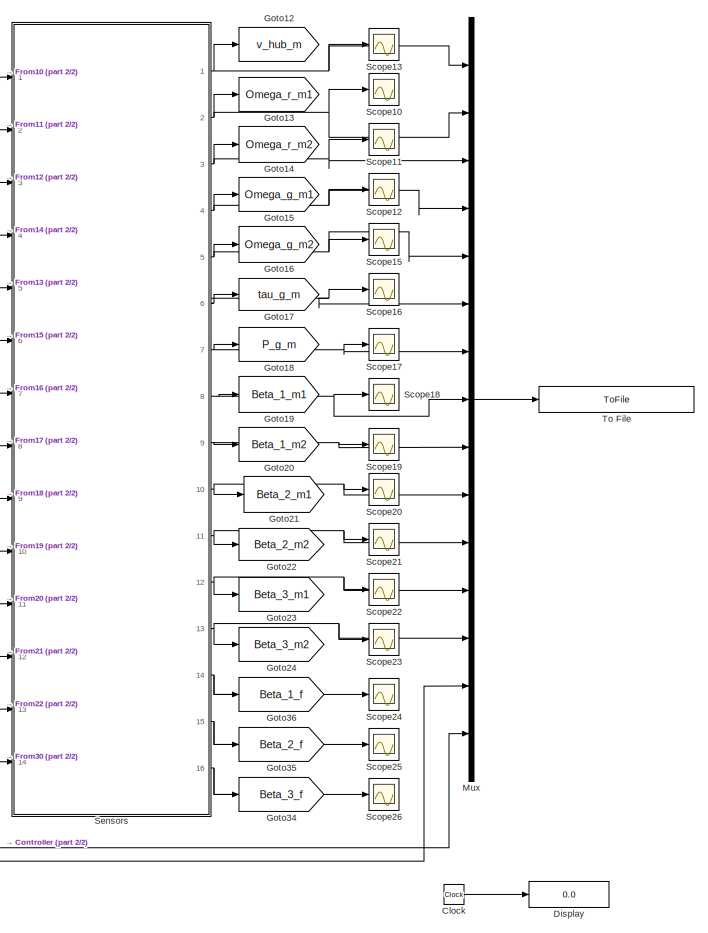
[diagram: root canvas - part 1/2, right side, full height]
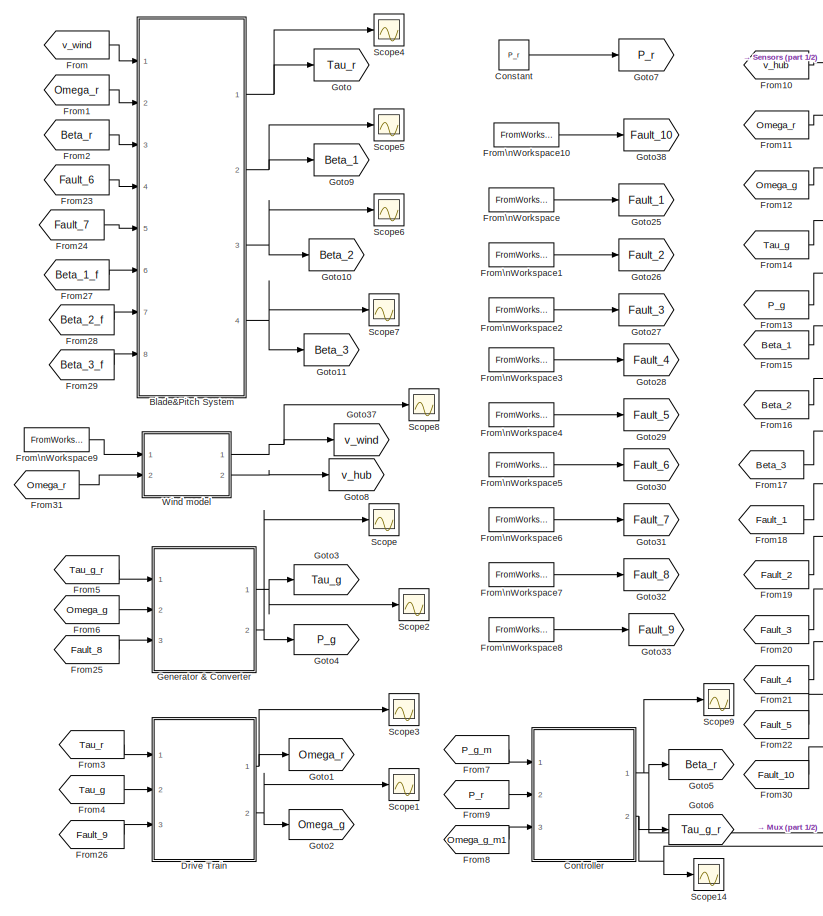
[diagram: root canvas - part 2/2, left side, full height]
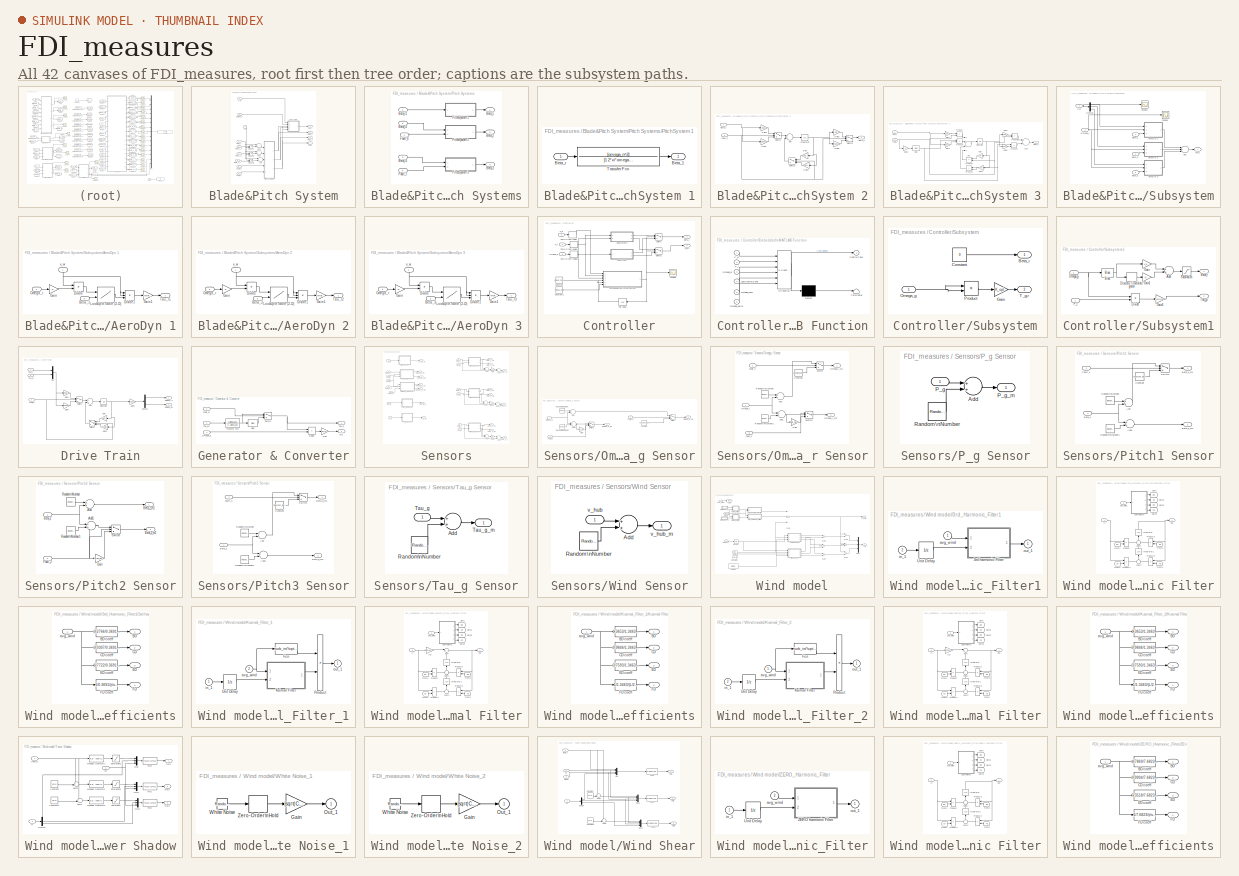
[diagram: thumbnail index - all 42 canvases of the model, root first then tree order]
MODEL FDI_measures
KIND model
BLOCK [SubSystem] Blade&Pitch System
  Ports = [8, 4]
  RequestExecContextInheritance = off
  SID = 1057
BLOCK [Sum] Blade&Pitch System/Add
  InputSameDT = off
  OutDataTypeStr = Inherit: Inherit via internal rule
  Ports = [2, 1]
  SID = 1066
  SaturateOnIntegerOverflow = off
BLOCK [Sum] Blade&Pitch System/Add1
  InputSameDT = off
  OutDataTypeStr = Inherit: Inherit via internal rule
  Ports = [2, 1]
  SID = 1067
  SaturateOnIntegerOverflow = off
BLOCK [Sum] Blade&Pitch System/Add2
  InputSameDT = off
  OutDataTypeStr = Inherit: Inherit via internal rule
  Ports = [2, 1]
  SID = 1068
  SaturateOnIntegerOverflow = off
BLOCK [Outport] Blade&Pitch System/Beta3
  IconDisplay = Port number
  Port = 4
  SID = 1162
BLOCK [Outport] Blade&Pitch System/Beta_1
  IconDisplay = Port number
  Port = 2
  SID = 1160
BLOCK [Inport] Blade&Pitch System/Beta_1_f
  IconDisplay = Port number
  Port = 6
  SID = 1063
BLOCK [Outport] Blade&Pitch System/Beta_2
  IconDisplay = Port number
  Port = 3
  SID = 1161
BLOCK [Inport] Blade&Pitch System/Beta_2_f
  IconDisplay = Port number
  Port = 7
  SID = 1064
BLOCK [Inport] Blade&Pitch System/Beta_3_f
  IconDisplay = Port number
  Port = 8
  SID = 1065
BLOCK [Inport] Blade&Pitch System/Beta_r
  IconDisplay = Port number
  Port = 3
  SID = 1060
BLOCK [Constant] Blade&Pitch System/C6
  SID = 1180
  Value = 0
BLOCK [Inport] Blade&Pitch System/Fault_6
  IconDisplay = Port number
  Port = 4
  SID = 1061
BLOCK [Inport] Blade&Pitch System/Fault_7
  IconDisplay = Port number
  Port = 5
  SID = 1062
BLOCK [Inport] Blade&Pitch System/Omega_r
  IconDisplay = Port number
  Port = 2
  SID = 1059
BLOCK [SubSystem] Blade&Pitch System/Pitch Systems
  Ports = [5, 3]
  RequestExecContextInheritance = off
  SID = 1069
BLOCK [Outport] Blade&Pitch System/Pitch Systems/Beta_1
  IconDisplay = Port number
  SID = 1115
BLOCK [Outport] Blade&Pitch System/Pitch Systems/Beta_2
  IconDisplay = Port number
  Port = 2
  SID = 1116
BLOCK [Outport] Blade&Pitch System/Pitch Systems/Beta_3
  IconDisplay = Port number
  Port = 3
  SID = 1117
BLOCK [Inport] Blade&Pitch System/Pitch Systems/Beta_r1
  IconDisplay = Port number
  SID = 1070
BLOCK [Inport] Blade&Pitch System/Pitch Systems/Beta_r2
  IconDisplay = Port number
  Port = 2
  SID = 1071
BLOCK [Inport] Blade&Pitch System/Pitch Systems/Beta_r3
  IconDisplay = Port number
  Port = 3
  SID = 1072
BLOCK [Inport] Blade&Pitch System/Pitch Systems/Fault_6
  IconDisplay = Port number
  Port = 4
  SID = 1073
BLOCK [Inport] Blade&Pitch System/Pitch Systems/Fault_7
  IconDisplay = Port number
  Port = 5
  SID = 1074
BLOCK [SubSystem] Blade&Pitch System/Pitch Systems/PitchSystem 1
  Ports = [1, 1]
  RequestExecContextInheritance = off
  SID = 1075
BLOCK [Outport] Blade&Pitch System/Pitch Systems/PitchSystem 1/Beta_1
  IconDisplay = Port number
  SID = 1078
BLOCK [Inport] Blade&Pitch System/Pitch Systems/PitchSystem 1/Beta_r
  IconDisplay = Port number
  SID = 1076
BLOCK [TransferFcn] Blade&Pitch System/Pitch Systems/PitchSystem 1/Transfer Fcn
  Denominator = [1 2*xi*omega_n omega_n^2]
  Numerator = [omega_n^2]
  SID = 1077
BLOCK [SubSystem] Blade&Pitch System/Pitch Systems/PitchSystem 2
  Ports = [2, 1]
  RequestExecContextInheritance = off
  SID = 1079
BLOCK [Sum] Blade&Pitch System/Pitch Systems/PitchSystem 2/Add
  InputSameDT = off
  OutDataTypeStr = Inherit: Inherit via internal rule
  Ports = [2, 1]
  SID = 1082
  SaturateOnIntegerOverflow = off
BLOCK [Outport] Blade&Pitch System/Pitch Systems/PitchSystem 2/Beta_2
  IconDisplay = Port number
  SID = 1093
BLOCK [Inport] Blade&Pitch System/Pitch Systems/PitchSystem 2/Beta_r
  IconDisplay = Port number
  SID = 1080
BLOCK [Inport] Blade&Pitch System/Pitch Systems/PitchSystem 2/Fault_6
  IconDisplay = Port number
  Port = 2
  SID = 1081
BLOCK [Gain] Blade&Pitch System/Pitch Systems/PitchSystem 2/Gain
  Gain = Apb
  Multiplication = Matrix(K*u)
  OutDataTypeStr = Inherit: Inherit via internal rule
  ParamDataTypeStr = Inherit: Inherit via internal rule
  SID = 1083
  SaturateOnIntegerOverflow = off
BLOCK [Gain] Blade&Pitch System/Pitch Systems/PitchSystem 2/Gain1
  Gain = Bpb
  Multiplication = Matrix(K*u)
  OutDataTypeStr = Inherit: Inherit via internal rule
  ParamDataTypeStr = Inherit: Inherit via internal rule
  SID = 1084
  SaturateOnIntegerOverflow = off
BLOCK [Gain] Blade&Pitch System/Pitch Systems/PitchSystem 2/Gain2
  Gain = Cpb
  Multiplication = Matrix(K*u)
  OutDataTypeStr = Inherit: Inherit via internal rule
  ParamDataTypeStr = Inherit: Inherit via internal rule
  SID = 1085
  SaturateOnIntegerOverflow = off
BLOCK [Gain] Blade&Pitch System/Pitch Systems/PitchSystem 2/Gain3
  Gain = Apb1
  Multiplication = Matrix(K*u)
  OutDataTypeStr = Inherit: Inherit via internal rule
  ParamDataTypeStr = Inherit: Inherit via internal rule
  SID = 1086
  SaturateOnIntegerOverflow = off
BLOCK [Gain] Blade&Pitch System/Pitch Systems/PitchSystem 2/Gain4
  Gain = Bpb1
  Multiplication = Matrix(K*u)
  OutDataTypeStr = Inherit: Inherit via internal rule
  ParamDataTypeStr = Inherit: Inherit via internal rule
  SID = 1087
  SaturateOnIntegerOverflow = off
BLOCK [Gain] Blade&Pitch System/Pitch Systems/PitchSystem 2/Gain5
  Gain = Cpb1
  Multiplication = Matrix(K*u)
  OutDataTypeStr = Inherit: Inherit via internal rule
  ParamDataTypeStr = Inherit: Inherit via internal rule
  SID = 1088
  SaturateOnIntegerOverflow = off
BLOCK [Integrator] Blade&Pitch System/Pitch Systems/PitchSystem 2/Integrator
  Ports = [1, 1]
  SID = 1089
BLOCK [Switch] Blade&Pitch System/Pitch Systems/PitchSystem 2/Switch1
  InputSameDT = off
  SID = 1090
  SaturateOnIntegerOverflow = off
  Threshold = 0.5
BLOCK [Switch] Blade&Pitch System/Pitch Systems/PitchSystem 2/Switch2
  InputSameDT = off
  SID = 1091
  SaturateOnIntegerOverflow = off
  Threshold = 0.5
BLOCK [Switch] Blade&Pitch System/Pitch Systems/PitchSystem 2/Switch3
  InputSameDT = off
  SID = 1092
  SaturateOnIntegerOverflow = off
  Threshold = 0.5
BLOCK [SubSystem] Blade&Pitch System/Pitch Systems/PitchSystem 3
  Ports = [2, 1]
  RequestExecContextInheritance = off
  SID = 1094
BLOCK [Sum] Blade&Pitch System/Pitch Systems/PitchSystem 3/Add
  InputSameDT = off
  Inputs = ++++
  OutDataTypeStr = Inherit: Inherit via internal rule
  Ports = [4, 1]
  SID = 1097
  SaturateOnIntegerOverflow = off
BLOCK [Sum] Blade&Pitch System/Pitch Systems/PitchSystem 3/Add1
  InputSameDT = off
  OutDataTypeStr = Inherit: Inherit via internal rule
  Ports = [2, 1]
  SID = 1098
  SaturateOnIntegerOverflow = off
BLOCK [Outport] Blade&Pitch System/Pitch Systems/PitchSystem 3/Beta_3
  IconDisplay = Port number
  SID = 1114
BLOCK [Inport] Blade&Pitch System/Pitch Systems/PitchSystem 3/Beta_r
  IconDisplay = Port number
  SID = 1095
BLOCK [Bias] Blade&Pitch System/Pitch Systems/PitchSystem 3/Bias
  Bias = 1
  SID = 1099
  SaturateOnIntegerOverflow = off
BLOCK [Inport] Blade&Pitch System/Pitch Systems/PitchSystem 3/Fault_7
  IconDisplay = Port number
  Port = 2
  SID = 1096
BLOCK [Gain] Blade&Pitch System/Pitch Systems/PitchSystem 3/Gain
  Gain = Apb
  Multiplication = Matrix(K*u)
  OutDataTypeStr = Inherit: Inherit via internal rule
  ParamDataTypeStr = Inherit: Inherit via internal rule
  SID = 1100
  SaturateOnIntegerOverflow = off
BLOCK [Gain] Blade&Pitch System/Pitch Systems/PitchSystem 3/Gain1
  Gain = Bpb
  Multiplication = Matrix(K*u)
  OutDataTypeStr = Inherit: Inherit via internal rule
  ParamDataTypeStr = Inherit: Inherit via internal rule
  SID = 1101
  SaturateOnIntegerOverflow = off
BLOCK [Gain] Blade&Pitch System/Pitch Systems/PitchSystem 3/Gain2
  Gain = Cpb
  Multiplication = Matrix(K*u)
  OutDataTypeStr = Inherit: Inherit via internal rule
  ParamDataTypeStr = Inherit: Inherit via internal rule
  SID = 1102
  SaturateOnIntegerOverflow = off
BLOCK [Gain] Blade&Pitch System/Pitch Systems/PitchSystem 3/Gain3
  Gain = Apb2
  Multiplication = Matrix(K*u)
  OutDataTypeStr = Inherit: Inherit via internal rule
  ParamDataTypeStr = Inherit: Inherit via internal rule
  SID = 1103
  SaturateOnIntegerOverflow = off
BLOCK [Gain] Blade&Pitch System/Pitch Systems/PitchSystem 3/Gain4
  Gain = Bpb2
  Multiplication = Matrix(K*u)
  OutDataTypeStr = Inherit: Inherit via internal rule
  ParamDataTypeStr = Inherit: Inherit via internal rule
  SID = 1104
  SaturateOnIntegerOverflow = off
BLOCK [Gain] Blade&Pitch System/Pitch Systems/PitchSystem 3/Gain5
  Gain = Cpb2
  Multiplication = Matrix(K*u)
  OutDataTypeStr = Inherit: Inherit via internal rule
  ParamDataTypeStr = Inherit: Inherit via internal rule
  SID = 1105
  SaturateOnIntegerOverflow = off
BLOCK [Gain] Blade&Pitch System/Pitch Systems/PitchSystem 3/Gain6
  Gain = -1
  OutDataTypeStr = Inherit: Inherit via internal rule
  ParamDataTypeStr = Inherit: Inherit via internal rule
  SID = 1106
  SaturateOnIntegerOverflow = off
BLOCK [Integrator] Blade&Pitch System/Pitch Systems/PitchSystem 3/Integrator
  Ports = [1, 1]
  SID = 1107
BLOCK [Product] Blade&Pitch System/Pitch Systems/PitchSystem 3/Product
  InputSameDT = off
  OutDataTypeStr = Inherit: Inherit via internal rule
  Ports = [2, 1]
  SID = 1108
  SaturateOnIntegerOverflow = off
BLOCK [Product] Blade&Pitch System/Pitch Systems/PitchSystem 3/Product1
  InputSameDT = off
  OutDataTypeStr = Inherit: Inherit via internal rule
  Ports = [2, 1]
  SID = 1109
  SaturateOnIntegerOverflow = off
BLOCK [Product] Blade&Pitch System/Pitch Systems/PitchSystem 3/Product2
  InputSameDT = off
  OutDataTypeStr = Inherit: Inherit via internal rule
  Ports = [2, 1]
  SID = 1110
  SaturateOnIntegerOverflow = off
BLOCK [Product] Blade&Pitch System/Pitch Systems/PitchSystem 3/Product3
  InputSameDT = off
  OutDataTypeStr = Inherit: Inherit via internal rule
  Ports = [2, 1]
  SID = 1111
  SaturateOnIntegerOverflow = off
BLOCK [Product] Blade&Pitch System/Pitch Systems/PitchSystem 3/Product4
  InputSameDT = off
  OutDataTypeStr = Inherit: Inherit via internal rule
  Ports = [2, 1]
  SID = 1112
  SaturateOnIntegerOverflow = off
BLOCK [Product] Blade&Pitch System/Pitch Systems/PitchSystem 3/Product5
  InputSameDT = off
  OutDataTypeStr = Inherit: Inherit via internal rule
  Ports = [2, 1]
  SID = 1113
  SaturateOnIntegerOverflow = off
BLOCK [Product] Blade&Pitch System/Product
  InputSameDT = off
  OutDataTypeStr = Inherit: Inherit via internal rule
  Ports = [2, 1]
  SID = 1179
  SaturateOnIntegerOverflow = off
BLOCK [Product] Blade&Pitch System/Product1
  InputSameDT = off
  OutDataTypeStr = Inherit: Inherit via internal rule
  Ports = [2, 1]
  SID = 1181
  SaturateOnIntegerOverflow = off
BLOCK [Product] Blade&Pitch System/Product2
  InputSameDT = off
  OutDataTypeStr = Inherit: Inherit via internal rule
  Ports = [2, 1]
  SID = 1182
  SaturateOnIntegerOverflow = off
BLOCK [SubSystem] Blade&Pitch System/Subsystem
  Ports = [5, 1]
  RequestExecContextInheritance = off
  SID = 1118
BLOCK [Sum] Blade&Pitch System/Subsystem/Add
  InputSameDT = off
  Inputs = +++
  OutDataTypeStr = Inherit: Inherit via internal rule
  Ports = [3, 1]
  SID = 1124
  SaturateOnIntegerOverflow = off
BLOCK [SubSystem] Blade&Pitch System/Subsystem/AeroDyn 1
  Ports = [3, 1]
  RequestExecContextInheritance = off
  SID = 1125
BLOCK [Inport] Blade&Pitch System/Subsystem/AeroDyn 1/Beta_1
  IconDisplay = Port number
  Port = 3
  SID = 1128
BLOCK [Product] Blade&Pitch System/Subsystem/AeroDyn 1/Divide
  InputSameDT = off
  Inputs = /*
  OutDataTypeStr = Inherit: Inherit via internal rule
  Ports = [2, 1]
  RndMeth = Floor
  SID = 1129
  SaturateOnIntegerOverflow = off
BLOCK [Product] Blade&Pitch System/Subsystem/AeroDyn 1/Divide1
  InputSameDT = off
  Inputs = ***
  OutDataTypeStr = Inherit: Inherit via internal rule
  Ports = [3, 1]
  RndMeth = Floor
  SID = 1130
  SaturateOnIntegerOverflow = off
BLOCK [Gain] Blade&Pitch System/Subsystem/AeroDyn 1/Gain
  Gain = R
  OutDataTypeStr = Inherit: Inherit via internal rule
  ParamDataTypeStr = Inherit: Inherit via internal rule
  SID = 1131
  SaturateOnIntegerOverflow = off
BLOCK [Gain] Blade&Pitch System/Subsystem/AeroDyn 1/Gain1
  Gain = rho*pi*R^3/6
  OutDataTypeStr = Inherit: Inherit via internal rule
  ParamDataTypeStr = Inherit: Inherit via internal rule
  SID = 1132
  SaturateOnIntegerOverflow = off
BLOCK [Lookup2D] Blade&Pitch System/Subsystem/AeroDyn 1/Lookup\nTable (2-D)
  ColumnIndex = Angle
  InputSameDT = off
  RowIndex = Lambda
  SID = 1133
  SaturateOnIntegerOverflow = off
  Table = Cq
BLOCK [Inport] Blade&Pitch System/Subsystem/AeroDyn 1/Omega_r
  IconDisplay = Port number
  Port = 2
  SID = 1127
BLOCK [Outport] Blade&Pitch System/Subsystem/AeroDyn 1/Tau_r1
  IconDisplay = Port number
  SID = 1134
BLOCK [Inport] Blade&Pitch System/Subsystem/AeroDyn 1/v_w
  IconDisplay = Port number
  SID = 1126
BLOCK [SubSystem] Blade&Pitch System/Subsystem/AeroDyn 2
  Ports = [3, 1]
  RequestExecContextInheritance = off
  SID = 1135
BLOCK [Inport] Blade&Pitch System/Subsystem/AeroDyn 2/Beta_2
  IconDisplay = Port number
  Port = 3
  SID = 1138
BLOCK [Product] Blade&Pitch System/Subsystem/AeroDyn 2/Divide
  InputSameDT = off
  Inputs = /*
  OutDataTypeStr = Inherit: Inherit via internal rule
  Ports = [2, 1]
  RndMeth = Floor
  SID = 1139
  SaturateOnIntegerOverflow = off
BLOCK [Product] Blade&Pitch System/Subsystem/AeroDyn 2/Divide1
  InputSameDT = off
  Inputs = ***
  OutDataTypeStr = Inherit: Inherit via internal rule
  Ports = [3, 1]
  RndMeth = Floor
  SID = 1140
  SaturateOnIntegerOverflow = off
BLOCK [Gain] Blade&Pitch System/Subsystem/AeroDyn 2/Gain
  Gain = R
  OutDataTypeStr = Inherit: Inherit via internal rule
  ParamDataTypeStr = Inherit: Inherit via internal rule
  SID = 1141
  SaturateOnIntegerOverflow = off
BLOCK [Gain] Blade&Pitch System/Subsystem/AeroDyn 2/Gain1
  Gain = rho*pi*R^3/6
  OutDataTypeStr = Inherit: Inherit via internal rule
  ParamDataTypeStr = Inherit: Inherit via internal rule
  SID = 1142
  SaturateOnIntegerOverflow = off
BLOCK [Lookup2D] Blade&Pitch System/Subsystem/AeroDyn 2/Lookup\nTable (2-D)
  ColumnIndex = Angle
  InputSameDT = off
  RowIndex = Lambda
  SID = 1143
  SaturateOnIntegerOverflow = off
  Table = Cq
BLOCK [Inport] Blade&Pitch System/Subsystem/AeroDyn 2/Omega_r
  IconDisplay = Port number
  Port = 2
  SID = 1137
BLOCK [Outport] Blade&Pitch System/Subsystem/AeroDyn 2/Tau_r2
  IconDisplay = Port number
  SID = 1144
BLOCK [Inport] Blade&Pitch System/Subsystem/AeroDyn 2/v_w
  IconDisplay = Port number
  SID = 1136
BLOCK [SubSystem] Blade&Pitch System/Subsystem/AeroDyn 3
  Ports = [3, 1]
  RequestExecContextInheritance = off
  SID = 1145
BLOCK [Inport] Blade&Pitch System/Subsystem/AeroDyn 3/Beta_3
  IconDisplay = Port number
  Port = 3
  SID = 1148
BLOCK [Product] Blade&Pitch System/Subsystem/AeroDyn 3/Divide
  InputSameDT = off
  Inputs = /*
  OutDataTypeStr = Inherit: Inherit via internal rule
  Ports = [2, 1]
  RndMeth = Floor
  SID = 1149
  SaturateOnIntegerOverflow = off
BLOCK [Product] Blade&Pitch System/Subsystem/AeroDyn 3/Divide1
  InputSameDT = off
  Inputs = ***
  OutDataTypeStr = Inherit: Inherit via internal rule
  Ports = [3, 1]
  RndMeth = Floor
  SID = 1150
  SaturateOnIntegerOverflow = off
BLOCK [Gain] Blade&Pitch System/Subsystem/AeroDyn 3/Gain
  Gain = R
  OutDataTypeStr = Inherit: Inherit via internal rule
  ParamDataTypeStr = Inherit: Inherit via internal rule
  SID = 1151
  SaturateOnIntegerOverflow = off
BLOCK [Gain] Blade&Pitch System/Subsystem/AeroDyn 3/Gain1
  Gain = rho*pi*R^3/6
  OutDataTypeStr = Inherit: Inherit via internal rule
  ParamDataTypeStr = Inherit: Inherit via internal rule
  SID = 1152
  SaturateOnIntegerOverflow = off
BLOCK [Lookup2D] Blade&Pitch System/Subsystem/AeroDyn 3/Lookup\nTable (2-D)
  ColumnIndex = Angle
  InputSameDT = off
  RowIndex = Lambda
  SID = 1153
  SaturateOnIntegerOverflow = off
  Table = Cq
BLOCK [Inport] Blade&Pitch System/Subsystem/AeroDyn 3/Omega_r
  IconDisplay = Port number
  Port = 2
  SID = 1147
BLOCK [Outport] Blade&Pitch System/Subsystem/AeroDyn 3/Tau_r3
  IconDisplay = Port number
  SID = 1154
BLOCK [Inport] Blade&Pitch System/Subsystem/AeroDyn 3/v_w
  IconDisplay = Port number
  SID = 1146
BLOCK [Inport] Blade&Pitch System/Subsystem/Beta_1
  IconDisplay = Port number
  Port = 3
  SID = 1121
BLOCK [Inport] Blade&Pitch System/Subsystem/Beta_2
  IconDisplay = Port number
  Port = 4
  SID = 1122
BLOCK [Inport] Blade&Pitch System/Subsystem/Beta_3
  IconDisplay = Port number
  Port = 5
  SID = 1123
BLOCK [Demux] Blade&Pitch System/Subsystem/Demux
  DisplayOption = bar
  Outputs = 3
  Ports = [1, 3]
  SID = 1155
BLOCK [Inport] Blade&Pitch System/Subsystem/Omega_r
  IconDisplay = Port number
  Port = 2
  SID = 1120
BLOCK [Scope] Blade&Pitch System/Subsystem/Scope1
  Floating = off
  NumInputPorts = 1
  Ports = [1]
  SID = 1156
  ScopeSpecificationString = C++SS(StrPVP('Location','[188, 390, 512, 629]'),StrPVP('Open','off'),MxPVP('AxesTitles',54,'struct(''axes1'',''%<SignalLabel>'')'),StrPVP('YMin','0.5225'),StrPVP('YMax','0.545'),StrPVP('SaveName','ScopeData12'),StrPVP('DataFormat','StructureWithTime'),StrPVP('LimitDataPoints','off'),StrPVP('BlockParamSampleTime','0'),StrPVP('Decimation','1'),StrPVP('BlockParamSampleInput','off'))
BLOCK [Scope] Blade&Pitch System/Subsystem/Scope3
  Floating = off
  NumInputPorts = 1
  Ports = [1]
  SID = 1157
  ScopeSpecificationString = C++SS(StrPVP('Location','[171, 597, 495, 836]'),StrPVP('Open','off'),MxPVP('AxesTitles',54,'struct(''axes1'',''%<SignalLabel>'')'),StrPVP('YMin','5'),StrPVP('YMax','7.75'),StrPVP('SaveName','ScopeData11'),StrPVP('DataFormat','StructureWithTime'),StrPVP('LimitDataPoints','off'),StrPVP('BlockParamSampleTime','0'),StrPVP('Decimation','1'),StrPVP('BlockParamSampleInput','off'))
BLOCK [Outport] Blade&Pitch System/Subsystem/Tau_r
  IconDisplay = Port number
  SID = 1158
BLOCK [Inport] Blade&Pitch System/Subsystem/v_w
  IconDisplay = Port number
  SID = 1119
BLOCK [Outport] Blade&Pitch System/Tau_r
  IconDisplay = Port number
  SID = 1159
BLOCK [Inport] Blade&Pitch System/v_w
  IconDisplay = Port number
  SID = 1058
BLOCK [Clock] Clock
  SID = 1183
BLOCK [Constant] Constant
  SID = 107
  Value = P_r
BLOCK [SubSystem] Controller
  Ports = [3, 2]
  RequestExecContextInheritance = off
  SID = 108
BLOCK [Outport] Controller/Beta_r
  IconDisplay = Port number
  SID = 142
BLOCK [Constant] Controller/Constant
  SID = 112
  Value = Omega_nom
BLOCK [Constant] Controller/Constant1
  SID = 113
  Value = Omega_delta
BLOCK [SubSystem] Controller/Embedded\nMATLAB Function
  ErrorFcn = Stateflow.Translate.translate
  PermitHierarchicalResolution = ExplicitOnly
  Ports = [6, 1]
  RequestExecContextInheritance = off
  SFBlockType = MATLAB Function
  SID = 114
  TreatAsAtomicUnit = on
BLOCK [Demux] Controller/Embedded\nMATLAB Function/ Demux 
  Outputs = 1
  Ports = [1, 1]
  SID = 114::20
BLOCK [S-Function] Controller/Embedded\nMATLAB Function/ SFunction 
  EnableBusSupport = off
  FunctionName = sf_sfun
  PortCounts = [6 2]
  Ports = [6, 2]
  SFcnIsStateOwnerBlock = off
  SFunctionDeploymentMode = off
  SID = 114::19
  Tag = Stateflow S-Function 2
BLOCK [Terminator] Controller/Embedded\nMATLAB Function/ Terminator 
  SID = 114::21
BLOCK [Outport] Controller/Embedded\nMATLAB Function/ControlZone
  IconDisplay = Port number
  SID = 114::10
BLOCK [Inport] Controller/Embedded\nMATLAB Function/LastControlZone
  IconDisplay = Port number
  Port = 4
  SID = 114::4
BLOCK [Inport] Controller/Embedded\nMATLAB Function/Omega_delta
  IconDisplay = Port number
  Port = 6
  SID = 114::6
BLOCK [Inport] Controller/Embedded\nMATLAB Function/Omega_g
  IconDisplay = Port number
  Port = 3
  SID = 114::3
BLOCK [Inport] Controller/Embedded\nMATLAB Function/Omega_nom
  IconDisplay = Port number
  Port = 5
  SID = 114::5
BLOCK [Inport] Controller/Embedded\nMATLAB Function/P_g
  IconDisplay = Port number
  SID = 114::1
BLOCK [Inport] Controller/Embedded\nMATLAB Function/P_r
  IconDisplay = Port number
  Port = 2
  SID = 114::2
BLOCK [Inport] Controller/Omega_g
  IconDisplay = Port number
  Port = 3
  SID = 111
BLOCK [Inport] Controller/P_g
  IconDisplay = Port number
  SID = 109
BLOCK [Inport] Controller/P_r
  IconDisplay = Port number
  Port = 2
  SID = 110
BLOCK [Scope] Controller/Scope3
  Floating = off
  NumInputPorts = 1
  Ports = [1]
  SID = 115
  ScopeSpecificationString = C++SS(StrPVP('Location','[6, 252, 1286, 975]'),StrPVP('Open','off'),MxPVP('AxesTitles',54,'struct(''axes1'',''%<SignalLabel>'')'),StrPVP('YMin','0.62'),StrPVP('YMax','0.69'),StrPVP('SaveToWorkspace','on'),StrPVP('SaveName','Omega_r'),StrPVP('DataFormat','Array'),StrPVP('LimitDataPoints','off'),StrPVP('BlockParamSampleInput','on'),StrPVP('BlockParamSampleTime','Ts'),StrPVP('Decimation','1'))
BLOCK [SubSystem] Controller/Subsystem
  Ports = [1, 2]
  RequestExecContextInheritance = off
  SID = 116
BLOCK [Outport] Controller/Subsystem/Beta_r
  IconDisplay = Port number
  SID = 121
BLOCK [Constant] Controller/Subsystem/Constant
  SID = 118
  Value = 0
BLOCK [Gain] Controller/Subsystem/Gain
  Gain = K_opt
  OutDataTypeStr = Inherit: Inherit via internal rule
  ParamDataTypeStr = Inherit: Inherit via internal rule
  SID = 119
  SaturateOnIntegerOverflow = off
BLOCK [Inport] Controller/Subsystem/Omega_g
  IconDisplay = Port number
  SID = 117
BLOCK [Product] Controller/Subsystem/Product
  InputSameDT = off
  OutDataTypeStr = Inherit: Inherit via internal rule
  Ports = [2, 1]
  SID = 120
  SaturateOnIntegerOverflow = off
BLOCK [Outport] Controller/Subsystem/T_g,r
  IconDisplay = Port number
  Port = 2
  SID = 122
BLOCK [SubSystem] Controller/Subsystem1
  Ports = [2, 2]
  RequestExecContextInheritance = off
  SID = 123
BLOCK [Sum] Controller/Subsystem1/Add
  InputSameDT = off
  OutDataTypeStr = Inherit: Inherit via internal rule
  Ports = [2, 1]
  SID = 126
  SaturateOnIntegerOverflow = off
BLOCK [Outport] Controller/Subsystem1/Beta_r
  IconDisplay = Port number
  SID = 134
BLOCK [Bias] Controller/Subsystem1/Bias
  Bias = -Omega_nom
  SID = 127
  SaturateOnIntegerOverflow = off
BLOCK [DiscreteIntegrator] Controller/Subsystem1/Discrete-Time\nIntegrator
  ICPrevOutput = DiscIntNeverNeededParam
  ICPrevScaledInput = DiscIntNeverNeededParam
  LimitOutput = on
  LowerSaturationLimit = -2
  Ports = [1, 1]
  SID = 128
  SampleTime = Ts
  UpperSaturationLimit = 90
BLOCK [Product] Controller/Subsystem1/Divide
  InputSameDT = off
  Inputs = /*
  OutDataTypeStr = Inherit: Inherit via internal rule
  Ports = [2, 1]
  RndMeth = Floor
  SID = 129
  SaturateOnIntegerOverflow = off
BLOCK [Gain] Controller/Subsystem1/Gain
  Gain = K_p
  OutDataTypeStr = Inherit: Inherit via internal rule
  ParamDataTypeStr = Inherit: Inherit via internal rule
  SID = 130
  SaturateOnIntegerOverflow = off
BLOCK [Gain] Controller/Subsystem1/Gain1
  Gain = K_i
  OutDataTypeStr = Inherit: Inherit via internal rule
  ParamDataTypeStr = Inherit: Inherit via internal rule
  SID = 131
  SaturateOnIntegerOverflow = off
BLOCK [Gain] Controller/Subsystem1/Gain2
  Gain = 1/eta_gc
  OutDataTypeStr = Inherit: Inherit via internal rule
  ParamDataTypeStr = Inherit: Inherit via internal rule
  SID = 132
  SaturateOnIntegerOverflow = off
BLOCK [Inport] Controller/Subsystem1/Omega_g
  IconDisplay = Port number
  Port = 2
  SID = 125
BLOCK [Inport] Controller/Subsystem1/P_r
  IconDisplay = Port number
  SID = 124
BLOCK [Saturate] Controller/Subsystem1/Saturation
  InputPortMap = u0
  LowerLimit = -2
  Ports = [1, 1]
  SID = 133
  UpperLimit = 90
BLOCK [Outport] Controller/Subsystem1/Tau_g,r
  IconDisplay = Port number
  Port = 2
  SID = 135
BLOCK [Switch] Controller/Switch
  InputSameDT = off
  SID = 136
  SaturateOnIntegerOverflow = off
  Threshold = .5
BLOCK [Switch] Controller/Switch1
  InputSameDT = off
  SID = 137
  SaturateOnIntegerOverflow = off
  Threshold = .5
BLOCK [Outport] Controller/T_g,r
  IconDisplay = Port number
  Port = 2
  SID = 143
BLOCK [UnitDelay] Controller/Unit Delay
  HasFrameUpgradeWarning = on
  SID = 138
  SampleTime = Ts
BLOCK [ZeroOrderHold] Controller/Zero-Order\nHold
  SID = 139
  SampleTime = Ts
BLOCK [ZeroOrderHold] Controller/Zero-Order\nHold1
  SID = 140
  SampleTime = Ts
BLOCK [ZeroOrderHold] Controller/Zero-Order\nHold2
  SID = 141
  SampleTime = Ts
BLOCK [Display] Display
  Decimation = 1
  Ports = [1]
  SID = 1184
BLOCK [SubSystem] Drive Train
  Ports = [3, 2]
  RequestExecContextInheritance = off
  SID = 144
BLOCK [Sum] Drive Train/Add
  InputSameDT = off
  OutDataTypeStr = Inherit: Inherit via internal rule
  Ports = [2, 1]
  SID = 148
  SaturateOnIntegerOverflow = off
BLOCK [Demux] Drive Train/Demux1
  DisplayOption = bar
  Outputs = 2
  Ports = [1, 2]
  SID = 149
BLOCK [Inport] Drive Train/Fault_9
  IconDisplay = Port number
  Port = 3
  SID = 147
BLOCK [Gain] Drive Train/Gain
  Gain = Addt
  Multiplication = Matrix(K*u)
  OutDataTypeStr = Inherit: Inherit via internal rule
  ParamDataTypeStr = Inherit: Inherit via internal rule
  SID = 150
  SaturateOnIntegerOverflow = off
BLOCK [Gain] Drive Train/Gain1
  Gain = Bddt
  Multiplication = Matrix(K*u)
  OutDataTypeStr = Inherit: Inherit via internal rule
  ParamDataTypeStr = Inherit: Inherit via internal rule
  SID = 151
  SaturateOnIntegerOverflow = off
BLOCK [Gain] Drive Train/Gain2
  Gain = Cddt
  Multiplication = Matrix(K*u)
  OutDataTypeStr = Inherit: Inherit via internal rule
  ParamDataTypeStr = Inherit: Inherit via internal rule
  SID = 152
  SaturateOnIntegerOverflow = off
BLOCK [Gain] Drive Train/Gain3
  Gain = Addt2
  Multiplication = Matrix(K*u)
  OutDataTypeStr = Inherit: Inherit via internal rule
  ParamDataTypeStr = Inherit: Inherit via internal rule
  SID = 153
  SaturateOnIntegerOverflow = off
BLOCK [Gain] Drive Train/Gain4
  Gain = Bddt2
  Multiplication = Matrix(K*u)
  OutDataTypeStr = Inherit: Inherit via internal rule
  ParamDataTypeStr = Inherit: Inherit via internal rule
  SID = 154
  SaturateOnIntegerOverflow = off
BLOCK [Integrator] Drive Train/Integrator
  InitialCondition = [1 100 0]
  Ports = [1, 1]
  SID = 155
BLOCK [Mux] Drive Train/Mux
  DisplayOption = bar
  Inputs = 2
  Ports = [2, 1]
  SID = 156
BLOCK [Outport] Drive Train/Omega_g1
  IconDisplay = Port number
  Port = 2
  SID = 160
BLOCK [Outport] Drive Train/Omega_r1
  IconDisplay = Port number
  SID = 159
BLOCK [Switch] Drive Train/Switch1
  InputSameDT = off
  SID = 157
  SaturateOnIntegerOverflow = off
  Threshold = 0.5
BLOCK [Switch] Drive Train/Switch2
  InputSameDT = off
  SID = 158
  SaturateOnIntegerOverflow = off
  Threshold = 0.5
BLOCK [Inport] Drive Train/Tau_g
  IconDisplay = Port number
  Port = 2
  SID = 146
BLOCK [Inport] Drive Train/Tau_r
  IconDisplay = Port number
  SID = 145
BLOCK [From] From
  CloseFcn = tagdialog Close
  GotoTag = v_wind
  SID = 1163
BLOCK [From] From1
  CloseFcn = tagdialog Close
  GotoTag = Omega_r
  SID = 1164
BLOCK [From] From10
  CloseFcn = tagdialog Close
  GotoTag = v_hub
  SID = 173
BLOCK [From] From11
  CloseFcn = tagdialog Close
  GotoTag = Omega_r
  SID = 174
BLOCK [From] From12
  CloseFcn = tagdialog Close
  GotoTag = Omega_g
  SID = 175
BLOCK [From] From13
  CloseFcn = tagdialog Close
  GotoTag = P_g
  SID = 176
BLOCK [From] From14
  CloseFcn = tagdialog Close
  GotoTag = Tau_g
  SID = 177
BLOCK [From] From15
  CloseFcn = tagdialog Close
  GotoTag = Beta_1
  SID = 178
BLOCK [From] From16
  CloseFcn = tagdialog Close
  GotoTag = Beta_2
  SID = 179
BLOCK [From] From17
  CloseFcn = tagdialog Close
  GotoTag = Beta_3
  SID = 180
BLOCK [From] From18
  CloseFcn = tagdialog Close
  GotoTag = Fault_1
  SID = 181
BLOCK [From] From19
  CloseFcn = tagdialog Close
  GotoTag = Fault_2
  SID = 182
BLOCK [From] From2
  CloseFcn = tagdialog Close
  GotoTag = Beta_r
  SID = 1165
BLOCK [From] From20
  CloseFcn = tagdialog Close
  GotoTag = Fault_3
  SID = 184
BLOCK [From] From21
  CloseFcn = tagdialog Close
  GotoTag = Fault_4
  SID = 185
BLOCK [From] From22
  CloseFcn = tagdialog Close
  GotoTag = Fault_5
  SID = 186
BLOCK [From] From23
  CloseFcn = tagdialog Close
  GotoTag = Fault_6
  SID = 1166
BLOCK [From] From24
  CloseFcn = tagdialog Close
  GotoTag = Fault_7
  SID = 1167
BLOCK [From] From25
  CloseFcn = tagdialog Close
  GotoTag = Fault_8
  SID = 189
BLOCK [From] From26
  CloseFcn = tagdialog Close
  GotoTag = Fault_9
  SID = 190
BLOCK [From] From27
  CloseFcn = tagdialog Close
  GotoTag = Beta_1_f
  SID = 1168
BLOCK [From] From28
  CloseFcn = tagdialog Close
  GotoTag = Beta_2_f
  SID = 1169
BLOCK [From] From29
  CloseFcn = tagdialog Close
  GotoTag = Beta_3_f
  SID = 1170
BLOCK [From] From3
  CloseFcn = tagdialog Close
  GotoTag = Tau_r
  SID = 194
BLOCK [From] From30
  CloseFcn = tagdialog Close
  GotoTag = Fault_10
  SID = 817
BLOCK [From] From31
  CloseFcn = tagdialog Close
  GotoTag = Omega_r
  SID = 195
BLOCK [From] From4
  CloseFcn = tagdialog Close
  GotoTag = Tau_g
  SID = 196
BLOCK [From] From5
  CloseFcn = tagdialog Close
  GotoTag = Tau_g_r
  SID = 197
BLOCK [From] From6
  CloseFcn = tagdialog Close
  GotoTag = Omega_g
  SID = 198
BLOCK [From] From7
  CloseFcn = tagdialog Close
  GotoTag = P_g_m
  SID = 199
BLOCK [From] From8
  CloseFcn = tagdialog Close
  GotoTag = Omega_g_m1
  SID = 200
BLOCK [From] From9
  CloseFcn = tagdialog Close
  GotoTag = P_r
  SID = 201
BLOCK [FromWorkspace] From\nWorkspace
  SID = 162
  SampleTime = Ts
  VariableName = D_Fault1
  ZeroCross = on
BLOCK [FromWorkspace] From\nWorkspace1
  SID = 163
  SampleTime = Ts
  VariableName = D_Fault2
  ZeroCross = on
BLOCK [FromWorkspace] From\nWorkspace10
  SID = 818
  SampleTime = Ts
  VariableName = D_Fault10
  ZeroCross = on
BLOCK [FromWorkspace] From\nWorkspace2
  SID = 164
  SampleTime = Ts
  VariableName = D_Fault3
  ZeroCross = on
BLOCK [FromWorkspace] From\nWorkspace3
  SID = 165
  SampleTime = Ts
  VariableName = D_Fault4
  ZeroCross = on
BLOCK [FromWorkspace] From\nWorkspace4
  SID = 166
  SampleTime = Ts
  VariableName = D_Fault5
  ZeroCross = on
BLOCK [FromWorkspace] From\nWorkspace5
  SID = 167
  SampleTime = Ts
  VariableName = D_Fault6
  ZeroCross = on
BLOCK [FromWorkspace] From\nWorkspace6
  SID = 168
  SampleTime = Ts
  VariableName = D_Fault7
  ZeroCross = on
BLOCK [FromWorkspace] From\nWorkspace7
  SID = 169
  SampleTime = Ts
  VariableName = D_Fault8
  ZeroCross = on
BLOCK [FromWorkspace] From\nWorkspace8
  SID = 170
  SampleTime = Ts
  VariableName = D_Fault9
  ZeroCross = on
BLOCK [FromWorkspace] From\nWorkspace9
  SID = 171
  VariableName = D_v_wind
  ZeroCross = on
BLOCK [SubSystem] Generator & Converter
  Ports = [3, 2]
  RequestExecContextInheritance = off
  SID = 202
BLOCK [Bias] Generator & Converter/Bias
  Bias = Constant_tau_gc
  SID = 206
  SaturateOnIntegerOverflow = off
BLOCK [Product] Generator & Converter/Divide
  InputSameDT = off
  Inputs = **
  OutDataTypeStr = Inherit: Inherit via internal rule
  Ports = [2, 1]
  RndMeth = Floor
  SID = 207
  SaturateOnIntegerOverflow = off
BLOCK [Inport] Generator & Converter/Fault_8
  IconDisplay = Port number
  Port = 3
  SID = 205
BLOCK [Gain] Generator & Converter/Gain
  Gain = eta_gc
  OutDataTypeStr = Inherit: Inherit via internal rule
  ParamDataTypeStr = Inherit: Inherit via internal rule
  SID = 208
  SaturateOnIntegerOverflow = off
BLOCK [Inport] Generator & Converter/Omega_g
  IconDisplay = Port number
  Port = 2
  SID = 204
BLOCK [Outport] Generator & Converter/P_g
  IconDisplay = Port number
  Port = 2
  SID = 212
BLOCK [Switch] Generator & Converter/Switch
  InputSameDT = off
  SID = 209
  SaturateOnIntegerOverflow = off
  Threshold = 0.5
BLOCK [Outport] Generator & Converter/Tau_g
  IconDisplay = Port number
  SID = 211
BLOCK [Inport] Generator & Converter/Tau_g,r
  IconDisplay = Port number
  SID = 203
BLOCK [TransferFcn] Generator & Converter/Transfer Fcn
  Denominator = [1 alpha_gc]
  Numerator = [alpha_gc]
  SID = 210
BLOCK [Goto] Goto
  GotoTag = Tau_r
  SID = 1171
BLOCK [Goto] Goto1
  GotoTag = Omega_r
  SID = 214
BLOCK [Goto] Goto10
  GotoTag = Beta_2
  SID = 1172
BLOCK [Goto] Goto11
  GotoTag = Beta_3
  SID = 1173
BLOCK [Goto] Goto12
  GotoTag = v_hub_m
  SID = 217
BLOCK [Goto] Goto13
  GotoTag = Omega_r_m1
  SID = 218
BLOCK [Goto] Goto14
  GotoTag = Omega_r_m2
  SID = 219
BLOCK [Goto] Goto15
  GotoTag = Omega_g_m1
  SID = 220
BLOCK [Goto] Goto16
  GotoTag = Omega_g_m2
  SID = 221
BLOCK [Goto] Goto17
  GotoTag = tau_g_m
  SID = 222
BLOCK [Goto] Goto18
  GotoTag = P_g_m
  SID = 223
BLOCK [Goto] Goto19
  GotoTag = Beta_1_m1
  SID = 224
BLOCK [Goto] Goto2
  GotoTag = Omega_g
  SID = 225
BLOCK [Goto] Goto20
  GotoTag = Beta_1_m2
  SID = 226
BLOCK [Goto] Goto21
  GotoTag = Beta_2_m1
  SID = 227
BLOCK [Goto] Goto22
  GotoTag = Beta_2_m2
  SID = 228
BLOCK [Goto] Goto23
  GotoTag = Beta_3_m1
  SID = 229
BLOCK [Goto] Goto24
  GotoTag = Beta_3_m2
  SID = 230
BLOCK [Goto] Goto25
  GotoTag = Fault_1
  SID = 231
BLOCK [Goto] Goto26
  GotoTag = Fault_2
  SID = 232
BLOCK [Goto] Goto27
  GotoTag = Fault_3
  SID = 233
BLOCK [Goto] Goto28
  GotoTag = Fault_4
  SID = 234
BLOCK [Goto] Goto29
  GotoTag = Fault_5
  SID = 235
BLOCK [Goto] Goto3
  GotoTag = Tau_g
  SID = 236
BLOCK [Goto] Goto30
  GotoTag = Fault_6
  SID = 237
BLOCK [Goto] Goto31
  GotoTag = Fault_7
  SID = 238
BLOCK [Goto] Goto32
  GotoTag = Fault_8
  SID = 239
BLOCK [Goto] Goto33
  GotoTag = Fault_9
  SID = 240
BLOCK [Goto] Goto34
  GotoTag = Beta_3_f
  SID = 241
BLOCK [Goto] Goto35
  GotoTag = Beta_2_f
  SID = 242
BLOCK [Goto] Goto36
  GotoTag = Beta_1_f
  SID = 243
BLOCK [Goto] Goto37
  GotoTag = v_wind
  SID = 244
BLOCK [Goto] Goto38
  GotoTag = Fault_10
  SID = 819
BLOCK [Goto] Goto4
  GotoTag = P_g
  SID = 245
BLOCK [Goto] Goto5
  GotoTag = Beta_r
  SID = 246
BLOCK [Goto] Goto6
  GotoTag = Tau_g_r
  SID = 247
BLOCK [Goto] Goto7
  GotoTag = P_r
  SID = 248
BLOCK [Goto] Goto8
  GotoTag = v_hub
  SID = 249
BLOCK [Goto] Goto9
  GotoTag = Beta_1
  SID = 1174
BLOCK [Mux] Mux
  DisplayOption = bar
  Inputs = 15
  Ports = [15, 1]
  SID = 787
BLOCK [Scope] Scope
  Floating = off
  NumInputPorts = 1
  Ports = [1]
  SID = 251
  ScopeSpecificationString = C++SS(StrPVP('Location','[6, 252, 1286, 975]'),StrPVP('Open','off'),MxPVP('AxesTitles',54,'struct(''axes1'',''%<SignalLabel>'')'),StrPVP('YMin','1e+006'),StrPVP('YMax','5.25e+006'),StrPVP('SaveToWorkspace','on'),StrPVP('SaveName','P_g'),StrPVP('DataFormat','Array'),StrPVP('LimitDataPoints','off'),StrPVP('BlockParamSampleInput','on'),StrPVP('BlockParamSampleTime','Ts'),StrPVP('Decimation','1'))
BLOCK [Scope] Scope1
  Floating = off
  NumInputPorts = 1
  Ports = [1]
  SID = 252
  ScopeSpecificationString = C++SS(StrPVP('Location','[6, 252, 1286, 975]'),StrPVP('Open','off'),MxPVP('AxesTitles',54,'struct(''axes1'',''%<SignalLabel>'')'),StrPVP('YMin','64'),StrPVP('YMax','66.25'),StrPVP('SaveToWorkspace','on'),StrPVP('SaveName','Oemga_g1'),StrPVP('DataFormat','Array'),StrPVP('LimitDataPoints','off'),StrPVP('BlockParamSampleInput','on'),StrPVP('BlockParamSampleTime','Ts'),StrPVP('Decimation','1'))
BLOCK [Scope] Scope10
  Floating = off
  NumInputPorts = 1
  Ports = [1]
  SID = 253
  ScopeSpecificationString = C++SS(StrPVP('Location','[199, 475, 523, 714]'),StrPVP('Open','off'),MxPVP('AxesTitles',54,'struct(''axes1'',''%<SignalLabel>'')'),StrPVP('YMin','1.1'),StrPVP('YMax','2.4'),StrPVP('SaveToWorkspace','on'),StrPVP('SaveName','Omega_r_m1'),StrPVP('DataFormat','Array'),StrPVP('LimitDataPoints','off'),StrPVP('BlockParamSampleInput','on'),StrPVP('BlockParamSampleTime','Ts'),StrPVP('Decimation','1'))
BLOCK [Scope] Scope11
  Floating = off
  NumInputPorts = 1
  Ports = [1]
  SID = 254
  ScopeSpecificationString = C++SS(StrPVP('Location','[199, 475, 523, 714]'),StrPVP('Open','off'),MxPVP('AxesTitles',54,'struct(''axes1'',''%<SignalLabel>'')'),StrPVP('YMin','-1'),StrPVP('YMax','1'),StrPVP('SaveToWorkspace','on'),StrPVP('SaveName','Omega_r_m2'),StrPVP('DataFormat','Array'),StrPVP('LimitDataPoints','off'),StrPVP('BlockParamSampleInput','on'),StrPVP('BlockParamSampleTime','Ts'),StrPVP('Decimation','1'))
BLOCK [Scope] Scope12
  Floating = off
  NumInputPorts = 1
  Ports = [1]
  SID = 255
  ScopeSpecificationString = C++SS(StrPVP('Location','[766, 180, 1090, 419]'),StrPVP('Open','off'),StrPVP('ZoomMode','xonly'),MxPVP('AxesTitles',54,'struct(''axes1'',''%<SignalLabel>'')'),StrPVP('YMin','-1'),StrPVP('YMax','1'),StrPVP('SaveToWorkspace','on'),StrPVP('SaveName','Omega_g_m1'),StrPVP('DataFormat','Array'),StrPVP('LimitDataPoints','off'),StrPVP('BlockParamSampleInput','on'),StrPVP('BlockParamSampleTime','Ts'),StrPV...<+20ch>
BLOCK [Scope] Scope13
  Floating = off
  NumInputPorts = 1
  Ports = [1]
  SID = 256
  ScopeSpecificationString = C++SS(StrPVP('Location','[199, 475, 523, 714]'),StrPVP('Open','off'),MxPVP('AxesTitles',54,'struct(''axes1'',''%<SignalLabel>'')'),StrPVP('YMin','-1'),StrPVP('YMax','1'),StrPVP('SaveToWorkspace','on'),StrPVP('SaveName','v_hub_m'),StrPVP('DataFormat','Array'),StrPVP('LimitDataPoints','off'),StrPVP('BlockParamSampleInput','on'),StrPVP('BlockParamSampleTime','Ts'),StrPVP('Decimation','1'))
BLOCK [Scope] Scope14
  Floating = off
  NumInputPorts = 1
  Ports = [1]
  SID = 257
  ScopeSpecificationString = C++SS(StrPVP('Location','[814, 170, 1138, 409]'),StrPVP('Open','off'),MxPVP('AxesTitles',54,'struct(''axes1'',''%<SignalLabel>'')'),StrPVP('YMin','12550'),StrPVP('YMax','13300'),StrPVP('SaveToWorkspace','on'),StrPVP('SaveName','T_g_r'),StrPVP('DataFormat','Array'),StrPVP('LimitDataPoints','off'),StrPVP('BlockParamSampleInput','on'),StrPVP('BlockParamSampleTime','Ts'),StrPVP('Decimation','1'))
BLOCK [Scope] Scope15
  Floating = off
  NumInputPorts = 1
  Ports = [1]
  SID = 258
  ScopeSpecificationString = C++SS(StrPVP('Location','[199, 475, 523, 714]'),StrPVP('Open','off'),MxPVP('AxesTitles',54,'struct(''axes1'',''%<SignalLabel>'')'),StrPVP('YMin','-1'),StrPVP('YMax','1'),StrPVP('SaveToWorkspace','on'),StrPVP('SaveName','Omega_g_m2'),StrPVP('DataFormat','Array'),StrPVP('LimitDataPoints','off'),StrPVP('BlockParamSampleInput','on'),StrPVP('BlockParamSampleTime','Ts'),StrPVP('Decimation','1'))
BLOCK [Scope] Scope16
  Floating = off
  NumInputPorts = 1
  Ports = [1]
  SID = 259
  ScopeSpecificationString = C++SS(StrPVP('Location','[449, 165, 773, 404]'),StrPVP('Open','off'),StrPVP('ZoomMode','xonly'),MxPVP('AxesTitles',54,'struct(''axes1'',''%<SignalLabel>'')'),StrPVP('YMin','-1'),StrPVP('YMax','1'),StrPVP('SaveToWorkspace','on'),StrPVP('SaveName','Tau_g_m'),StrPVP('DataFormat','Array'),StrPVP('LimitDataPoints','off'),StrPVP('BlockParamSampleInput','on'),StrPVP('BlockParamSampleTime','Ts'),StrPVP('D...<+16ch>
BLOCK [Scope] Scope17
  Floating = off
  NumInputPorts = 1
  Ports = [1]
  SID = 260
  ScopeSpecificationString = C++SS(StrPVP('Location','[199, 475, 523, 714]'),StrPVP('Open','off'),MxPVP('AxesTitles',54,'struct(''axes1'',''%<SignalLabel>'')'),StrPVP('YMin','-1'),StrPVP('YMax','1'),StrPVP('SaveToWorkspace','on'),StrPVP('SaveName','P_g_m'),StrPVP('DataFormat','Array'),StrPVP('LimitDataPoints','off'),StrPVP('BlockParamSampleInput','on'),StrPVP('BlockParamSampleTime','Ts'),StrPVP('Decimation','1'))
BLOCK [Scope] Scope18
  Floating = off
  NumInputPorts = 1
  Ports = [1]
  SID = 261
  ScopeSpecificationString = C++SS(StrPVP('Location','[208, 365, 532, 604]'),StrPVP('Open','off'),MxPVP('AxesTitles',54,'struct(''axes1'',''%<SignalLabel>'')'),StrPVP('YMin','-1'),StrPVP('YMax','1'),StrPVP('SaveToWorkspace','on'),StrPVP('SaveName','Beta_1_m1'),StrPVP('DataFormat','Array'),StrPVP('LimitDataPoints','off'),StrPVP('BlockParamSampleInput','on'),StrPVP('BlockParamSampleTime','Ts'),StrPVP('Decimation','1'))
BLOCK [Scope] Scope19
  Floating = off
  NumInputPorts = 1
  Ports = [1]
  SID = 262
  ScopeSpecificationString = C++SS(StrPVP('Location','[199, 475, 523, 714]'),StrPVP('Open','off'),MxPVP('AxesTitles',54,'struct(''axes1'',''%<SignalLabel>'')'),StrPVP('YMin','-1'),StrPVP('YMax','1'),StrPVP('SaveToWorkspace','on'),StrPVP('SaveName','Beta_1_m2'),StrPVP('DataFormat','Array'),StrPVP('LimitDataPoints','off'),StrPVP('BlockParamSampleInput','on'),StrPVP('BlockParamSampleTime','Ts'),StrPVP('Decimation','1'))
BLOCK [Scope] Scope2
  Floating = off
  NumInputPorts = 1
  Ports = [1]
  SID = 263
  ScopeSpecificationString = C++SS(StrPVP('Location','[6, 52, 1286, 989]'),StrPVP('Open','off'),MxPVP('AxesTitles',54,'struct(''axes1'',''%<SignalLabel>'')'),StrPVP('YMin','29400'),StrPVP('YMax','29875'),StrPVP('SaveToWorkspace','on'),StrPVP('SaveName','Tau_g'),StrPVP('DataFormat','Array'),StrPVP('LimitDataPoints','off'),StrPVP('BlockParamSampleInput','on'),StrPVP('BlockParamSampleTime','Ts'),StrPVP('Decimation','1'))
BLOCK [Scope] Scope20
  Floating = off
  NumInputPorts = 1
  Ports = [1]
  SID = 264
  ScopeSpecificationString = C++SS(StrPVP('Location','[199, 475, 523, 714]'),StrPVP('Open','off'),MxPVP('AxesTitles',54,'struct(''axes1'',''%<SignalLabel>'')'),StrPVP('YMin','-1'),StrPVP('YMax','1'),StrPVP('SaveToWorkspace','on'),StrPVP('SaveName','Beta_2_m1'),StrPVP('DataFormat','Array'),StrPVP('LimitDataPoints','off'),StrPVP('BlockParamSampleInput','on'),StrPVP('BlockParamSampleTime','Ts'),StrPVP('Decimation','1'))
BLOCK [Scope] Scope21
  Floating = off
  NumInputPorts = 1
  Ports = [1]
  SID = 265
  ScopeSpecificationString = C++SS(StrPVP('Location','[199, 475, 523, 714]'),StrPVP('Open','off'),MxPVP('AxesTitles',54,'struct(''axes1'',''%<SignalLabel>'')'),StrPVP('YMin','-1'),StrPVP('YMax','1'),StrPVP('SaveToWorkspace','on'),StrPVP('SaveName','Beta_2_m2'),StrPVP('DataFormat','Array'),StrPVP('LimitDataPoints','off'),StrPVP('BlockParamSampleInput','on'),StrPVP('BlockParamSampleTime','Ts'),StrPVP('Decimation','1'))
BLOCK [Scope] Scope22
  Floating = off
  NumInputPorts = 1
  Ports = [1]
  SID = 266
  ScopeSpecificationString = C++SS(StrPVP('Location','[199, 475, 523, 714]'),StrPVP('Open','off'),MxPVP('AxesTitles',54,'struct(''axes1'',''%<SignalLabel>'')'),StrPVP('YMin','-1'),StrPVP('YMax','1'),StrPVP('SaveToWorkspace','on'),StrPVP('SaveName','Beta_3_m1'),StrPVP('DataFormat','Array'),StrPVP('LimitDataPoints','off'),StrPVP('BlockParamSampleInput','on'),StrPVP('BlockParamSampleTime','Ts'),StrPVP('Decimation','1'))
BLOCK [Scope] Scope23
  Floating = off
  NumInputPorts = 1
  Ports = [1]
  SID = 267
  ScopeSpecificationString = C++SS(StrPVP('Location','[199, 475, 523, 714]'),StrPVP('Open','off'),MxPVP('AxesTitles',54,'struct(''axes1'',''%<SignalLabel>'')'),StrPVP('YMin','-1'),StrPVP('YMax','1'),StrPVP('SaveToWorkspace','on'),StrPVP('SaveName','Beta_3_m2'),StrPVP('DataFormat','Array'),StrPVP('LimitDataPoints','off'),StrPVP('BlockParamSampleInput','on'),StrPVP('BlockParamSampleTime','Ts'),StrPVP('Decimation','1'))
BLOCK [Scope] Scope24
  Floating = off
  NumInputPorts = 1
  Ports = [1]
  SID = 268
  ScopeSpecificationString = C++SS(StrPVP('Location','[199, 475, 523, 714]'),StrPVP('Open','off'),MxPVP('AxesTitles',54,'struct(''axes1'',''%<SignalLabel>'')'),StrPVP('YMin','-1'),StrPVP('YMax','1'),StrPVP('SaveToWorkspace','on'),StrPVP('SaveName','Beta_1_f'),StrPVP('DataFormat','Array'),StrPVP('LimitDataPoints','off'),StrPVP('BlockParamSampleInput','on'),StrPVP('BlockParamSampleTime','Ts'),StrPVP('Decimation','1'))
BLOCK [Scope] Scope25
  Floating = off
  NumInputPorts = 1
  Ports = [1]
  SID = 269
  ScopeSpecificationString = C++SS(StrPVP('Location','[199, 475, 523, 714]'),StrPVP('Open','off'),MxPVP('AxesTitles',54,'struct(''axes1'',''%<SignalLabel>'')'),StrPVP('YMin','-1'),StrPVP('YMax','1'),StrPVP('SaveToWorkspace','on'),StrPVP('SaveName','Beta_2_f'),StrPVP('DataFormat','Array'),StrPVP('LimitDataPoints','off'),StrPVP('BlockParamSampleInput','on'),StrPVP('BlockParamSampleTime','Ts'),StrPVP('Decimation','1'))
BLOCK [Scope] Scope26
  Floating = off
  NumInputPorts = 1
  Ports = [1]
  SID = 270
  ScopeSpecificationString = C++SS(StrPVP('Location','[199, 475, 523, 714]'),StrPVP('Open','off'),MxPVP('AxesTitles',54,'struct(''axes1'',''%<SignalLabel>'')'),StrPVP('YMin','-1'),StrPVP('YMax','1'),StrPVP('SaveToWorkspace','on'),StrPVP('SaveName','Beta_3_f'),StrPVP('DataFormat','Array'),StrPVP('LimitDataPoints','off'),StrPVP('BlockParamSampleInput','on'),StrPVP('BlockParamSampleTime','Ts'),StrPVP('Decimation','1'))
BLOCK [Scope] Scope3
  Floating = off
  NumInputPorts = 1
  Ports = [1]
  SID = 271
  ScopeSpecificationString = C++SS(StrPVP('Location','[561, 367, 885, 606]'),StrPVP('Open','off'),MxPVP('AxesTitles',54,'struct(''axes1'',''%<SignalLabel>'')'),StrPVP('YMin','0.62'),StrPVP('YMax','0.69'),StrPVP('SaveToWorkspace','on'),StrPVP('SaveName','Omega_r1'),StrPVP('DataFormat','Array'),StrPVP('LimitDataPoints','off'),StrPVP('BlockParamSampleInput','on'),StrPVP('BlockParamSampleTime','Ts'),StrPVP('Decimation','1'))
BLOCK [Scope] Scope4
  Floating = off
  NumInputPorts = 1
  Ports = [1]
  SID = 1175
  ScopeSpecificationString = C++SS(StrPVP('Location','[188, 390, 512, 629]'),StrPVP('Open','off'),MxPVP('AxesTitles',54,'struct(''axes1'',''%<SignalLabel>'')'),StrPVP('YMin','-1e+006'),StrPVP('YMax','6e+006'),StrPVP('SaveToWorkspace','on'),StrPVP('SaveName','Tau_r'),StrPVP('DataFormat','Array'),StrPVP('LimitDataPoints','off'),StrPVP('BlockParamSampleInput','on'),StrPVP('BlockParamSampleTime','Ts'),StrPVP('Decimation','1'))
BLOCK [Scope] Scope5
  Floating = off
  NumInputPorts = 1
  Ports = [1]
  SID = 1176
  ScopeSpecificationString = C++SS(StrPVP('Location','[364, 215, 688, 454]'),StrPVP('Open','off'),MxPVP('AxesTitles',54,'struct(''axes1'',''%<SignalLabel>'')'),StrPVP('YMin','-3'),StrPVP('YMax','8'),StrPVP('SaveToWorkspace','on'),StrPVP('SaveName','Beta1'),StrPVP('DataFormat','Array'),StrPVP('LimitDataPoints','off'),StrPVP('BlockParamSampleInput','on'),StrPVP('BlockParamSampleTime','Ts'),StrPVP('Decimation','1'))
BLOCK [Scope] Scope6
  Floating = off
  NumInputPorts = 1
  Ports = [1]
  SID = 1177
  ScopeSpecificationString = C++SS(StrPVP('Location','[90, 354, 414, 593]'),StrPVP('Open','off'),MxPVP('AxesTitles',54,'struct(''axes1'',''%<SignalLabel>'')'),StrPVP('YMin','-0.3'),StrPVP('YMax','0.3'),StrPVP('SaveToWorkspace','on'),StrPVP('SaveName','Beta'),StrPVP('DataFormat','Array'),StrPVP('LimitDataPoints','off'),StrPVP('BlockParamSampleInput','on'),StrPVP('BlockParamSampleTime','Ts'),StrPVP('Decimation','1'))
BLOCK [Scope] Scope7
  Floating = off
  NumInputPorts = 1
  Ports = [1]
  SID = 1178
  ScopeSpecificationString = C++SS(StrPVP('Location','[120, 349, 444, 588]'),StrPVP('Open','off'),MxPVP('AxesTitles',54,'struct(''axes1'',''%<SignalLabel>'')'),StrPVP('YMin','-0.25'),StrPVP('YMax','0.35'),StrPVP('SaveToWorkspace','on'),StrPVP('SaveName','Beta2'),StrPVP('DataFormat','Array'),StrPVP('LimitDataPoints','off'),StrPVP('BlockParamSampleInput','on'),StrPVP('BlockParamSampleTime','Ts'),StrPVP('Decimation','1'))
BLOCK [Scope] Scope8
  Floating = off
  NumInputPorts = 1
  Ports = [1]
  SID = 276
  ScopeSpecificationString = C++SS(StrPVP('Location','[6, 240, 1278, 963]'),StrPVP('Open','off'),MxPVP('AxesTitles',54,'struct(''axes1'',''%<SignalLabel>'')'),StrPVP('YMin','3'),StrPVP('YMax','18'),StrPVP('SaveToWorkspace','on'),StrPVP('SaveName','Vw'),StrPVP('DataFormat','Array'),StrPVP('LimitDataPoints','off'),StrPVP('BlockParamSampleInput','on'),StrPVP('BlockParamSampleTime','Ts'),StrPVP('Decimation','1'))
BLOCK [Scope] Scope9
  Floating = off
  NumInputPorts = 1
  Ports = [1]
  SID = 277
  ScopeSpecificationString = C++SS(StrPVP('Location','[188, 390, 512, 629]'),StrPVP('Open','off'),MxPVP('AxesTitles',54,'struct(''axes1'',''%<SignalLabel>'')'),StrPVP('YMin','-2.5'),StrPVP('YMax','20'),StrPVP('SaveToWorkspace','on'),StrPVP('SaveName','Beta_r'),StrPVP('DataFormat','Array'),StrPVP('LimitDataPoints','off'),StrPVP('BlockParamSampleInput','on'),StrPVP('BlockParamSampleTime','Ts'),StrPVP('Decimation','1'))
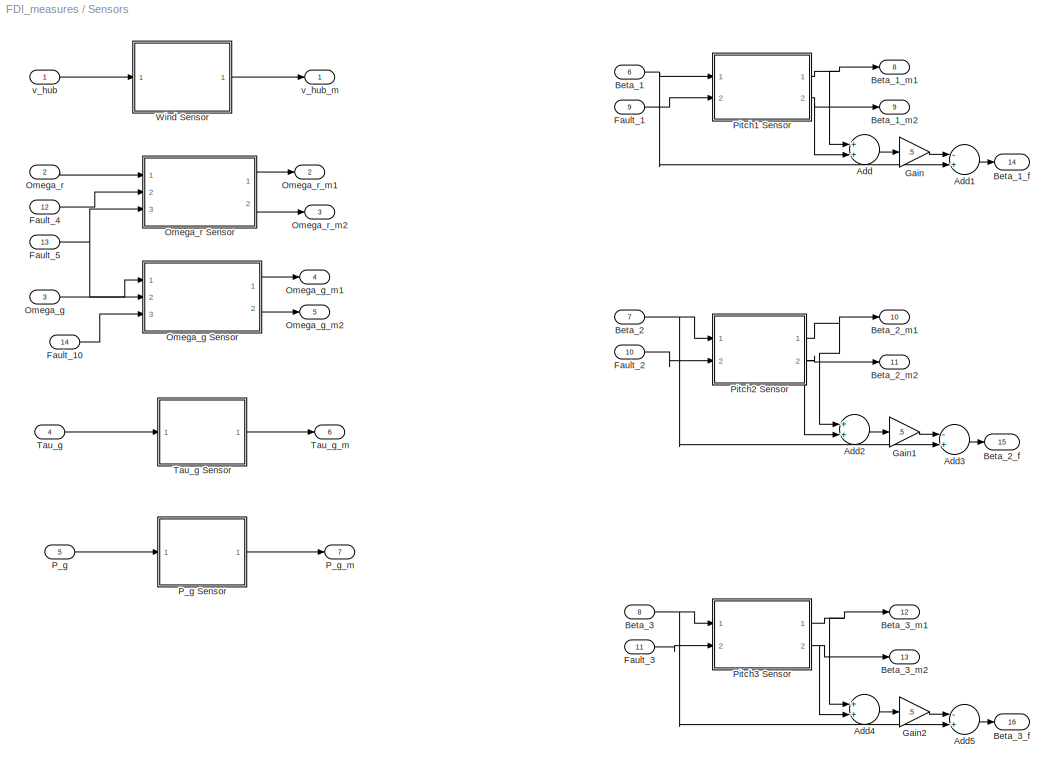
BLOCK [SubSystem] Sensors
  Ports = [14, 16]
  RequestExecContextInheritance = off
  SID = 278
BLOCK [Sum] Sensors/Add
  InputSameDT = off
  OutDataTypeStr = Inherit: Inherit via internal rule
  Ports = [2, 1]
  SID = 292
  SaturateOnIntegerOverflow = off
BLOCK [Sum] Sensors/Add1
  InputSameDT = off
  Inputs = -+
  OutDataTypeStr = Inherit: Inherit via internal rule
  Ports = [2, 1]
  SID = 293
  SaturateOnIntegerOverflow = off
BLOCK [Sum] Sensors/Add2
  InputSameDT = off
  OutDataTypeStr = Inherit: Inherit via internal rule
  Ports = [2, 1]
  SID = 294
  SaturateOnIntegerOverflow = off
BLOCK [Sum] Sensors/Add3
  InputSameDT = off
  Inputs = -+
  OutDataTypeStr = Inherit: Inherit via internal rule
  Ports = [2, 1]
  SID = 295
  SaturateOnIntegerOverflow = off
BLOCK [Sum] Sensors/Add4
  InputSameDT = off
  OutDataTypeStr = Inherit: Inherit via internal rule
  Ports = [2, 1]
  SID = 296
  SaturateOnIntegerOverflow = off
BLOCK [Sum] Sensors/Add5
  InputSameDT = off
  Inputs = -+
  OutDataTypeStr = Inherit: Inherit via internal rule
  Ports = [2, 1]
  SID = 297
  SaturateOnIntegerOverflow = off
BLOCK [Inport] Sensors/Beta_1
  IconDisplay = Port number
  Port = 6
  SID = 284
BLOCK [Outport] Sensors/Beta_1_f
  IconDisplay = Port number
  Port = 14
  SID = 387
BLOCK [Outport] Sensors/Beta_1_m1
  IconDisplay = Port number
  Port = 8
  SID = 381
BLOCK [Outport] Sensors/Beta_1_m2
  IconDisplay = Port number
  Port = 9
  SID = 382
BLOCK [Inport] Sensors/Beta_2
  IconDisplay = Port number
  Port = 7
  SID = 285
BLOCK [Outport] Sensors/Beta_2_f
  IconDisplay = Port number
  Port = 15
  SID = 388
BLOCK [Outport] Sensors/Beta_2_m1
  IconDisplay = Port number
  Port = 10
  SID = 383
BLOCK [Outport] Sensors/Beta_2_m2
  IconDisplay = Port number
  Port = 11
  SID = 384
BLOCK [Inport] Sensors/Beta_3
  IconDisplay = Port number
  Port = 8
  SID = 286
BLOCK [Outport] Sensors/Beta_3_f
  IconDisplay = Port number
  Port = 16
  SID = 389
BLOCK [Outport] Sensors/Beta_3_m1
  IconDisplay = Port number
  Port = 12
  SID = 385
BLOCK [Outport] Sensors/Beta_3_m2
  IconDisplay = Port number
  Port = 13
  SID = 386
BLOCK [Inport] Sensors/Fault_1
  IconDisplay = Port number
  Port = 9
  SID = 287
BLOCK [Inport] Sensors/Fault_10
  IconDisplay = Port number
  Port = 14
  SID = 816
BLOCK [Inport] Sensors/Fault_2
  IconDisplay = Port number
  Port = 10
  SID = 288
BLOCK [Inport] Sensors/Fault_3
  IconDisplay = Port number
  Port = 11
  SID = 289
BLOCK [Inport] Sensors/Fault_4
  IconDisplay = Port number
  Port = 12
  SID = 290
BLOCK [Inport] Sensors/Fault_5
  IconDisplay = Port number
  Port = 13
  SID = 291
BLOCK [Gain] Sensors/Gain
  Gain = .5
  OutDataTypeStr = Inherit: Inherit via internal rule
  ParamDataTypeStr = Inherit: Inherit via internal rule
  SID = 298
  SaturateOnIntegerOverflow = off
BLOCK [Gain] Sensors/Gain1
  Gain = .5
  OutDataTypeStr = Inherit: Inherit via internal rule
  ParamDataTypeStr = Inherit: Inherit via internal rule
  SID = 299
  SaturateOnIntegerOverflow = off
BLOCK [Gain] Sensors/Gain2
  Gain = .5
  OutDataTypeStr = Inherit: Inherit via internal rule
  ParamDataTypeStr = Inherit: Inherit via internal rule
  SID = 300
  SaturateOnIntegerOverflow = off
BLOCK [Inport] Sensors/Omega_g
  IconDisplay = Port number
  Port = 3
  SID = 281
BLOCK [SubSystem] Sensors/Omega_g Sensor
  Ports = [3, 2]
  RequestExecContextInheritance = off
  SID = 301
BLOCK [Sum] Sensors/Omega_g Sensor/Add
  InputSameDT = off
  OutDataTypeStr = Inherit: Inherit via internal rule
  Ports = [2, 1]
  SID = 304
  SaturateOnIntegerOverflow = off
BLOCK [Sum] Sensors/Omega_g Sensor/Add1
  InputSameDT = off
  OutDataTypeStr = Inherit: Inherit via internal rule
  Ports = [2, 1]
  SID = 305
  SaturateOnIntegerOverflow = off
BLOCK [Constant] Sensors/Omega_g Sensor/Constant
  SID = 811
  Value = Constant_Omega_g_m1
BLOCK [Inport] Sensors/Omega_g Sensor/Fault_10
  IconDisplay = Port number
  Port = 3
  SID = 810
BLOCK [Inport] Sensors/Omega_g Sensor/Fault_5
  IconDisplay = Port number
  Port = 2
  SID = 303
BLOCK [Gain] Sensors/Omega_g Sensor/Gain
  Gain = Gain_Omega_r_m2
  OutDataTypeStr = Inherit: Inherit via internal rule
  ParamDataTypeStr = Inherit: Inherit via internal rule
  SID = 306
  SaturateOnIntegerOverflow = off
BLOCK [Inport] Sensors/Omega_g Sensor/Omega_g
  IconDisplay = Port number
  SID = 302
BLOCK [Outport] Sensors/Omega_g Sensor/Omega_g_m1
  IconDisplay = Port number
  SID = 310
BLOCK [Outport] Sensors/Omega_g Sensor/Omega_g_m2
  IconDisplay = Port number
  Port = 2
  SID = 311
BLOCK [RandomNumber] Sensors/Omega_g Sensor/Random\nNumber
  Mean = m_omega_g
  SID = 307
  SampleTime = Ts
  Seed = seed(4)
  Variance = sigma_omega_g
BLOCK [RandomNumber] Sensors/Omega_g Sensor/Random\nNumber1
  Mean = m_omega_r
  SID = 308
  SampleTime = Ts
  Seed = seed(5)
  Variance = sigma_omega_r
BLOCK [Switch] Sensors/Omega_g Sensor/Switch
  InputSameDT = off
  SID = 812
  SaturateOnIntegerOverflow = off
  Threshold = 0.5
BLOCK [Switch] Sensors/Omega_g Sensor/Switch1
  InputSameDT = off
  SID = 309
  SaturateOnIntegerOverflow = off
  Threshold = 0.5
BLOCK [Outport] Sensors/Omega_g_m1
  IconDisplay = Port number
  Port = 4
  SID = 377
BLOCK [Outport] Sensors/Omega_g_m2
  IconDisplay = Port number
  Port = 5
  SID = 378
BLOCK [Inport] Sensors/Omega_r
  IconDisplay = Port number
  Port = 2
  SID = 280
BLOCK [SubSystem] Sensors/Omega_r Sensor
  Ports = [3, 2]
  RequestExecContextInheritance = off
  SID = 312
BLOCK [Sum] Sensors/Omega_r Sensor/Add
  InputSameDT = off
  OutDataTypeStr = Inherit: Inherit via internal rule
  Ports = [2, 1]
  SID = 316
  SaturateOnIntegerOverflow = off
BLOCK [Sum] Sensors/Omega_r Sensor/Add1
  InputSameDT = off
  OutDataTypeStr = Inherit: Inherit via internal rule
  Ports = [2, 1]
  SID = 317
  SaturateOnIntegerOverflow = off
BLOCK [Constant] Sensors/Omega_r Sensor/Constant
  SID = 318
  Value = Constant_Omega_r_m1
BLOCK [Inport] Sensors/Omega_r Sensor/Fault_4
  IconDisplay = Port number
  Port = 2
  SID = 314
BLOCK [Inport] Sensors/Omega_r Sensor/Fault_5
  IconDisplay = Port number
  Port = 3
  SID = 315
BLOCK [Gain] Sensors/Omega_r Sensor/Gain
  Gain = Gain_Omega_r_m2
  OutDataTypeStr = Inherit: Inherit via internal rule
  ParamDataTypeStr = Inherit: Inherit via internal rule
  SID = 319
  SaturateOnIntegerOverflow = off
BLOCK [Inport] Sensors/Omega_r Sensor/Omega_r
  IconDisplay = Port number
  SID = 313
BLOCK [Outport] Sensors/Omega_r Sensor/Omega_r_m1
  IconDisplay = Port number
  SID = 324
BLOCK [Outport] Sensors/Omega_r Sensor/Omega_r_m2
  IconDisplay = Port number
  Port = 2
  SID = 325
BLOCK [RandomNumber] Sensors/Omega_r Sensor/Random\nNumber
  Mean = m_omega_r
  SID = 320
  SampleTime = Ts
  Seed = seed(2)
  Variance = sigma_omega_r
BLOCK [RandomNumber] Sensors/Omega_r Sensor/Random\nNumber1
  Mean = m_omega_r
  SID = 321
  SampleTime = Ts
  Seed = seed(3)
  Variance = sigma_omega_r
BLOCK [Switch] Sensors/Omega_r Sensor/Switch
  InputSameDT = off
  SID = 322
  SaturateOnIntegerOverflow = off
  Threshold = 0.5
BLOCK [Switch] Sensors/Omega_r Sensor/Switch1
  InputSameDT = off
  SID = 323
  SaturateOnIntegerOverflow = off
  Threshold = 0.5
BLOCK [Outport] Sensors/Omega_r_m1
  IconDisplay = Port number
  Port = 2
  SID = 375
BLOCK [Outport] Sensors/Omega_r_m2
  IconDisplay = Port number
  Port = 3
  SID = 376
BLOCK [Inport] Sensors/P_g
  IconDisplay = Port number
  Port = 5
  SID = 283
BLOCK [SubSystem] Sensors/P_g Sensor
  Ports = [1, 1]
  RequestExecContextInheritance = off
  SID = 326
BLOCK [Sum] Sensors/P_g Sensor/Add
  InputSameDT = off
  OutDataTypeStr = Inherit: Inherit via internal rule
  Ports = [2, 1]
  SID = 328
  SaturateOnIntegerOverflow = off
BLOCK [Inport] Sensors/P_g Sensor/P_g
  IconDisplay = Port number
  SID = 327
BLOCK [Outport] Sensors/P_g Sensor/P_g_m
  IconDisplay = Port number
  SID = 330
BLOCK [RandomNumber] Sensors/P_g Sensor/Random\nNumber
  Mean = m_P_g
  SID = 329
  SampleTime = Ts
  Seed = seed(7)
  Variance = sigma_P_g
BLOCK [Outport] Sensors/P_g_m
  IconDisplay = Port number
  Port = 7
  SID = 380
BLOCK [SubSystem] Sensors/Pitch1 Sensor
  Ports = [2, 2]
  RequestExecContextInheritance = off
  SID = 331
BLOCK [Sum] Sensors/Pitch1 Sensor/Add
  InputSameDT = off
  OutDataTypeStr = Inherit: Inherit via internal rule
  Ports = [2, 1]
  SID = 334
  SaturateOnIntegerOverflow = off
BLOCK [Sum] Sensors/Pitch1 Sensor/Add1
  InputSameDT = off
  OutDataTypeStr = Inherit: Inherit via internal rule
  Ports = [2, 1]
  SID = 335
  SaturateOnIntegerOverflow = off
BLOCK [Inport] Sensors/Pitch1 Sensor/Beta_1
  IconDisplay = Port number
  SID = 332
BLOCK [Outport] Sensors/Pitch1 Sensor/Beta_1_m1
  IconDisplay = Port number
  SID = 340
BLOCK [Outport] Sensors/Pitch1 Sensor/Beta_1_m2
  IconDisplay = Port number
  Port = 2
  SID = 341
BLOCK [Constant] Sensors/Pitch1 Sensor/Constant
  SID = 336
  Value = Constant_Beta_1_m1
BLOCK [Inport] Sensors/Pitch1 Sensor/Fault_1
  IconDisplay = Port number
  Port = 2
  SID = 333
BLOCK [RandomNumber] Sensors/Pitch1 Sensor/Random\nNumber
  Mean = m_Beta
  SID = 337
  SampleTime = Ts
  Seed = seed(8)
  Variance = sigma_Beta
BLOCK [RandomNumber] Sensors/Pitch1 Sensor/Random\nNumber1
  Mean = m_Beta
  SID = 338
  SampleTime = Ts
  Seed = seed(9)
  Variance = sigma_Beta
BLOCK [Switch] Sensors/Pitch1 Sensor/Switch
  InputSameDT = off
  SID = 339
  SaturateOnIntegerOverflow = off
  Threshold = 0.5
BLOCK [SubSystem] Sensors/Pitch2 Sensor
  Ports = [2, 2]
  RequestExecContextInheritance = off
  SID = 342
BLOCK [Sum] Sensors/Pitch2 Sensor/Add
  InputSameDT = off
  OutDataTypeStr = Inherit: Inherit via internal rule
  Ports = [2, 1]
  SID = 345
  SaturateOnIntegerOverflow = off
BLOCK [Sum] Sensors/Pitch2 Sensor/Add1
  InputSameDT = off
  OutDataTypeStr = Inherit: Inherit via internal rule
  Ports = [2, 1]
  SID = 346
  SaturateOnIntegerOverflow = off
BLOCK [Inport] Sensors/Pitch2 Sensor/Beta_2
  IconDisplay = Port number
  SID = 343
BLOCK [Outport] Sensors/Pitch2 Sensor/Beta_2_m1
  IconDisplay = Port number
  SID = 351
BLOCK [Outport] Sensors/Pitch2 Sensor/Beta_2_m2
  IconDisplay = Port number
  Port = 2
  SID = 352
BLOCK [Inport] Sensors/Pitch2 Sensor/Fault_2
  IconDisplay = Port number
  Port = 2
  SID = 344
BLOCK [Gain] Sensors/Pitch2 Sensor/Gain
  Gain = Gain_Beta_2_m2
  OutDataTypeStr = Inherit: Inherit via internal rule
  ParamDataTypeStr = Inherit: Inherit via internal rule
  SID = 347
  SaturateOnIntegerOverflow = off
BLOCK [RandomNumber] Sensors/Pitch2 Sensor/Random\nNumber
  Mean = m_Beta
  SID = 348
  SampleTime = Ts
  Seed = seed(10)
  Variance = sigma_Beta
BLOCK [RandomNumber] Sensors/Pitch2 Sensor/Random\nNumber1
  Mean = m_Beta
  SID = 349
  SampleTime = Ts
  Seed = seed(11)
  Variance = sigma_Beta
BLOCK [Switch] Sensors/Pitch2 Sensor/Switch
  InputSameDT = off
  SID = 350
  SaturateOnIntegerOverflow = off
  Threshold = .5
BLOCK [SubSystem] Sensors/Pitch3 Sensor
  Ports = [2, 2]
  RequestExecContextInheritance = off
  SID = 353
BLOCK [Sum] Sensors/Pitch3 Sensor/Add
  InputSameDT = off
  OutDataTypeStr = Inherit: Inherit via internal rule
  Ports = [2, 1]
  SID = 356
  SaturateOnIntegerOverflow = off
BLOCK [Sum] Sensors/Pitch3 Sensor/Add1
  InputSameDT = off
  OutDataTypeStr = Inherit: Inherit via internal rule
  Ports = [2, 1]
  SID = 357
  SaturateOnIntegerOverflow = off
BLOCK [Inport] Sensors/Pitch3 Sensor/Beta_3
  IconDisplay = Port number
  SID = 354
BLOCK [Outport] Sensors/Pitch3 Sensor/Beta_3_m1
  IconDisplay = Port number
  SID = 362
BLOCK [Outport] Sensors/Pitch3 Sensor/Beta_3_m2
  IconDisplay = Port number
  Port = 2
  SID = 363
BLOCK [Constant] Sensors/Pitch3 Sensor/Constant
  SID = 358
  Value = Constant_Beta_3_m1
BLOCK [Inport] Sensors/Pitch3 Sensor/Fault_3
  IconDisplay = Port number
  Port = 2
  SID = 355
BLOCK [RandomNumber] Sensors/Pitch3 Sensor/Random\nNumber
  Mean = m_Beta
  SID = 359
  SampleTime = Ts
  Seed = seed(12)
  Variance = sigma_Beta
BLOCK [RandomNumber] Sensors/Pitch3 Sensor/Random\nNumber1
  Mean = m_Beta
  SID = 360
  SampleTime = Ts
  Seed = seed(13)
  Variance = sigma_Beta
BLOCK [Switch] Sensors/Pitch3 Sensor/Switch
  InputSameDT = off
  SID = 361
  SaturateOnIntegerOverflow = off
  Threshold = 0.5
BLOCK [Inport] Sensors/Tau_g
  IconDisplay = Port number
  Port = 4
  SID = 282
BLOCK [SubSystem] Sensors/Tau_g Sensor
  Ports = [1, 1]
  RequestExecContextInheritance = off
  SID = 364
BLOCK [Sum] Sensors/Tau_g Sensor/Add
  InputSameDT = off
  OutDataTypeStr = Inherit: Inherit via internal rule
  Ports = [2, 1]
  SID = 366
  SaturateOnIntegerOverflow = off
BLOCK [RandomNumber] Sensors/Tau_g Sensor/Random\nNumber
  Mean = m_tau_g
  SID = 367
  SampleTime = Ts
  Seed = seed(6)
  Variance = sigma_tau_g
BLOCK [Inport] Sensors/Tau_g Sensor/Tau_g
  IconDisplay = Port number
  SID = 365
BLOCK [Outport] Sensors/Tau_g Sensor/Tau_g_m
  IconDisplay = Port number
  SID = 368
BLOCK [Outport] Sensors/Tau_g_m
  IconDisplay = Port number
  Port = 6
  SID = 379
BLOCK [SubSystem] Sensors/Wind Sensor
  Ports = [1, 1]
  RequestExecContextInheritance = off
  SID = 369
BLOCK [Sum] Sensors/Wind Sensor/Add
  InputSameDT = off
  OutDataTypeStr = Inherit: Inherit via internal rule
  Ports = [2, 1]
  SID = 371
  SaturateOnIntegerOverflow = off
BLOCK [RandomNumber] Sensors/Wind Sensor/Random\nNumber
  Mean = m_vw
  SID = 372
  SampleTime = Ts
  Seed = seed(1)
  Variance = sigma_vm
BLOCK [Inport] Sensors/Wind Sensor/v_hub
  IconDisplay = Port number
  SID = 370
BLOCK [Outport] Sensors/Wind Sensor/v_hub_m
  IconDisplay = Port number
  SID = 373
BLOCK [Inport] Sensors/v_hub
  IconDisplay = Port number
  SID = 279
BLOCK [Outport] Sensors/v_hub_m
  IconDisplay = Port number
  SID = 374
BLOCK [ToFile] To File
  Filename = data_test_3.mat
  MatrixName = measures
  Ports = [1]
  SID = 1056
  SampleTime = Ts
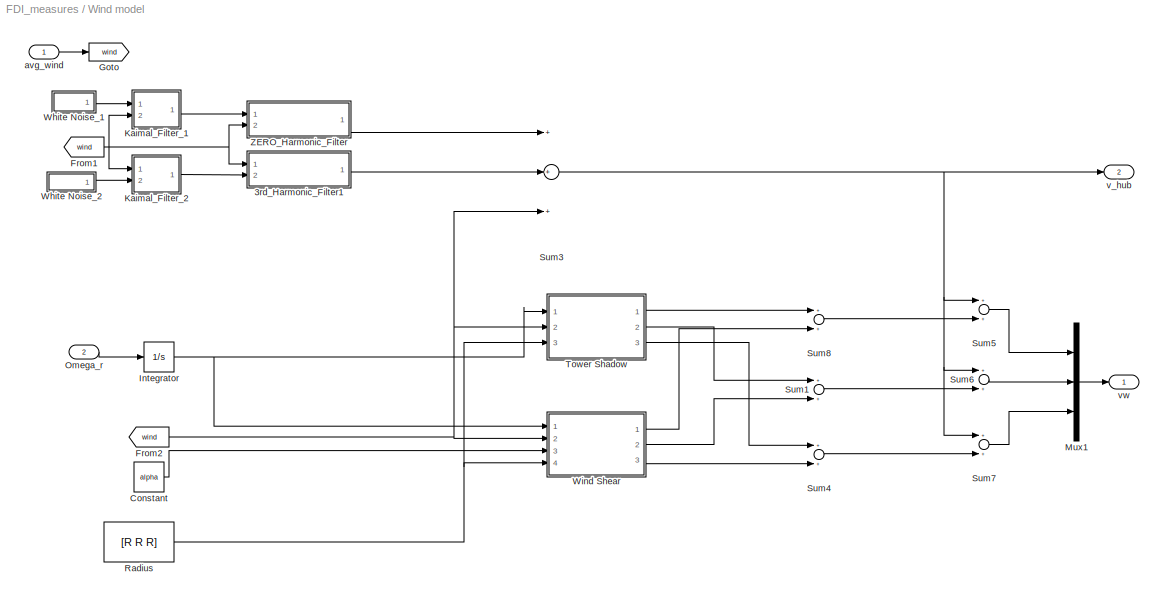
BLOCK [SubSystem] Wind model
  Ports = [2, 2]
  RequestExecContextInheritance = off
  SID = 390
BLOCK [SubSystem] Wind model/3rd_Harmonic_Filter1
  Ports = [2, 1]
  RequestExecContextInheritance = off
  SID = 393
  ShowPortLabels = none
BLOCK [SubSystem] Wind model/3rd_Harmonic_Filter1/3rd harmonic Filter
  Ports = [2, 1]
  RequestExecContextInheritance = off
  SID = 396
BLOCK [SubSystem] Wind model/3rd_Harmonic_Filter1/3rd harmonic Filter/Coefficients
  Ports = [1, 4]
  RequestExecContextInheritance = off
  SID = 399
BLOCK [Outport] Wind model/3rd_Harmonic_Filter1/3rd harmonic Filter/Coefficients/BD
  IconDisplay = Port number
  SID = 405
BLOCK [Fcn] Wind model/3rd_Harmonic_Filter1/3rd harmonic Filter/Coefficients/BD coeff
  Expr = 0.2766/0.3691/(r/u(1))
  SID = 401
BLOCK [Outport] Wind model/3rd_Harmonic_Filter1/3rd harmonic Filter/Coefficients/CD
  IconDisplay = Port number
  Port = 2
  SID = 406
BLOCK [Fcn] Wind model/3rd_Harmonic_Filter1/3rd harmonic Filter/Coefficients/CD coeff
  Expr = 0.0307/0.3691/(r/u(1))^2
  SID = 402
BLOCK [Outport] Wind model/3rd_Harmonic_Filter1/3rd harmonic Filter/Coefficients/ED
  IconDisplay = Port number
  Port = 3
  SID = 407
BLOCK [Fcn] Wind model/3rd_Harmonic_Filter1/3rd harmonic Filter/Coefficients/ED coeff
  Expr = 1.7722/0.3691/(r/u(1))
  SID = 403
BLOCK [Outport] Wind model/3rd_Harmonic_Filter1/3rd harmonic Filter/Coefficients/FD
  IconDisplay = Port number
  Port = 4
  SID = 408
BLOCK [Fcn] Wind model/3rd_Harmonic_Filter1/3rd harmonic Filter/Coefficients/FD coeff
  Expr = 1/0.3691/(r/u(1))^2
  SID = 404
BLOCK [Inport] Wind model/3rd_Harmonic_Filter1/3rd harmonic Filter/Coefficients/avg_wind
  IconDisplay = Port number
  SID = 400
BLOCK [From] Wind model/3rd_Harmonic_Filter1/3rd harmonic Filter/From1
  CloseFcn = tagdialog Close
  GotoTag = BD
  SID = 409
BLOCK [From] Wind model/3rd_Harmonic_Filter1/3rd harmonic Filter/From2
  CloseFcn = tagdialog Close
  GotoTag = CD
  SID = 410
BLOCK [From] Wind model/3rd_Harmonic_Filter1/3rd harmonic Filter/From3
  CloseFcn = tagdialog Close
  GotoTag = ED
  SID = 411
BLOCK [From] Wind model/3rd_Harmonic_Filter1/3rd harmonic Filter/From4
  CloseFcn = tagdialog Close
  GotoTag = FD
  SID = 412
BLOCK [Goto] Wind model/3rd_Harmonic_Filter1/3rd harmonic Filter/Goto
  GotoTag = BD
  SID = 413
BLOCK [Goto] Wind model/3rd_Harmonic_Filter1/3rd harmonic Filter/Goto1
  GotoTag = CD
  SID = 414
BLOCK [Goto] Wind model/3rd_Harmonic_Filter1/3rd harmonic Filter/Goto2
  GotoTag = ED
  SID = 415
BLOCK [Goto] Wind model/3rd_Harmonic_Filter1/3rd harmonic Filter/Goto3
  GotoTag = FD
  SID = 416
BLOCK [Inport] Wind model/3rd_Harmonic_Filter1/3rd harmonic Filter/In
  IconDisplay = Port number
  Port = 2
  SID = 398
BLOCK [Integrator] Wind model/3rd_Harmonic_Filter1/3rd harmonic Filter/Integrator
  Ports = [1, 1]
  SID = 417
BLOCK [Integrator] Wind model/3rd_Harmonic_Filter1/3rd harmonic Filter/Integrator1
  Ports = [1, 1]
  SID = 418
BLOCK [Outport] Wind model/3rd_Harmonic_Filter1/3rd harmonic Filter/Out
  IconDisplay = Port number
  SID = 425
BLOCK [Product] Wind model/3rd_Harmonic_Filter1/3rd harmonic Filter/Product
  InputSameDT = off
  Ports = [2, 1]
  RndMeth = Floor
  SID = 419
BLOCK [Product] Wind model/3rd_Harmonic_Filter1/3rd harmonic Filter/Product1
  InputSameDT = off
  Ports = [2, 1]
  RndMeth = Floor
  SID = 420
BLOCK [Product] Wind model/3rd_Harmonic_Filter1/3rd harmonic Filter/Product2
  InputSameDT = off
  Ports = [2, 1]
  RndMeth = Floor
  SID = 421
BLOCK [Product] Wind model/3rd_Harmonic_Filter1/3rd harmonic Filter/Product3
  InputSameDT = off
  Ports = [2, 1]
  RndMeth = Floor
  SID = 422
BLOCK [Sum] Wind model/3rd_Harmonic_Filter1/3rd harmonic Filter/Sum1
  IconShape = round
  InputSameDT = off
  Inputs = ++-
  OutDataTypeStr = Inherit: Inherit via internal rule
  Ports = [3, 1]
  SID = 423
BLOCK [Sum] Wind model/3rd_Harmonic_Filter1/3rd harmonic Filter/Sum2
  IconShape = round
  InputSameDT = off
  Inputs = +|-
  OutDataTypeStr = Inherit: Inherit via internal rule
  Ports = [2, 1]
  SID = 424
BLOCK [Inport] Wind model/3rd_Harmonic_Filter1/3rd harmonic Filter/avg_wind
  IconDisplay = Port number
  SID = 397
BLOCK [UnitDelay] Wind model/3rd_Harmonic_Filter1/Unit Delay
  HasFrameUpgradeWarning = on
  SID = 426
  SampleTime = T_sample
BLOCK [Inport] Wind model/3rd_Harmonic_Filter1/avg_wind
  IconDisplay = Port number
  SID = 394
BLOCK [Inport] Wind model/3rd_Harmonic_Filter1/in_1
  IconDisplay = Port number
  Port = 2
  SID = 395
BLOCK [Outport] Wind model/3rd_Harmonic_Filter1/out_1
  IconDisplay = Port number
  SID = 427
BLOCK [Constant] Wind model/Constant
  SID = 428
  Value = alpha
BLOCK [From] Wind model/From1
  CloseFcn = tagdialog Close
  GotoTag = wind
  SID = 429
BLOCK [From] Wind model/From2
  CloseFcn = tagdialog Close
  GotoTag = wind
  SID = 430
BLOCK [Goto] Wind model/Goto
  GotoTag = wind
  SID = 431
BLOCK [Integrator] Wind model/Integrator
  Ports = [1, 1]
  SID = 432
BLOCK [SubSystem] Wind model/Kaimal_Filter_1
  Ports = [2, 1]
  RequestExecContextInheritance = off
  SID = 433
  ShowPortLabels = none
BLOCK [Fcn] Wind model/Kaimal_Filter_1/Fcn
  Expr = turb_int*sqrt(L*u(1))/100/sqrt(2)
  SID = 436
BLOCK [SubSystem] Wind model/Kaimal_Filter_1/Kaimal Filter
  Ports = [2, 1]
  RequestExecContextInheritance = off
  SID = 437
BLOCK [Gain] Wind model/Kaimal_Filter_1/Kaimal Filter/A//D
  Gain = 0.0182/1.3463
  SID = 440
BLOCK [SubSystem] Wind model/Kaimal_Filter_1/Kaimal Filter/Coefficients
  Ports = [1, 4]
  RequestExecContextInheritance = off
  SID = 441
BLOCK [Outport] Wind model/Kaimal_Filter_1/Kaimal Filter/Coefficients/BD
  IconDisplay = Port number
  SID = 447
BLOCK [Fcn] Wind model/Kaimal_Filter_1/Kaimal Filter/Coefficients/BD coeff
  Expr = 1.3653/1.3463/(L/2/pi/u(1))
  SID = 443
BLOCK [Outport] Wind model/Kaimal_Filter_1/Kaimal Filter/Coefficients/CD
  IconDisplay = Port number
  Port = 2
  SID = 448
BLOCK [Fcn] Wind model/Kaimal_Filter_1/Kaimal Filter/Coefficients/CD coeff
  Expr = 0.9846/1.3463/(L/2/pi/u(1))^2
  SID = 444
BLOCK [Outport] Wind model/Kaimal_Filter_1/Kaimal Filter/Coefficients/ED
  IconDisplay = Port number
  Port = 3
  SID = 449
BLOCK [Fcn] Wind model/Kaimal_Filter_1/Kaimal Filter/Coefficients/ED coeff
  Expr = 3.7593/1.3463/(L/2/pi/u(1))
  SID = 445
BLOCK [Outport] Wind model/Kaimal_Filter_1/Kaimal Filter/Coefficients/FD
  IconDisplay = Port number
  Port = 4
  SID = 450
BLOCK [Fcn] Wind model/Kaimal_Filter_1/Kaimal Filter/Coefficients/FD coeff
  Expr = 1/1.3463/(L/2/pi/u(1))^2
  SID = 446
BLOCK [Inport] Wind model/Kaimal_Filter_1/Kaimal Filter/Coefficients/avg_wind
  IconDisplay = Port number
  SID = 442
BLOCK [From] Wind model/Kaimal_Filter_1/Kaimal Filter/From1
  CloseFcn = tagdialog Close
  GotoTag = BD
  SID = 451
BLOCK [From] Wind model/Kaimal_Filter_1/Kaimal Filter/From2
  CloseFcn = tagdialog Close
  GotoTag = CD
  SID = 452
BLOCK [From] Wind model/Kaimal_Filter_1/Kaimal Filter/From3
  CloseFcn = tagdialog Close
  GotoTag = ED
  SID = 453
BLOCK [From] Wind model/Kaimal_Filter_1/Kaimal Filter/From4
  CloseFcn = tagdialog Close
  GotoTag = FD
  SID = 454
BLOCK [Goto] Wind model/Kaimal_Filter_1/Kaimal Filter/Goto
  GotoTag = BD
  SID = 455
BLOCK [Goto] Wind model/Kaimal_Filter_1/Kaimal Filter/Goto1
  GotoTag = CD
  SID = 456
BLOCK [Goto] Wind model/Kaimal_Filter_1/Kaimal Filter/Goto2
  GotoTag = ED
  SID = 457
BLOCK [Goto] Wind model/Kaimal_Filter_1/Kaimal Filter/Goto3
  GotoTag = FD
  SID = 458
BLOCK [Inport] Wind model/Kaimal_Filter_1/Kaimal Filter/In
  IconDisplay = Port number
  Port = 2
  SID = 439
BLOCK [Integrator] Wind model/Kaimal_Filter_1/Kaimal Filter/Integrator
  Ports = [1, 1]
  SID = 459
BLOCK [Integrator] Wind model/Kaimal_Filter_1/Kaimal Filter/Integrator1
  Ports = [1, 1]
  SID = 460
BLOCK [Outport] Wind model/Kaimal_Filter_1/Kaimal Filter/Out
  IconDisplay = Port number
  SID = 468
BLOCK [Product] Wind model/Kaimal_Filter_1/Kaimal Filter/Product
  InputSameDT = off
  Ports = [2, 1]
  RndMeth = Floor
  SID = 461
BLOCK [Product] Wind model/Kaimal_Filter_1/Kaimal Filter/Product1
  InputSameDT = off
  Ports = [2, 1]
  RndMeth = Floor
  SID = 462
BLOCK [Product] Wind model/Kaimal_Filter_1/Kaimal Filter/Product2
  InputSameDT = off
  Ports = [2, 1]
  RndMeth = Floor
  SID = 463
BLOCK [Product] Wind model/Kaimal_Filter_1/Kaimal Filter/Product3
  InputSameDT = off
  Ports = [2, 1]
  RndMeth = Floor
  SID = 464
BLOCK [Sum] Wind model/Kaimal_Filter_1/Kaimal Filter/Sum
  IconShape = round
  InputSameDT = off
  Inputs = |++
  OutDataTypeStr = Inherit: Inherit via internal rule
  Ports = [2, 1]
  SID = 465
BLOCK [Sum] Wind model/Kaimal_Filter_1/Kaimal Filter/Sum1
  IconShape = round
  InputSameDT = off
  Inputs = ++-
  OutDataTypeStr = Inherit: Inherit via internal rule
  Ports = [3, 1]
  SID = 466
BLOCK [Sum] Wind model/Kaimal_Filter_1/Kaimal Filter/Sum2
  IconShape = round
  InputSameDT = off
  Inputs = +|-
  OutDataTypeStr = Inherit: Inherit via internal rule
  Ports = [2, 1]
  SID = 467
BLOCK [Inport] Wind model/Kaimal_Filter_1/Kaimal Filter/avg_wind
  IconDisplay = Port number
  SID = 438
BLOCK [Product] Wind model/Kaimal_Filter_1/Product
  InputSameDT = off
  Ports = [2, 1]
  RndMeth = Floor
  SID = 469
BLOCK [UnitDelay] Wind model/Kaimal_Filter_1/Unit Delay
  HasFrameUpgradeWarning = on
  SID = 470
  SampleTime = T_sample
BLOCK [Inport] Wind model/Kaimal_Filter_1/avg_wind
  IconDisplay = Port number
  Port = 2
  SID = 435
BLOCK [Inport] Wind model/Kaimal_Filter_1/in_1
  IconDisplay = Port number
  SID = 434
BLOCK [Outport] Wind model/Kaimal_Filter_1/out_1
  IconDisplay = Port number
  SID = 471
BLOCK [SubSystem] Wind model/Kaimal_Filter_2
  Ports = [2, 1]
  RequestExecContextInheritance = off
  SID = 472
  ShowPortLabels = none
BLOCK [Fcn] Wind model/Kaimal_Filter_2/Fcn
  Expr = turb_int*sqrt(L*u(1))/100/sqrt(2)
  SID = 475
BLOCK [SubSystem] Wind model/Kaimal_Filter_2/Kaimal Filter
  Ports = [2, 1]
  RequestExecContextInheritance = off
  SID = 476
BLOCK [Gain] Wind model/Kaimal_Filter_2/Kaimal Filter/A//D
  Gain = 0.0182/1.3463
  SID = 479
BLOCK [SubSystem] Wind model/Kaimal_Filter_2/Kaimal Filter/Coefficients
  Ports = [1, 4]
  RequestExecContextInheritance = off
  SID = 480
BLOCK [Outport] Wind model/Kaimal_Filter_2/Kaimal Filter/Coefficients/BD
  IconDisplay = Port number
  SID = 486
BLOCK [Fcn] Wind model/Kaimal_Filter_2/Kaimal Filter/Coefficients/BD coeff
  Expr = 1.3653/1.3463/(L/2/pi/u(1))
  SID = 482
BLOCK [Outport] Wind model/Kaimal_Filter_2/Kaimal Filter/Coefficients/CD
  IconDisplay = Port number
  Port = 2
  SID = 487
BLOCK [Fcn] Wind model/Kaimal_Filter_2/Kaimal Filter/Coefficients/CD coeff
  Expr = 0.9846/1.3463/(L/2/pi/u(1))^2
  SID = 483
BLOCK [Outport] Wind model/Kaimal_Filter_2/Kaimal Filter/Coefficients/ED
  IconDisplay = Port number
  Port = 3
  SID = 488
BLOCK [Fcn] Wind model/Kaimal_Filter_2/Kaimal Filter/Coefficients/ED coeff
  Expr = 3.7593/1.3463/(L/2/pi/u(1))
  SID = 484
BLOCK [Outport] Wind model/Kaimal_Filter_2/Kaimal Filter/Coefficients/FD
  IconDisplay = Port number
  Port = 4
  SID = 489
BLOCK [Fcn] Wind model/Kaimal_Filter_2/Kaimal Filter/Coefficients/FD coeff
  Expr = 1/1.3463/(L/2/pi/u(1))^2
  SID = 485
BLOCK [Inport] Wind model/Kaimal_Filter_2/Kaimal Filter/Coefficients/avg_wind
  IconDisplay = Port number
  SID = 481
BLOCK [From] Wind model/Kaimal_Filter_2/Kaimal Filter/From1
  CloseFcn = tagdialog Close
  GotoTag = BD
  SID = 490
BLOCK [From] Wind model/Kaimal_Filter_2/Kaimal Filter/From2
  CloseFcn = tagdialog Close
  GotoTag = CD
  SID = 491
BLOCK [From] Wind model/Kaimal_Filter_2/Kaimal Filter/From3
  CloseFcn = tagdialog Close
  GotoTag = ED
  SID = 492
BLOCK [From] Wind model/Kaimal_Filter_2/Kaimal Filter/From4
  CloseFcn = tagdialog Close
  GotoTag = FD
  SID = 493
BLOCK [Goto] Wind model/Kaimal_Filter_2/Kaimal Filter/Goto
  GotoTag = BD
  SID = 494
BLOCK [Goto] Wind model/Kaimal_Filter_2/Kaimal Filter/Goto1
  GotoTag = CD
  SID = 495
BLOCK [Goto] Wind model/Kaimal_Filter_2/Kaimal Filter/Goto2
  GotoTag = ED
  SID = 496
BLOCK [Goto] Wind model/Kaimal_Filter_2/Kaimal Filter/Goto3
  GotoTag = FD
  SID = 497
BLOCK [Inport] Wind model/Kaimal_Filter_2/Kaimal Filter/In
  IconDisplay = Port number
  Port = 2
  SID = 478
BLOCK [Integrator] Wind model/Kaimal_Filter_2/Kaimal Filter/Integrator
  Ports = [1, 1]
  SID = 498
BLOCK [Integrator] Wind model/Kaimal_Filter_2/Kaimal Filter/Integrator1
  Ports = [1, 1]
  SID = 499
BLOCK [Outport] Wind model/Kaimal_Filter_2/Kaimal Filter/Out
  IconDisplay = Port number
  SID = 507
BLOCK [Product] Wind model/Kaimal_Filter_2/Kaimal Filter/Product
  InputSameDT = off
  Ports = [2, 1]
  RndMeth = Floor
  SID = 500
BLOCK [Product] Wind model/Kaimal_Filter_2/Kaimal Filter/Product1
  InputSameDT = off
  Ports = [2, 1]
  RndMeth = Floor
  SID = 501
BLOCK [Product] Wind model/Kaimal_Filter_2/Kaimal Filter/Product2
  InputSameDT = off
  Ports = [2, 1]
  RndMeth = Floor
  SID = 502
BLOCK [Product] Wind model/Kaimal_Filter_2/Kaimal Filter/Product3
  InputSameDT = off
  Ports = [2, 1]
  RndMeth = Floor
  SID = 503
BLOCK [Sum] Wind model/Kaimal_Filter_2/Kaimal Filter/Sum
  IconShape = round
  InputSameDT = off
  Inputs = |++
  OutDataTypeStr = Inherit: Inherit via internal rule
  Ports = [2, 1]
  SID = 504
BLOCK [Sum] Wind model/Kaimal_Filter_2/Kaimal Filter/Sum1
  IconShape = round
  InputSameDT = off
  Inputs = ++-
  OutDataTypeStr = Inherit: Inherit via internal rule
  Ports = [3, 1]
  SID = 505
BLOCK [Sum] Wind model/Kaimal_Filter_2/Kaimal Filter/Sum2
  IconShape = round
  InputSameDT = off
  Inputs = +|-
  OutDataTypeStr = Inherit: Inherit via internal rule
  Ports = [2, 1]
  SID = 506
BLOCK [Inport] Wind model/Kaimal_Filter_2/Kaimal Filter/avg_wind
  IconDisplay = Port number
  SID = 477
BLOCK [Product] Wind model/Kaimal_Filter_2/Product
  InputSameDT = off
  Ports = [2, 1]
  RndMeth = Floor
  SID = 508
BLOCK [UnitDelay] Wind model/Kaimal_Filter_2/Unit Delay
  HasFrameUpgradeWarning = on
  SID = 509
  SampleTime = T_sample
BLOCK [Inport] Wind model/Kaimal_Filter_2/avg_wind
  IconDisplay = Port number
  SID = 473
BLOCK [Inport] Wind model/Kaimal_Filter_2/in_1
  IconDisplay = Port number
  Port = 2
  SID = 474
BLOCK [Outport] Wind model/Kaimal_Filter_2/out_1
  IconDisplay = Port number
  SID = 510
BLOCK [Mux] Wind model/Mux1
  DisplayOption = bar
  Inputs = 3
  Ports = [3, 1]
  SID = 511
BLOCK [Inport] Wind model/Omega_r
  IconDisplay = Port number
  Port = 2
  SID = 392
BLOCK [Constant] Wind model/Radius
  SID = 512
  Value = [R R R]
BLOCK [Sum] Wind model/Sum1
  Ports = [2, 1]
  SID = 513
BLOCK [Sum] Wind model/Sum3
  Inputs = +++
  Ports = [3, 1]
  SID = 514
BLOCK [Sum] Wind model/Sum4
  Ports = [2, 1]
  SID = 515
BLOCK [Sum] Wind model/Sum5
  Ports = [2, 1]
  SID = 516
BLOCK [Sum] Wind model/Sum6
  Ports = [2, 1]
  SID = 517
BLOCK [Sum] Wind model/Sum7
  Ports = [2, 1]
  SID = 518
BLOCK [Sum] Wind model/Sum8
  Ports = [2, 1]
  SID = 519
BLOCK [SubSystem] Wind model/Tower Shadow
  Ports = [3, 3]
  RequestExecContextInheritance = off
  SID = 520
BLOCK [Constant] Wind model/Tower Shadow/Constant
  SID = 524
  Value = 2/3*pi
BLOCK [Constant] Wind model/Tower Shadow/Constant2
  SID = 525
  Value = 4/3*pi
BLOCK [Demux] Wind model/Tower Shadow/Demux
  DisplayOption = bar
  Outputs = 3
  Ports = [1, 3]
  SID = 526
BLOCK [Fcn] Wind model/Tower Shadow/Fcn1
  Expr = m*u[3]/(3*u[2]^2)*(a^2*2*(u[2]^2-r0^2)/((u[2]^2+r0^2)*sin(u[1])^2+2*k^2)+2*a^2*k^2*(r0^2-u[2]^2)/((u[2]^2*sin(u[1])^2+k^2)*(r0^2*sin(u[1])^2+k^2)))
  SID = 527
BLOCK [Fcn] Wind model/Tower Shadow/Fcn2
  Expr = m*u[3]/(3*u[2]^2)*(a^2*2*(u[2]^2-r0^2)/((u[2]^2+r0^2)*sin(u[1])^2+2*k^2)+2*a^2*k^2*(r0^2-u[2]^2)/((u[2]^2*sin(u[1])^2+k^2)*(r0^2*sin(u[1])^2+k^2)))
  SID = 528
BLOCK [Fcn] Wind model/Tower Shadow/Fcn3
  Expr = m*u[3]/(3*u[2]^2)*(a^2*2*(u[2]^2-r0^2)/((u[2]^2+r0^2)*sin(u[1])^2+2*k^2)+2*a^2*k^2*(r0^2-u[2]^2)/((u[2]^2*sin(u[1])^2+k^2)*(r0^2*sin(u[1])^2+k^2)))
  SID = 529
BLOCK [Fcn] Wind model/Tower Shadow/Modulus Operator1
  Expr = u[1]- floor(u[1]/(2*pi))*2*pi
  SID = 530
BLOCK [Fcn] Wind model/Tower Shadow/Modulus Operator2
  Expr = u[1]- floor(u[1]/(2*pi))*2*pi
  SID = 531
BLOCK [Fcn] Wind model/Tower Shadow/Modulus Operator3
  Expr = u[1]- floor(u[1]/(2*pi))*2*pi
  SID = 532
BLOCK [Mux] Wind model/Tower Shadow/Mux
  DisplayOption = bar
  Inputs = 3
  Ports = [3, 1]
  SID = 533
BLOCK [Mux] Wind model/Tower Shadow/Mux1
  DisplayOption = bar
  Inputs = 3
  Ports = [3, 1]
  SID = 534
BLOCK [Mux] Wind model/Tower Shadow/Mux2
  DisplayOption = bar
  Inputs = 3
  Ports = [3, 1]
  SID = 535
BLOCK [Outport] Wind model/Tower Shadow/Out1
  IconDisplay = Port number
  SID = 541
BLOCK [Outport] Wind model/Tower Shadow/Out2
  IconDisplay = Port number
  Port = 2
  SID = 542
BLOCK [Outport] Wind model/Tower Shadow/Out3
  IconDisplay = Port number
  Port = 3
  SID = 543
BLOCK [Inport] Wind model/Tower Shadow/R
  IconDisplay = Port number
  Port = 3
  SID = 523
BLOCK [Saturate] Wind model/Tower Shadow/Saturation
  InputPortMap = u0
  LowerLimit = pi/2
  Ports = [1, 1]
  SID = 536
  UpperLimit = 3*pi/2
BLOCK [Saturate] Wind model/Tower Shadow/Saturation1
  InputPortMap = u0
  LowerLimit = pi/2
  Ports = [1, 1]
  SID = 537
  UpperLimit = 3*pi/2
BLOCK [Saturate] Wind model/Tower Shadow/Saturation2
  InputPortMap = u0
  LowerLimit = pi/2
  Ports = [1, 1]
  SID = 538
  UpperLimit = 3*pi/2
BLOCK [Sum] Wind model/Tower Shadow/Sum3
  IconShape = round
  InputSameDT = off
  Inputs = ++|
  OutDataTypeStr = Inherit: Inherit via internal rule
  Ports = [2, 1]
  SID = 539
  SaturateOnIntegerOverflow = off
BLOCK [Sum] Wind model/Tower Shadow/Sum4
  IconShape = round
  InputSameDT = off
  Inputs = ++|
  OutDataTypeStr = Inherit: Inherit via internal rule
  Ports = [2, 1]
  SID = 540
  SaturateOnIntegerOverflow = off
BLOCK [Inport] Wind model/Tower Shadow/VH
  IconDisplay = Port number
  Port = 2
  SID = 522
BLOCK [Inport] Wind model/Tower Shadow/theta_r
  IconDisplay = Port number
  SID = 521
BLOCK [SubSystem] Wind model/White Noise_1
  Ports = [0, 1]
  RequestExecContextInheritance = off
  SID = 544
  ShowPortLabels = none
BLOCK [Gain] Wind model/White Noise_1/Gain
  Gain = [sqrt(Cov)]/[sqrt(Ts)]
  SID = 545
BLOCK [Outport] Wind model/White Noise_1/Out_1
  IconDisplay = Port number
  SID = 548
BLOCK [RandomNumber] Wind model/White Noise_1/White Noise
  SID = 546
  SampleTime = Ts
  Seed = seed
BLOCK [ZeroOrderHold] Wind model/White Noise_1/Zero-Order\nHold
  SID = 547
  SampleTime = Ts
BLOCK [SubSystem] Wind model/White Noise_2
  Ports = [0, 1]
  RequestExecContextInheritance = off
  SID = 549
  ShowPortLabels = none
BLOCK [Gain] Wind model/White Noise_2/Gain
  Gain = [sqrt(Cov)]/[sqrt(Ts)]
  SID = 550
BLOCK [Outport] Wind model/White Noise_2/Out_1
  IconDisplay = Port number
  SID = 553
BLOCK [RandomNumber] Wind model/White Noise_2/White Noise
  SID = 551
  SampleTime = Ts
  Seed = seed
BLOCK [ZeroOrderHold] Wind model/White Noise_2/Zero-Order\nHold
  SID = 552
  SampleTime = Ts
BLOCK [SubSystem] Wind model/Wind Shear
  Ports = [4, 3]
  RequestExecContextInheritance = off
  SID = 554
BLOCK [Constant] Wind model/Wind Shear/Constant
  SID = 559
  Value = 2/3*pi
BLOCK [Constant] Wind model/Wind Shear/Constant2
  SID = 560
  Value = 4/3*pi
BLOCK [Demux] Wind model/Wind Shear/Demux
  DisplayOption = bar
  Outputs = 3
  Ports = [1, 3]
  SID = 561
BLOCK [Fcn] Wind model/Wind Shear/Fcn1
  Expr = 2*u[2]/(3*u[4]^2)*(u[4]^3/3*u[3]/H*cos(u[1])+u[4]^4/4*u[3]*(u[3]-1)/(2*H^2)*cos(u[1])^2+u[4]^5/5*u[3]*(u[3]-1)*(u[3]-2)/(6*H^3)*cos(u[1])^3)
  SID = 562
BLOCK [Fcn] Wind model/Wind Shear/Fcn2
  Expr = 2*u[2]/(3*u[4]^2)*(u[4]^3/3*u[3]/H*cos(u[1])+u[4]^4/4*u[3]*(u[3]-1)/(2*H^2)*cos(u[1])^2+u[4]^5/5*u[3]*(u[3]-1)*(u[3]-2)/(6*H^3)*cos(u[1])^3)
  SID = 563
BLOCK [Fcn] Wind model/Wind Shear/Fcn3
  Expr = 2*u[2]/(3*u[4]^2)*(u[4]^3/3*u[3]/H*cos(u[1])+u[4]^4/4*u[3]*(u[3]-1)/(2*H^2)*cos(u[1])^2+u[4]^5/5*u[3]*(u[3]-1)*(u[3]-2)/(6*H^3)*cos(u[1])^3)
  SID = 564
BLOCK [Mux] Wind model/Wind Shear/Mux
  DisplayOption = bar
  Ports = [4, 1]
  SID = 565
BLOCK [Mux] Wind model/Wind Shear/Mux1
  DisplayOption = bar
  Ports = [4, 1]
  SID = 566
BLOCK [Mux] Wind model/Wind Shear/Mux2
  DisplayOption = bar
  Ports = [4, 1]
  SID = 567
BLOCK [Outport] Wind model/Wind Shear/Out1
  IconDisplay = Port number
  SID = 570
BLOCK [Outport] Wind model/Wind Shear/Out2
  IconDisplay = Port number
  Port = 2
  SID = 571
BLOCK [Outport] Wind model/Wind Shear/Out3
  IconDisplay = Port number
  Port = 3
  SID = 572
BLOCK [Inport] Wind model/Wind Shear/R
  IconDisplay = Port number
  Port = 4
  SID = 558
BLOCK [Sum] Wind model/Wind Shear/Sum3
  IconShape = round
  InputSameDT = off
  Inputs = ++|
  OutDataTypeStr = Inherit: Inherit via internal rule
  Ports = [2, 1]
  SID = 568
  SaturateOnIntegerOverflow = off
BLOCK [Sum] Wind model/Wind Shear/Sum4
  IconShape = round
  InputSameDT = off
  Inputs = ++|
  OutDataTypeStr = Inherit: Inherit via internal rule
  Ports = [2, 1]
  SID = 569
  SaturateOnIntegerOverflow = off
BLOCK [Inport] Wind model/Wind Shear/VH
  IconDisplay = Port number
  Port = 2
  SID = 556
BLOCK [Inport] Wind model/Wind Shear/alpha
  IconDisplay = Port number
  Port = 3
  SID = 557
BLOCK [Inport] Wind model/Wind Shear/theta_r
  IconDisplay = Port number
  SID = 555
BLOCK [SubSystem] Wind model/ZERO_Harmonic_Filter
  Ports = [2, 1]
  RequestExecContextInheritance = off
  SID = 573
  ShowPortLabels = none
BLOCK [UnitDelay] Wind model/ZERO_Harmonic_Filter/Unit Delay
  HasFrameUpgradeWarning = on
  SID = 576
  SampleTime = T_sample
BLOCK [SubSystem] Wind model/ZERO_Harmonic_Filter/ZERO harmonic Filter
  Ports = [2, 1]
  RequestExecContextInheritance = off
  SID = 577
BLOCK [SubSystem] Wind model/ZERO_Harmonic_Filter/ZERO harmonic Filter/Coefficients
  Ports = [1, 4]
  RequestExecContextInheritance = off
  SID = 580
BLOCK [Outport] Wind model/ZERO_Harmonic_Filter/ZERO harmonic Filter/Coefficients/BD
  IconDisplay = Port number
  SID = 586
BLOCK [Fcn] Wind model/ZERO_Harmonic_Filter/ZERO harmonic Filter/Coefficients/BD coeff
  Expr = 4.7869/7.6823/(r/u(1))
  SID = 582
BLOCK [Outport] Wind model/ZERO_Harmonic_Filter/ZERO harmonic Filter/Coefficients/CD
  IconDisplay = Port number
  Port = 2
  SID = 587
BLOCK [Fcn] Wind model/ZERO_Harmonic_Filter/ZERO harmonic Filter/Coefficients/CD coeff
  Expr = 0.9904/7.6823/(r/u(1))^2
  SID = 583
BLOCK [Outport] Wind model/ZERO_Harmonic_Filter/ZERO harmonic Filter/Coefficients/ED
  IconDisplay = Port number
  Port = 3
  SID = 588
BLOCK [Fcn] Wind model/ZERO_Harmonic_Filter/ZERO harmonic Filter/Coefficients/ED coeff
  Expr = 7.3518/7.6823/(r/u(1))
  SID = 584
BLOCK [Outport] Wind model/ZERO_Harmonic_Filter/ZERO harmonic Filter/Coefficients/FD
  IconDisplay = Port number
  Port = 4
  SID = 589
BLOCK [Fcn] Wind model/ZERO_Harmonic_Filter/ZERO harmonic Filter/Coefficients/FD coeff
  Expr = 1/7.6823/(r/u(1))^2
  SID = 585
BLOCK [Inport] Wind model/ZERO_Harmonic_Filter/ZERO harmonic Filter/Coefficients/avg_wind
  IconDisplay = Port number
  SID = 581
BLOCK [From] Wind model/ZERO_Harmonic_Filter/ZERO harmonic Filter/From1
  CloseFcn = tagdialog Close
  GotoTag = BD
  SID = 590
BLOCK [From] Wind model/ZERO_Harmonic_Filter/ZERO harmonic Filter/From2
  CloseFcn = tagdialog Close
  GotoTag = CD
  SID = 591
BLOCK [From] Wind model/ZERO_Harmonic_Filter/ZERO harmonic Filter/From3
  CloseFcn = tagdialog Close
  GotoTag = ED
  SID = 592
BLOCK [From] Wind model/ZERO_Harmonic_Filter/ZERO harmonic Filter/From4
  CloseFcn = tagdialog Close
  GotoTag = FD
  SID = 593
BLOCK [Goto] Wind model/ZERO_Harmonic_Filter/ZERO harmonic Filter/Goto
  GotoTag = BD
  SID = 594
BLOCK [Goto] Wind model/ZERO_Harmonic_Filter/ZERO harmonic Filter/Goto1
  GotoTag = CD
  SID = 595
BLOCK [Goto] Wind model/ZERO_Harmonic_Filter/ZERO harmonic Filter/Goto2
  GotoTag = ED
  SID = 596
BLOCK [Goto] Wind model/ZERO_Harmonic_Filter/ZERO harmonic Filter/Goto3
  GotoTag = FD
  SID = 597
BLOCK [Inport] Wind model/ZERO_Harmonic_Filter/ZERO harmonic Filter/In
  IconDisplay = Port number
  Port = 2
  SID = 579
BLOCK [Integrator] Wind model/ZERO_Harmonic_Filter/ZERO harmonic Filter/Integrator
  Ports = [1, 1]
  SID = 598
BLOCK [Integrator] Wind model/ZERO_Harmonic_Filter/ZERO harmonic Filter/Integrator1
  Ports = [1, 1]
  SID = 599
BLOCK [Outport] Wind model/ZERO_Harmonic_Filter/ZERO harmonic Filter/Out
  IconDisplay = Port number
  SID = 606
BLOCK [Product] Wind model/ZERO_Harmonic_Filter/ZERO harmonic Filter/Product
  InputSameDT = off
  Ports = [2, 1]
  RndMeth = Floor
  SID = 600
BLOCK [Product] Wind model/ZERO_Harmonic_Filter/ZERO harmonic Filter/Product1
  InputSameDT = off
  Ports = [2, 1]
  RndMeth = Floor
  SID = 601
BLOCK [Product] Wind model/ZERO_Harmonic_Filter/ZERO harmonic Filter/Product2
  InputSameDT = off
  Ports = [2, 1]
  RndMeth = Floor
  SID = 602
BLOCK [Product] Wind model/ZERO_Harmonic_Filter/ZERO harmonic Filter/Product3
  InputSameDT = off
  Ports = [2, 1]
  RndMeth = Floor
  SID = 603
BLOCK [Sum] Wind model/ZERO_Harmonic_Filter/ZERO harmonic Filter/Sum1
  IconShape = round
  InputSameDT = off
  Inputs = ++-
  OutDataTypeStr = Inherit: Inherit via internal rule
  Ports = [3, 1]
  SID = 604
BLOCK [Sum] Wind model/ZERO_Harmonic_Filter/ZERO harmonic Filter/Sum2
  IconShape = round
  InputSameDT = off
  Inputs = +|-
  OutDataTypeStr = Inherit: Inherit via internal rule
  Ports = [2, 1]
  SID = 605
BLOCK [Inport] Wind model/ZERO_Harmonic_Filter/ZERO harmonic Filter/avg_wind
  IconDisplay = Port number
  SID = 578
BLOCK [Inport] Wind model/ZERO_Harmonic_Filter/avg_wind
  IconDisplay = Port number
  Port = 2
  SID = 575
BLOCK [Inport] Wind model/ZERO_Harmonic_Filter/in_1
  IconDisplay = Port number
  SID = 574
BLOCK [Outport] Wind model/ZERO_Harmonic_Filter/out_1
  IconDisplay = Port number
  SID = 607
BLOCK [Inport] Wind model/avg_wind
  IconDisplay = Port number
  SID = 391
BLOCK [Outport] Wind model/v_hub
  IconDisplay = Port number
  InitialOutput = [u0]
  Port = 2
  SID = 609
BLOCK [Outport] Wind model/vw
  IconDisplay = Port number
  InitialOutput = [u0]
  SID = 608
LINE Blade&Pitch System/Add1:1 -> Blade&Pitch System/Pitch Systems:1
LINE Blade&Pitch System/Add2:1 -> Blade&Pitch System/Pitch Systems:2
LINE Blade&Pitch System/Add:1 -> Blade&Pitch System/Pitch Systems:3
LINE Blade&Pitch System/Beta_1_f:1 -> Blade&Pitch System/Product:2
LINE Blade&Pitch System/Beta_2_f:1 -> Blade&Pitch System/Product1:2
LINE Blade&Pitch System/Beta_3_f:1 -> Blade&Pitch System/Product2:2
NET Blade&Pitch System/Beta_r:1 -> Blade&Pitch System/Add1:1, Blade&Pitch System/Add2:1, Blade&Pitch System/Add:1
NET Blade&Pitch System/C6:1 -> Blade&Pitch System/Product1:1, Blade&Pitch System/Product2:1, Blade&Pitch System/Product:1
LINE Blade&Pitch System/Fault_6:1 -> Blade&Pitch System/Pitch Systems:4
LINE Blade&Pitch System/Fault_7:1 -> Blade&Pitch System/Pitch Systems:5
LINE Blade&Pitch System/Omega_r:1 -> Blade&Pitch System/Subsystem:2
LINE Blade&Pitch System/Pitch Systems/Beta_r1:1 -> Blade&Pitch System/Pitch Systems/PitchSystem 1:1
LINE Blade&Pitch System/Pitch Systems/Beta_r2:1 -> Blade&Pitch System/Pitch Systems/PitchSystem 2:1
LINE Blade&Pitch System/Pitch Systems/Beta_r3:1 -> Blade&Pitch System/Pitch Systems/PitchSystem 3:1
LINE Blade&Pitch System/Pitch Systems/Fault_6:1 -> Blade&Pitch System/Pitch Systems/PitchSystem 2:2
LINE Blade&Pitch System/Pitch Systems/Fault_7:1 -> Blade&Pitch System/Pitch Systems/PitchSystem 3:2
LINE Blade&Pitch System/Pitch Systems/PitchSystem 1/Beta_r:1 -> Blade&Pitch System/Pitch Systems/PitchSystem 1/Transfer Fcn:1
LINE Blade&Pitch System/Pitch Systems/PitchSystem 1/Transfer Fcn:1 -> Blade&Pitch System/Pitch Systems/PitchSystem 1/Beta_1:1
LINE Blade&Pitch System/Pitch Systems/PitchSystem 1:1 -> Blade&Pitch System/Pitch Systems/Beta_1:1
LINE Blade&Pitch System/Pitch Systems/PitchSystem 2/Add:1 -> Blade&Pitch System/Pitch Systems/PitchSystem 2/Integrator:1
NET Blade&Pitch System/Pitch Systems/PitchSystem 2/Beta_r:1 -> Blade&Pitch System/Pitch Systems/PitchSystem 2/Gain1:1, Blade&Pitch System/Pitch Systems/PitchSystem 2/Gain4:1
NET Blade&Pitch System/Pitch Systems/PitchSystem 2/Fault_6:1 -> Blade&Pitch System/Pitch Systems/PitchSystem 2/Switch1:2, Blade&Pitch System/Pitch Systems/PitchSystem 2/Switch2:2, Blade&Pitch System/Pitch Systems/PitchSystem 2/Switch3:2
LINE Blade&Pitch System/Pitch Systems/PitchSystem 2/Gain1:1 -> Blade&Pitch System/Pitch Systems/PitchSystem 2/Switch1:1
LINE Blade&Pitch System/Pitch Systems/PitchSystem 2/Gain2:1 -> Blade&Pitch System/Pitch Systems/PitchSystem 2/Switch3:1
LINE Blade&Pitch System/Pitch Systems/PitchSystem 2/Gain3:1 -> Blade&Pitch System/Pitch Systems/PitchSystem 2/Switch2:3
LINE Blade&Pitch System/Pitch Systems/PitchSystem 2/Gain4:1 -> Blade&Pitch System/Pitch Systems/PitchSystem 2/Switch1:3
LINE Blade&Pitch System/Pitch Systems/PitchSystem 2/Gain5:1 -> Blade&Pitch System/Pitch Systems/PitchSystem 2/Switch3:3
LINE Blade&Pitch System/Pitch Systems/PitchSystem 2/Gain:1 -> Blade&Pitch System/Pitch Systems/PitchSystem 2/Switch2:1
NET Blade&Pitch System/Pitch Systems/PitchSystem 2/Integrator:1 -> Blade&Pitch System/Pitch Systems/PitchSystem 2/Gain2:1, Blade&Pitch System/Pitch Systems/PitchSystem 2/Gain3:1, Blade&Pitch System/Pitch Systems/PitchSystem 2/Gain5:1, Blade&Pitch System/Pitch Systems/PitchSystem 2/Gain:1
LINE Blade&Pitch System/Pitch Systems/PitchSystem 2/Switch1:1 -> Blade&Pitch System/Pitch Systems/PitchSystem 2/Add:1
LINE Blade&Pitch System/Pitch Systems/PitchSystem 2/Switch2:1 -> Blade&Pitch System/Pitch Systems/PitchSystem 2/Add:2
LINE Blade&Pitch System/Pitch Systems/PitchSystem 2/Switch3:1 -> Blade&Pitch System/Pitch Systems/PitchSystem 2/Beta_2:1
LINE Blade&Pitch System/Pitch Systems/PitchSystem 2:1 -> Blade&Pitch System/Pitch Systems/Beta_2:1
LINE Blade&Pitch System/Pitch Systems/PitchSystem 3/Add1:1 -> Blade&Pitch System/Pitch Systems/PitchSystem 3/Beta_3:1
LINE Blade&Pitch System/Pitch Systems/PitchSystem 3/Add:1 -> Blade&Pitch System/Pitch Systems/PitchSystem 3/Integrator:1
NET Blade&Pitch System/Pitch Systems/PitchSystem 3/Beta_r:1 -> Blade&Pitch System/Pitch Systems/PitchSystem 3/Gain1:1, Blade&Pitch System/Pitch Systems/PitchSystem 3/Gain4:1
NET Blade&Pitch System/Pitch Systems/PitchSystem 3/Bias:1 -> Blade&Pitch System/Pitch Systems/PitchSystem 3/Product1:1, Blade&Pitch System/Pitch Systems/PitchSystem 3/Product3:1, Blade&Pitch System/Pitch Systems/PitchSystem 3/Product4:1
NET Blade&Pitch System/Pitch Systems/PitchSystem 3/Fault_7:1 -> Blade&Pitch System/Pitch Systems/PitchSystem 3/Gain6:1, Blade&Pitch System/Pitch Systems/PitchSystem 3/Product2:2, Blade&Pitch System/Pitch Systems/PitchSystem 3/Product5:2, Blade&Pitch System/Pitch Systems/PitchSystem 3/Product:2
LINE Blade&Pitch System/Pitch Systems/PitchSystem 3/Gain1:1 -> Blade&Pitch System/Pitch Systems/PitchSystem 3/Product:1
LINE Blade&Pitch System/Pitch Systems/PitchSystem 3/Gain2:1 -> Blade&Pitch System/Pitch Systems/PitchSystem 3/Product5:1
LINE Blade&Pitch System/Pitch Systems/PitchSystem 3/Gain3:1 -> Blade&Pitch System/Pitch Systems/PitchSystem 3/Product3:2
LINE Blade&Pitch System/Pitch Systems/PitchSystem 3/Gain4:1 -> Blade&Pitch System/Pitch Systems/PitchSystem 3/Product1:2
LINE Blade&Pitch System/Pitch Systems/PitchSystem 3/Gain5:1 -> Blade&Pitch System/Pitch Systems/PitchSystem 3/Product4:2
LINE Blade&Pitch System/Pitch Systems/PitchSystem 3/Gain6:1 -> Blade&Pitch System/Pitch Systems/PitchSystem 3/Bias:1
LINE Blade&Pitch System/Pitch Systems/PitchSystem 3/Gain:1 -> Blade&Pitch System/Pitch Systems/PitchSystem 3/Product2:1
NET Blade&Pitch System/Pitch Systems/PitchSystem 3/Integrator:1 -> Blade&Pitch System/Pitch Systems/PitchSystem 3/Gain2:1, Blade&Pitch System/Pitch Systems/PitchSystem 3/Gain3:1, Blade&Pitch System/Pitch Systems/PitchSystem 3/Gain5:1, Blade&Pitch System/Pitch Systems/PitchSystem 3/Gain:1
LINE Blade&Pitch System/Pitch Systems/PitchSystem 3/Product1:1 -> Blade&Pitch System/Pitch Systems/PitchSystem 3/Add:2
LINE Blade&Pitch System/Pitch Systems/PitchSystem 3/Product2:1 -> Blade&Pitch System/Pitch Systems/PitchSystem 3/Add:4
LINE Blade&Pitch System/Pitch Systems/PitchSystem 3/Product3:1 -> Blade&Pitch System/Pitch Systems/PitchSystem 3/Add:3
LINE Blade&Pitch System/Pitch Systems/PitchSystem 3/Product4:1 -> Blade&Pitch System/Pitch Systems/PitchSystem 3/Add1:2
LINE Blade&Pitch System/Pitch Systems/PitchSystem 3/Product5:1 -> Blade&Pitch System/Pitch Systems/PitchSystem 3/Add1:1
LINE Blade&Pitch System/Pitch Systems/PitchSystem 3/Product:1 -> Blade&Pitch System/Pitch Systems/PitchSystem 3/Add:1
LINE Blade&Pitch System/Pitch Systems/PitchSystem 3:1 -> Blade&Pitch System/Pitch Systems/Beta_3:1
NET Blade&Pitch System/Pitch Systems:1 -> Blade&Pitch System/Beta_1:1, Blade&Pitch System/Subsystem:3
NET Blade&Pitch System/Pitch Systems:2 -> Blade&Pitch System/Beta_2:1, Blade&Pitch System/Subsystem:4
NET Blade&Pitch System/Pitch Systems:3 -> Blade&Pitch System/Beta3:1, Blade&Pitch System/Subsystem:5
LINE Blade&Pitch System/Product1:1 -> Blade&Pitch System/Add2:2
LINE Blade&Pitch System/Product2:1 -> Blade&Pitch System/Add:2
LINE Blade&Pitch System/Product:1 -> Blade&Pitch System/Add1:2
LINE Blade&Pitch System/Subsystem/Add:1 -> Blade&Pitch System/Subsystem/Tau_r:1
LINE Blade&Pitch System/Subsystem/AeroDyn 1/Beta_1:1 -> Blade&Pitch System/Subsystem/AeroDyn 1/Lookup\nTable (2-D):2
LINE Blade&Pitch System/Subsystem/AeroDyn 1/Divide1:1 -> Blade&Pitch System/Subsystem/AeroDyn 1/Gain1:1
LINE Blade&Pitch System/Subsystem/AeroDyn 1/Divide:1 -> Blade&Pitch System/Subsystem/AeroDyn 1/Lookup\nTable (2-D):1
LINE Blade&Pitch System/Subsystem/AeroDyn 1/Gain1:1 -> Blade&Pitch System/Subsystem/AeroDyn 1/Tau_r1:1
LINE Blade&Pitch System/Subsystem/AeroDyn 1/Gain:1 -> Blade&Pitch System/Subsystem/AeroDyn 1/Divide:2
LINE Blade&Pitch System/Subsystem/AeroDyn 1/Lookup\nTable (2-D):1 -> Blade&Pitch System/Subsystem/AeroDyn 1/Divide1:3
LINE Blade&Pitch System/Subsystem/AeroDyn 1/Omega_r:1 -> Blade&Pitch System/Subsystem/AeroDyn 1/Gain:1
NET Blade&Pitch System/Subsystem/AeroDyn 1/v_w:1 -> Blade&Pitch System/Subsystem/AeroDyn 1/Divide1:1, Blade&Pitch System/Subsystem/AeroDyn 1/Divide1:2, Blade&Pitch System/Subsystem/AeroDyn 1/Divide:1
LINE Blade&Pitch System/Subsystem/AeroDyn 1:1 -> Blade&Pitch System/Subsystem/Add:1
LINE Blade&Pitch System/Subsystem/AeroDyn 2/Beta_2:1 -> Blade&Pitch System/Subsystem/AeroDyn 2/Lookup\nTable (2-D):2
LINE Blade&Pitch System/Subsystem/AeroDyn 2/Divide1:1 -> Blade&Pitch System/Subsystem/AeroDyn 2/Gain1:1
LINE Blade&Pitch System/Subsystem/AeroDyn 2/Divide:1 -> Blade&Pitch System/Subsystem/AeroDyn 2/Lookup\nTable (2-D):1
LINE Blade&Pitch System/Subsystem/AeroDyn 2/Gain1:1 -> Blade&Pitch System/Subsystem/AeroDyn 2/Tau_r2:1
LINE Blade&Pitch System/Subsystem/AeroDyn 2/Gain:1 -> Blade&Pitch System/Subsystem/AeroDyn 2/Divide:2
LINE Blade&Pitch System/Subsystem/AeroDyn 2/Lookup\nTable (2-D):1 -> Blade&Pitch System/Subsystem/AeroDyn 2/Divide1:3
LINE Blade&Pitch System/Subsystem/AeroDyn 2/Omega_r:1 -> Blade&Pitch System/Subsystem/AeroDyn 2/Gain:1
NET Blade&Pitch System/Subsystem/AeroDyn 2/v_w:1 -> Blade&Pitch System/Subsystem/AeroDyn 2/Divide1:1, Blade&Pitch System/Subsystem/AeroDyn 2/Divide1:2, Blade&Pitch System/Subsystem/AeroDyn 2/Divide:1
LINE Blade&Pitch System/Subsystem/AeroDyn 2:1 -> Blade&Pitch System/Subsystem/Add:2
LINE Blade&Pitch System/Subsystem/AeroDyn 3/Beta_3:1 -> Blade&Pitch System/Subsystem/AeroDyn 3/Lookup\nTable (2-D):2
LINE Blade&Pitch System/Subsystem/AeroDyn 3/Divide1:1 -> Blade&Pitch System/Subsystem/AeroDyn 3/Gain1:1
LINE Blade&Pitch System/Subsystem/AeroDyn 3/Divide:1 -> Blade&Pitch System/Subsystem/AeroDyn 3/Lookup\nTable (2-D):1
LINE Blade&Pitch System/Subsystem/AeroDyn 3/Gain1:1 -> Blade&Pitch System/Subsystem/AeroDyn 3/Tau_r3:1
LINE Blade&Pitch System/Subsystem/AeroDyn 3/Gain:1 -> Blade&Pitch System/Subsystem/AeroDyn 3/Divide:2
LINE Blade&Pitch System/Subsystem/AeroDyn 3/Lookup\nTable (2-D):1 -> Blade&Pitch System/Subsystem/AeroDyn 3/Divide1:3
LINE Blade&Pitch System/Subsystem/AeroDyn 3/Omega_r:1 -> Blade&Pitch System/Subsystem/AeroDyn 3/Gain:1
NET Blade&Pitch System/Subsystem/AeroDyn 3/v_w:1 -> Blade&Pitch System/Subsystem/AeroDyn 3/Divide1:1, Blade&Pitch System/Subsystem/AeroDyn 3/Divide1:2, Blade&Pitch System/Subsystem/AeroDyn 3/Divide:1
LINE Blade&Pitch System/Subsystem/AeroDyn 3:1 -> Blade&Pitch System/Subsystem/Add:3
LINE Blade&Pitch System/Subsystem/Beta_1:1 -> Blade&Pitch System/Subsystem/AeroDyn 1:3
LINE Blade&Pitch System/Subsystem/Beta_2:1 -> Blade&Pitch System/Subsystem/AeroDyn 2:3
LINE Blade&Pitch System/Subsystem/Beta_3:1 -> Blade&Pitch System/Subsystem/AeroDyn 3:3
LINE Blade&Pitch System/Subsystem/Demux:1 -> Blade&Pitch System/Subsystem/AeroDyn 1:1
LINE Blade&Pitch System/Subsystem/Demux:2 -> Blade&Pitch System/Subsystem/AeroDyn 2:1
LINE Blade&Pitch System/Subsystem/Demux:3 -> Blade&Pitch System/Subsystem/AeroDyn 3:1
NET Blade&Pitch System/Subsystem/Omega_r:1 -> Blade&Pitch System/Subsystem/AeroDyn 1:2, Blade&Pitch System/Subsystem/AeroDyn 2:2, Blade&Pitch System/Subsystem/AeroDyn 3:2, Blade&Pitch System/Subsystem/Scope1:1
NET Blade&Pitch System/Subsystem/v_w:1 -> Blade&Pitch System/Subsystem/Demux:1, Blade&Pitch System/Subsystem/Scope3:1
LINE Blade&Pitch System/Subsystem:1 -> Blade&Pitch System/Tau_r:1
LINE Blade&Pitch System/v_w:1 -> Blade&Pitch System/Subsystem:1
NET Blade&Pitch System:1 -> Goto:1, Scope4:1
NET Blade&Pitch System:2 -> Goto9:1, Scope5:1
NET Blade&Pitch System:3 -> Goto10:1, Scope6:1
NET Blade&Pitch System:4 -> Goto11:1, Scope7:1
LINE Clock:1 -> Display:1
LINE Constant:1 -> Goto7:1
LINE Controller/Constant1:1 -> Controller/Embedded\nMATLAB Function:6
LINE Controller/Constant:1 -> Controller/Embedded\nMATLAB Function:5
LINE Controller/Embedded\nMATLAB Function/ Demux :1 -> Controller/Embedded\nMATLAB Function/ Terminator :1
LINE Controller/Embedded\nMATLAB Function/ SFunction :1 -> Controller/Embedded\nMATLAB Function/ Demux :1
LINE Controller/Embedded\nMATLAB Function/ SFunction :2 -> Controller/Embedded\nMATLAB Function/ControlZone:1
LINE Controller/Embedded\nMATLAB Function/LastControlZone:1 -> Controller/Embedded\nMATLAB Function/ SFunction :4
LINE Controller/Embedded\nMATLAB Function/Omega_delta:1 -> Controller/Embedded\nMATLAB Function/ SFunction :6
LINE Controller/Embedded\nMATLAB Function/Omega_g:1 -> Controller/Embedded\nMATLAB Function/ SFunction :3
LINE Controller/Embedded\nMATLAB Function/Omega_nom:1 -> Controller/Embedded\nMATLAB Function/ SFunction :5
LINE Controller/Embedded\nMATLAB Function/P_g:1 -> Controller/Embedded\nMATLAB Function/ SFunction :1
LINE Controller/Embedded\nMATLAB Function/P_r:1 -> Controller/Embedded\nMATLAB Function/ SFunction :2
NET Controller/Embedded\nMATLAB Function:1 -> Controller/Scope3:1, Controller/Switch1:2, Controller/Switch:2, Controller/Unit Delay:1
LINE Controller/Omega_g:1 -> Controller/Zero-Order\nHold2:1
LINE Controller/P_g:1 -> Controller/Zero-Order\nHold:1
LINE Controller/P_r:1 -> Controller/Zero-Order\nHold1:1
LINE Controller/Subsystem/Constant:1 -> Controller/Subsystem/Beta_r:1
LINE Controller/Subsystem/Gain:1 -> Controller/Subsystem/T_g,r:1
NET Controller/Subsystem/Omega_g:1 -> Controller/Subsystem/Product:1, Controller/Subsystem/Product:2
LINE Controller/Subsystem/Product:1 -> Controller/Subsystem/Gain:1
LINE Controller/Subsystem1/Add:1 -> Controller/Subsystem1/Saturation:1
NET Controller/Subsystem1/Bias:1 -> Controller/Subsystem1/Discrete-Time\nIntegrator:1, Controller/Subsystem1/Gain:1
LINE Controller/Subsystem1/Discrete-Time\nIntegrator:1 -> Controller/Subsystem1/Gain1:1
LINE Controller/Subsystem1/Divide:1 -> Controller/Subsystem1/Gain2:1
LINE Controller/Subsystem1/Gain1:1 -> Controller/Subsystem1/Add:2
LINE Controller/Subsystem1/Gain2:1 -> Controller/Subsystem1/Tau_g,r:1
LINE Controller/Subsystem1/Gain:1 -> Controller/Subsystem1/Add:1
NET Controller/Subsystem1/Omega_g:1 -> Controller/Subsystem1/Bias:1, Controller/Subsystem1/Divide:1
LINE Controller/Subsystem1/P_r:1 -> Controller/Subsystem1/Divide:2
LINE Controller/Subsystem1/Saturation:1 -> Controller/Subsystem1/Beta_r:1
LINE Controller/Subsystem1:1 -> Controller/Switch:1
LINE Controller/Subsystem1:2 -> Controller/Switch1:1
LINE Controller/Subsystem:1 -> Controller/Switch:3
LINE Controller/Subsystem:2 -> Controller/Switch1:3
LINE Controller/Switch1:1 -> Controller/T_g,r:1
LINE Controller/Switch:1 -> Controller/Beta_r:1
LINE Controller/Unit Delay:1 -> Controller/Embedded\nMATLAB Function:4
NET Controller/Zero-Order\nHold1:1 -> Controller/Embedded\nMATLAB Function:2, Controller/Subsystem1:1
NET Controller/Zero-Order\nHold2:1 -> Controller/Embedded\nMATLAB Function:3, Controller/Subsystem1:2, Controller/Subsystem:1
LINE Controller/Zero-Order\nHold:1 -> Controller/Embedded\nMATLAB Function:1
NET Controller:1 -> Goto5:1, Mux:15, Scope9:1
NET Controller:2 -> Goto6:1, Mux:14, Scope14:1
LINE Drive Train/Add:1 -> Drive Train/Integrator:1
LINE Drive Train/Demux1:1 -> Drive Train/Omega_r1:1
LINE Drive Train/Demux1:2 -> Drive Train/Omega_g1:1
NET Drive Train/Fault_9:1 -> Drive Train/Switch1:2, Drive Train/Switch2:2
LINE Drive Train/Gain1:1 -> Drive Train/Switch1:1
LINE Drive Train/Gain2:1 -> Drive Train/Demux1:1
LINE Drive Train/Gain3:1 -> Drive Train/Switch2:3
LINE Drive Train/Gain4:1 -> Drive Train/Switch1:3
LINE Drive Train/Gain:1 -> Drive Train/Switch2:1
NET Drive Train/Integrator:1 -> Drive Train/Gain2:1, Drive Train/Gain3:1, Drive Train/Gain:1
NET Drive Train/Mux:1 -> Drive Train/Gain1:1, Drive Train/Gain4:1
LINE Drive Train/Switch1:1 -> Drive Train/Add:1
LINE Drive Train/Switch2:1 -> Drive Train/Add:2
LINE Drive Train/Tau_g:1 -> Drive Train/Mux:2
LINE Drive Train/Tau_r:1 -> Drive Train/Mux:1
NET Drive Train:1 -> Goto1:1, Scope3:1
NET Drive Train:2 -> Goto2:1, Scope1:1
LINE From10:1 -> Sensors:1
LINE From11:1 -> Sensors:2
LINE From12:1 -> Sensors:3
LINE From13:1 -> Sensors:5
LINE From14:1 -> Sensors:4
LINE From15:1 -> Sensors:6
LINE From16:1 -> Sensors:7
LINE From17:1 -> Sensors:8
LINE From18:1 -> Sensors:9
LINE From19:1 -> Sensors:10
LINE From1:1 -> Blade&Pitch System:2
LINE From20:1 -> Sensors:11
LINE From21:1 -> Sensors:12
LINE From22:1 -> Sensors:13
LINE From23:1 -> Blade&Pitch System:4
LINE From24:1 -> Blade&Pitch System:5
LINE From25:1 -> Generator & Converter:3
LINE From26:1 -> Drive Train:3
LINE From27:1 -> Blade&Pitch System:6
LINE From28:1 -> Blade&Pitch System:7
LINE From29:1 -> Blade&Pitch System:8
LINE From2:1 -> Blade&Pitch System:3
LINE From30:1 -> Sensors:14
LINE From31:1 -> Wind model:2
LINE From3:1 -> Drive Train:1
LINE From4:1 -> Drive Train:2
LINE From5:1 -> Generator & Converter:1
LINE From6:1 -> Generator & Converter:2
LINE From7:1 -> Controller:1
LINE From8:1 -> Controller:3
LINE From9:1 -> Controller:2
LINE From:1 -> Blade&Pitch System:1
LINE From\nWorkspace10:1 -> Goto38:1
LINE From\nWorkspace1:1 -> Goto26:1
LINE From\nWorkspace2:1 -> Goto27:1
LINE From\nWorkspace3:1 -> Goto28:1
LINE From\nWorkspace4:1 -> Goto29:1
LINE From\nWorkspace5:1 -> Goto30:1
LINE From\nWorkspace6:1 -> Goto31:1
LINE From\nWorkspace7:1 -> Goto32:1
LINE From\nWorkspace8:1 -> Goto33:1
LINE From\nWorkspace9:1 -> Wind model:1
LINE From\nWorkspace:1 -> Goto25:1
LINE Generator & Converter/Bias:1 -> Generator & Converter/Switch:3
LINE Generator & Converter/Divide:1 -> Generator & Converter/Gain:1
LINE Generator & Converter/Fault_8:1 -> Generator & Converter/Switch:2
LINE Generator & Converter/Gain:1 -> Generator & Converter/P_g:1
LINE Generator & Converter/Omega_g:1 -> Generator & Converter/Divide:2
NET Generator & Converter/Switch:1 -> Generator & Converter/Divide:1, Generator & Converter/Tau_g:1
LINE Generator & Converter/Tau_g,r:1 -> Generator & Converter/Transfer Fcn:1
NET Generator & Converter/Transfer Fcn:1 -> Generator & Converter/Bias:1, Generator & Converter/Switch:1
NET Generator & Converter:1 -> Goto3:1, Scope2:1
NET Generator & Converter:2 -> Goto4:1, Scope:1
LINE Mux:1 -> To File:1
LINE Sensors/Add1:1 -> Sensors/Beta_1_f:1
LINE Sensors/Add2:1 -> Sensors/Gain1:1
LINE Sensors/Add3:1 -> Sensors/Beta_2_f:1
LINE Sensors/Add4:1 -> Sensors/Gain2:1
LINE Sensors/Add5:1 -> Sensors/Beta_3_f:1
LINE Sensors/Add:1 -> Sensors/Gain:1
NET Sensors/Beta_1:1 -> Sensors/Add1:2, Sensors/Pitch1 Sensor:1
NET Sensors/Beta_2:1 -> Sensors/Add3:2, Sensors/Pitch2 Sensor:1
NET Sensors/Beta_3:1 -> Sensors/Add5:2, Sensors/Pitch3 Sensor:1
LINE Sensors/Fault_10:1 -> Sensors/Omega_g Sensor:3
LINE Sensors/Fault_1:1 -> Sensors/Pitch1 Sensor:2
LINE Sensors/Fault_2:1 -> Sensors/Pitch2 Sensor:2
LINE Sensors/Fault_3:1 -> Sensors/Pitch3 Sensor:2
LINE Sensors/Fault_4:1 -> Sensors/Omega_r Sensor:2
NET Sensors/Fault_5:1 -> Sensors/Omega_g Sensor:2, Sensors/Omega_r Sensor:3
LINE Sensors/Gain1:1 -> Sensors/Add3:1
LINE Sensors/Gain2:1 -> Sensors/Add5:1
LINE Sensors/Gain:1 -> Sensors/Add1:1
NET Sensors/Omega_g Sensor/Add1:1 -> Sensors/Omega_g Sensor/Gain:1, Sensors/Omega_g Sensor/Switch1:1
LINE Sensors/Omega_g Sensor/Add:1 -> Sensors/Omega_g Sensor/Switch:1
LINE Sensors/Omega_g Sensor/Constant:1 -> Sensors/Omega_g Sensor/Switch:3
LINE Sensors/Omega_g Sensor/Fault_10:1 -> Sensors/Omega_g Sensor/Switch:2
LINE Sensors/Omega_g Sensor/Fault_5:1 -> Sensors/Omega_g Sensor/Switch1:2
LINE Sensors/Omega_g Sensor/Gain:1 -> Sensors/Omega_g Sensor/Switch1:3
NET Sensors/Omega_g Sensor/Omega_g:1 -> Sensors/Omega_g Sensor/Add1:1, Sensors/Omega_g Sensor/Add:2
LINE Sensors/Omega_g Sensor/Random\nNumber1:1 -> Sensors/Omega_g Sensor/Add1:2
LINE Sensors/Omega_g Sensor/Random\nNumber:1 -> Sensors/Omega_g Sensor/Add:1
LINE Sensors/Omega_g Sensor/Switch1:1 -> Sensors/Omega_g Sensor/Omega_g_m2:1
LINE Sensors/Omega_g Sensor/Switch:1 -> Sensors/Omega_g Sensor/Omega_g_m1:1
LINE Sensors/Omega_g Sensor:1 -> Sensors/Omega_g_m1:1
LINE Sensors/Omega_g Sensor:2 -> Sensors/Omega_g_m2:1
LINE Sensors/Omega_g:1 -> Sensors/Omega_g Sensor:1
NET Sensors/Omega_r Sensor/Add1:1 -> Sensors/Omega_r Sensor/Gain:1, Sensors/Omega_r Sensor/Switch1:1
LINE Sensors/Omega_r Sensor/Add:1 -> Sensors/Omega_r Sensor/Switch:1
LINE Sensors/Omega_r Sensor/Constant:1 -> Sensors/Omega_r Sensor/Switch:3
LINE Sensors/Omega_r Sensor/Fault_4:1 -> Sensors/Omega_r Sensor/Switch:2
LINE Sensors/Omega_r Sensor/Fault_5:1 -> Sensors/Omega_r Sensor/Switch1:2
LINE Sensors/Omega_r Sensor/Gain:1 -> Sensors/Omega_r Sensor/Switch1:3
NET Sensors/Omega_r Sensor/Omega_r:1 -> Sensors/Omega_r Sensor/Add1:1, Sensors/Omega_r Sensor/Add:2
LINE Sensors/Omega_r Sensor/Random\nNumber1:1 -> Sensors/Omega_r Sensor/Add1:2
LINE Sensors/Omega_r Sensor/Random\nNumber:1 -> Sensors/Omega_r Sensor/Add:1
LINE Sensors/Omega_r Sensor/Switch1:1 -> Sensors/Omega_r Sensor/Omega_r_m2:1
LINE Sensors/Omega_r Sensor/Switch:1 -> Sensors/Omega_r Sensor/Omega_r_m1:1
LINE Sensors/Omega_r Sensor:1 -> Sensors/Omega_r_m1:1
LINE Sensors/Omega_r Sensor:2 -> Sensors/Omega_r_m2:1
LINE Sensors/Omega_r:1 -> Sensors/Omega_r Sensor:1
LINE Sensors/P_g Sensor/Add:1 -> Sensors/P_g Sensor/P_g_m:1
LINE Sensors/P_g Sensor/P_g:1 -> Sensors/P_g Sensor/Add:1
LINE Sensors/P_g Sensor/Random\nNumber:1 -> Sensors/P_g Sensor/Add:2
LINE Sensors/P_g Sensor:1 -> Sensors/P_g_m:1
LINE Sensors/P_g:1 -> Sensors/P_g Sensor:1
LINE Sensors/Pitch1 Sensor/Add1:1 -> Sensors/Pitch1 Sensor/Beta_1_m2:1
LINE Sensors/Pitch1 Sensor/Add:1 -> Sensors/Pitch1 Sensor/Switch:1
NET Sensors/Pitch1 Sensor/Beta_1:1 -> Sensors/Pitch1 Sensor/Add1:1, Sensors/Pitch1 Sensor/Add:2
LINE Sensors/Pitch1 Sensor/Constant:1 -> Sensors/Pitch1 Sensor/Switch:3
LINE Sensors/Pitch1 Sensor/Fault_1:1 -> Sensors/Pitch1 Sensor/Switch:2
LINE Sensors/Pitch1 Sensor/Random\nNumber1:1 -> Sensors/Pitch1 Sensor/Add1:2
LINE Sensors/Pitch1 Sensor/Random\nNumber:1 -> Sensors/Pitch1 Sensor/Add:1
LINE Sensors/Pitch1 Sensor/Switch:1 -> Sensors/Pitch1 Sensor/Beta_1_m1:1
NET Sensors/Pitch1 Sensor:1 -> Sensors/Add:1, Sensors/Beta_1_m1:1
NET Sensors/Pitch1 Sensor:2 -> Sensors/Add:2, Sensors/Beta_1_m2:1
NET Sensors/Pitch2 Sensor/Add1:1 -> Sensors/Pitch2 Sensor/Gain:1, Sensors/Pitch2 Sensor/Switch:1
LINE Sensors/Pitch2 Sensor/Add:1 -> Sensors/Pitch2 Sensor/Beta_2_m1:1
NET Sensors/Pitch2 Sensor/Beta_2:1 -> Sensors/Pitch2 Sensor/Add1:1, Sensors/Pitch2 Sensor/Add:2
LINE Sensors/Pitch2 Sensor/Fault_2:1 -> Sensors/Pitch2 Sensor/Switch:2
LINE Sensors/Pitch2 Sensor/Gain:1 -> Sensors/Pitch2 Sensor/Switch:3
LINE Sensors/Pitch2 Sensor/Random\nNumber1:1 -> Sensors/Pitch2 Sensor/Add1:2
LINE Sensors/Pitch2 Sensor/Random\nNumber:1 -> Sensors/Pitch2 Sensor/Add:1
LINE Sensors/Pitch2 Sensor/Switch:1 -> Sensors/Pitch2 Sensor/Beta_2_m2:1
NET Sensors/Pitch2 Sensor:1 -> Sensors/Add2:1, Sensors/Beta_2_m1:1
NET Sensors/Pitch2 Sensor:2 -> Sensors/Add2:2, Sensors/Beta_2_m2:1
LINE Sensors/Pitch3 Sensor/Add1:1 -> Sensors/Pitch3 Sensor/Beta_3_m2:1
LINE Sensors/Pitch3 Sensor/Add:1 -> Sensors/Pitch3 Sensor/Switch:1
NET Sensors/Pitch3 Sensor/Beta_3:1 -> Sensors/Pitch3 Sensor/Add1:1, Sensors/Pitch3 Sensor/Add:2
LINE Sensors/Pitch3 Sensor/Constant:1 -> Sensors/Pitch3 Sensor/Switch:3
LINE Sensors/Pitch3 Sensor/Fault_3:1 -> Sensors/Pitch3 Sensor/Switch:2
LINE Sensors/Pitch3 Sensor/Random\nNumber1:1 -> Sensors/Pitch3 Sensor/Add1:2
LINE Sensors/Pitch3 Sensor/Random\nNumber:1 -> Sensors/Pitch3 Sensor/Add:1
LINE Sensors/Pitch3 Sensor/Switch:1 -> Sensors/Pitch3 Sensor/Beta_3_m1:1
NET Sensors/Pitch3 Sensor:1 -> Sensors/Add4:1, Sensors/Beta_3_m1:1
NET Sensors/Pitch3 Sensor:2 -> Sensors/Add4:2, Sensors/Beta_3_m2:1
LINE Sensors/Tau_g Sensor/Add:1 -> Sensors/Tau_g Sensor/Tau_g_m:1
LINE Sensors/Tau_g Sensor/Random\nNumber:1 -> Sensors/Tau_g Sensor/Add:2
LINE Sensors/Tau_g Sensor/Tau_g:1 -> Sensors/Tau_g Sensor/Add:1
LINE Sensors/Tau_g Sensor:1 -> Sensors/Tau_g_m:1
LINE Sensors/Tau_g:1 -> Sensors/Tau_g Sensor:1
LINE Sensors/Wind Sensor/Add:1 -> Sensors/Wind Sensor/v_hub_m:1
LINE Sensors/Wind Sensor/Random\nNumber:1 -> Sensors/Wind Sensor/Add:2
LINE Sensors/Wind Sensor/v_hub:1 -> Sensors/Wind Sensor/Add:1
LINE Sensors/Wind Sensor:1 -> Sensors/v_hub_m:1
LINE Sensors/v_hub:1 -> Sensors/Wind Sensor:1
NET Sensors:1 -> Goto12:1, Mux:1, Scope13:1
NET Sensors:10 -> Goto21:1, Mux:10, Scope20:1
NET Sensors:11 -> Goto22:1, Mux:11, Scope21:1
NET Sensors:12 -> Goto23:1, Mux:12, Scope22:1
NET Sensors:13 -> Goto24:1, Mux:13, Scope23:1
NET Sensors:14 -> Goto36:1, Scope24:1
NET Sensors:15 -> Goto35:1, Scope25:1
NET Sensors:16 -> Goto34:1, Scope26:1
NET Sensors:2 -> Goto13:1, Mux:2, Scope10:1
NET Sensors:3 -> Goto14:1, Mux:3, Scope11:1
NET Sensors:4 -> Goto15:1, Mux:4, Scope12:1
NET Sensors:5 -> Goto16:1, Mux:5, Scope15:1
NET Sensors:6 -> Goto17:1, Mux:6, Scope16:1
NET Sensors:7 -> Goto18:1, Mux:7, Scope17:1
NET Sensors:8 -> Goto19:1, Mux:8, Scope18:1
NET Sensors:9 -> Goto20:1, Mux:9, Scope19:1
LINE Wind model/3rd_Harmonic_Filter1/3rd harmonic Filter/Coefficients/BD coeff:1 -> Wind model/3rd_Harmonic_Filter1/3rd harmonic Filter/Coefficients/BD:1
LINE Wind model/3rd_Harmonic_Filter1/3rd harmonic Filter/Coefficients/CD coeff:1 -> Wind model/3rd_Harmonic_Filter1/3rd harmonic Filter/Coefficients/CD:1
LINE Wind model/3rd_Harmonic_Filter1/3rd harmonic Filter/Coefficients/ED coeff:1 -> Wind model/3rd_Harmonic_Filter1/3rd harmonic Filter/Coefficients/ED:1
LINE Wind model/3rd_Harmonic_Filter1/3rd harmonic Filter/Coefficients/FD coeff:1 -> Wind model/3rd_Harmonic_Filter1/3rd harmonic Filter/Coefficients/FD:1
NET Wind model/3rd_Harmonic_Filter1/3rd harmonic Filter/Coefficients/avg_wind:1 -> Wind model/3rd_Harmonic_Filter1/3rd harmonic Filter/Coefficients/BD coeff:1, Wind model/3rd_Harmonic_Filter1/3rd harmonic Filter/Coefficients/CD coeff:1, Wind model/3rd_Harmonic_Filter1/3rd harmonic Filter/Coefficients/ED coeff:1, Wind model/3rd_Harmonic_Filter1/3rd harmonic Filter/Coefficients/FD coeff:1
LINE Wind model/3rd_Harmonic_Filter1/3rd harmonic Filter/Coefficients:1 -> Wind model/3rd_Harmonic_Filter1/3rd harmonic Filter/Goto:1
LINE Wind model/3rd_Harmonic_Filter1/3rd harmonic Filter/Coefficients:2 -> Wind model/3rd_Harmonic_Filter1/3rd harmonic Filter/Goto1:1
LINE Wind model/3rd_Harmonic_Filter1/3rd harmonic Filter/Coefficients:3 -> Wind model/3rd_Harmonic_Filter1/3rd harmonic Filter/Goto2:1
LINE Wind model/3rd_Harmonic_Filter1/3rd harmonic Filter/Coefficients:4 -> Wind model/3rd_Harmonic_Filter1/3rd harmonic Filter/Goto3:1
LINE Wind model/3rd_Harmonic_Filter1/3rd harmonic Filter/From1:1 -> Wind model/3rd_Harmonic_Filter1/3rd harmonic Filter/Product:2
LINE Wind model/3rd_Harmonic_Filter1/3rd harmonic Filter/From2:1 -> Wind model/3rd_Harmonic_Filter1/3rd harmonic Filter/Product1:2
LINE Wind model/3rd_Harmonic_Filter1/3rd harmonic Filter/From3:1 -> Wind model/3rd_Harmonic_Filter1/3rd harmonic Filter/Product2:2
LINE Wind model/3rd_Harmonic_Filter1/3rd harmonic Filter/From4:1 -> Wind model/3rd_Harmonic_Filter1/3rd harmonic Filter/Product3:2
NET Wind model/3rd_Harmonic_Filter1/3rd harmonic Filter/In:1 -> Wind model/3rd_Harmonic_Filter1/3rd harmonic Filter/Product1:1, Wind model/3rd_Harmonic_Filter1/3rd harmonic Filter/Product:1
LINE Wind model/3rd_Harmonic_Filter1/3rd harmonic Filter/Integrator1:1 -> Wind model/3rd_Harmonic_Filter1/3rd harmonic Filter/Sum1:2
NET Wind model/3rd_Harmonic_Filter1/3rd harmonic Filter/Integrator:1 -> Wind model/3rd_Harmonic_Filter1/3rd harmonic Filter/Out:1, Wind model/3rd_Harmonic_Filter1/3rd harmonic Filter/Product2:1, Wind model/3rd_Harmonic_Filter1/3rd harmonic Filter/Product3:1
LINE Wind model/3rd_Harmonic_Filter1/3rd harmonic Filter/Product1:1 -> Wind model/3rd_Harmonic_Filter1/3rd harmonic Filter/Sum2:1
LINE Wind model/3rd_Harmonic_Filter1/3rd harmonic Filter/Product2:1 -> Wind model/3rd_Harmonic_Filter1/3rd harmonic Filter/Sum1:3
LINE Wind model/3rd_Harmonic_Filter1/3rd harmonic Filter/Product3:1 -> Wind model/3rd_Harmonic_Filter1/3rd harmonic Filter/Sum2:2
LINE Wind model/3rd_Harmonic_Filter1/3rd harmonic Filter/Product:1 -> Wind model/3rd_Harmonic_Filter1/3rd harmonic Filter/Sum1:1
LINE Wind model/3rd_Harmonic_Filter1/3rd harmonic Filter/Sum1:1 -> Wind model/3rd_Harmonic_Filter1/3rd harmonic Filter/Integrator:1
LINE Wind model/3rd_Harmonic_Filter1/3rd harmonic Filter/Sum2:1 -> Wind model/3rd_Harmonic_Filter1/3rd harmonic Filter/Integrator1:1
LINE Wind model/3rd_Harmonic_Filter1/3rd harmonic Filter/avg_wind:1 -> Wind model/3rd_Harmonic_Filter1/3rd harmonic Filter/Coefficients:1
LINE Wind model/3rd_Harmonic_Filter1/3rd harmonic Filter:1 -> Wind model/3rd_Harmonic_Filter1/out_1:1
LINE Wind model/3rd_Harmonic_Filter1/Unit Delay:1 -> Wind model/3rd_Harmonic_Filter1/3rd harmonic Filter:2
LINE Wind model/3rd_Harmonic_Filter1/avg_wind:1 -> Wind model/3rd_Harmonic_Filter1/3rd harmonic Filter:1
LINE Wind model/3rd_Harmonic_Filter1/in_1:1 -> Wind model/3rd_Harmonic_Filter1/Unit Delay:1
LINE Wind model/3rd_Harmonic_Filter1:1 -> Wind model/Sum3:2
LINE Wind model/Constant:1 -> Wind model/Wind Shear:3
NET Wind model/From1:1 -> Wind model/3rd_Harmonic_Filter1:1, Wind model/Kaimal_Filter_1:2, Wind model/Kaimal_Filter_2:1, Wind model/ZERO_Harmonic_Filter:2
NET Wind model/From2:1 -> Wind model/Sum3:3, Wind model/Tower Shadow:2, Wind model/Wind Shear:2
NET Wind model/Integrator:1 -> Wind model/Tower Shadow:1, Wind model/Wind Shear:1
LINE Wind model/Kaimal_Filter_1/Fcn:1 -> Wind model/Kaimal_Filter_1/Product:1
LINE Wind model/Kaimal_Filter_1/Kaimal Filter/A//D:1 -> Wind model/Kaimal_Filter_1/Kaimal Filter/Sum:1
LINE Wind model/Kaimal_Filter_1/Kaimal Filter/Coefficients/BD coeff:1 -> Wind model/Kaimal_Filter_1/Kaimal Filter/Coefficients/BD:1
LINE Wind model/Kaimal_Filter_1/Kaimal Filter/Coefficients/CD coeff:1 -> Wind model/Kaimal_Filter_1/Kaimal Filter/Coefficients/CD:1
LINE Wind model/Kaimal_Filter_1/Kaimal Filter/Coefficients/ED coeff:1 -> Wind model/Kaimal_Filter_1/Kaimal Filter/Coefficients/ED:1
LINE Wind model/Kaimal_Filter_1/Kaimal Filter/Coefficients/FD coeff:1 -> Wind model/Kaimal_Filter_1/Kaimal Filter/Coefficients/FD:1
NET Wind model/Kaimal_Filter_1/Kaimal Filter/Coefficients/avg_wind:1 -> Wind model/Kaimal_Filter_1/Kaimal Filter/Coefficients/BD coeff:1, Wind model/Kaimal_Filter_1/Kaimal Filter/Coefficients/CD coeff:1, Wind model/Kaimal_Filter_1/Kaimal Filter/Coefficients/ED coeff:1, Wind model/Kaimal_Filter_1/Kaimal Filter/Coefficients/FD coeff:1
LINE Wind model/Kaimal_Filter_1/Kaimal Filter/Coefficients:1 -> Wind model/Kaimal_Filter_1/Kaimal Filter/Goto:1
LINE Wind model/Kaimal_Filter_1/Kaimal Filter/Coefficients:2 -> Wind model/Kaimal_Filter_1/Kaimal Filter/Goto1:1
LINE Wind model/Kaimal_Filter_1/Kaimal Filter/Coefficients:3 -> Wind model/Kaimal_Filter_1/Kaimal Filter/Goto2:1
LINE Wind model/Kaimal_Filter_1/Kaimal Filter/Coefficients:4 -> Wind model/Kaimal_Filter_1/Kaimal Filter/Goto3:1
LINE Wind model/Kaimal_Filter_1/Kaimal Filter/From1:1 -> Wind model/Kaimal_Filter_1/Kaimal Filter/Product:2
LINE Wind model/Kaimal_Filter_1/Kaimal Filter/From2:1 -> Wind model/Kaimal_Filter_1/Kaimal Filter/Product1:2
LINE Wind model/Kaimal_Filter_1/Kaimal Filter/From3:1 -> Wind model/Kaimal_Filter_1/Kaimal Filter/Product2:2
LINE Wind model/Kaimal_Filter_1/Kaimal Filter/From4:1 -> Wind model/Kaimal_Filter_1/Kaimal Filter/Product3:2
NET Wind model/Kaimal_Filter_1/Kaimal Filter/In:1 -> Wind model/Kaimal_Filter_1/Kaimal Filter/A//D:1, Wind model/Kaimal_Filter_1/Kaimal Filter/Product1:1, Wind model/Kaimal_Filter_1/Kaimal Filter/Product:1
LINE Wind model/Kaimal_Filter_1/Kaimal Filter/Integrator1:1 -> Wind model/Kaimal_Filter_1/Kaimal Filter/Sum1:2
LINE Wind model/Kaimal_Filter_1/Kaimal Filter/Integrator:1 -> Wind model/Kaimal_Filter_1/Kaimal Filter/Sum:2
LINE Wind model/Kaimal_Filter_1/Kaimal Filter/Product1:1 -> Wind model/Kaimal_Filter_1/Kaimal Filter/Sum2:1
LINE Wind model/Kaimal_Filter_1/Kaimal Filter/Product2:1 -> Wind model/Kaimal_Filter_1/Kaimal Filter/Sum1:3
LINE Wind model/Kaimal_Filter_1/Kaimal Filter/Product3:1 -> Wind model/Kaimal_Filter_1/Kaimal Filter/Sum2:2
LINE Wind model/Kaimal_Filter_1/Kaimal Filter/Product:1 -> Wind model/Kaimal_Filter_1/Kaimal Filter/Sum1:1
LINE Wind model/Kaimal_Filter_1/Kaimal Filter/Sum1:1 -> Wind model/Kaimal_Filter_1/Kaimal Filter/Integrator:1
LINE Wind model/Kaimal_Filter_1/Kaimal Filter/Sum2:1 -> Wind model/Kaimal_Filter_1/Kaimal Filter/Integrator1:1
NET Wind model/Kaimal_Filter_1/Kaimal Filter/Sum:1 -> Wind model/Kaimal_Filter_1/Kaimal Filter/Out:1, Wind model/Kaimal_Filter_1/Kaimal Filter/Product2:1, Wind model/Kaimal_Filter_1/Kaimal Filter/Product3:1
LINE Wind model/Kaimal_Filter_1/Kaimal Filter/avg_wind:1 -> Wind model/Kaimal_Filter_1/Kaimal Filter/Coefficients:1
LINE Wind model/Kaimal_Filter_1/Kaimal Filter:1 -> Wind model/Kaimal_Filter_1/Product:2
LINE Wind model/Kaimal_Filter_1/Product:1 -> Wind model/Kaimal_Filter_1/out_1:1
LINE Wind model/Kaimal_Filter_1/Unit Delay:1 -> Wind model/Kaimal_Filter_1/Kaimal Filter:2
NET Wind model/Kaimal_Filter_1/avg_wind:1 -> Wind model/Kaimal_Filter_1/Fcn:1, Wind model/Kaimal_Filter_1/Kaimal Filter:1
LINE Wind model/Kaimal_Filter_1/in_1:1 -> Wind model/Kaimal_Filter_1/Unit Delay:1
LINE Wind model/Kaimal_Filter_1:1 -> Wind model/ZERO_Harmonic_Filter:1
LINE Wind model/Kaimal_Filter_2/Fcn:1 -> Wind model/Kaimal_Filter_2/Product:1
LINE Wind model/Kaimal_Filter_2/Kaimal Filter/A//D:1 -> Wind model/Kaimal_Filter_2/Kaimal Filter/Sum:1
LINE Wind model/Kaimal_Filter_2/Kaimal Filter/Coefficients/BD coeff:1 -> Wind model/Kaimal_Filter_2/Kaimal Filter/Coefficients/BD:1
LINE Wind model/Kaimal_Filter_2/Kaimal Filter/Coefficients/CD coeff:1 -> Wind model/Kaimal_Filter_2/Kaimal Filter/Coefficients/CD:1
LINE Wind model/Kaimal_Filter_2/Kaimal Filter/Coefficients/ED coeff:1 -> Wind model/Kaimal_Filter_2/Kaimal Filter/Coefficients/ED:1
LINE Wind model/Kaimal_Filter_2/Kaimal Filter/Coefficients/FD coeff:1 -> Wind model/Kaimal_Filter_2/Kaimal Filter/Coefficients/FD:1
NET Wind model/Kaimal_Filter_2/Kaimal Filter/Coefficients/avg_wind:1 -> Wind model/Kaimal_Filter_2/Kaimal Filter/Coefficients/BD coeff:1, Wind model/Kaimal_Filter_2/Kaimal Filter/Coefficients/CD coeff:1, Wind model/Kaimal_Filter_2/Kaimal Filter/Coefficients/ED coeff:1, Wind model/Kaimal_Filter_2/Kaimal Filter/Coefficients/FD coeff:1
LINE Wind model/Kaimal_Filter_2/Kaimal Filter/Coefficients:1 -> Wind model/Kaimal_Filter_2/Kaimal Filter/Goto:1
LINE Wind model/Kaimal_Filter_2/Kaimal Filter/Coefficients:2 -> Wind model/Kaimal_Filter_2/Kaimal Filter/Goto1:1
LINE Wind model/Kaimal_Filter_2/Kaimal Filter/Coefficients:3 -> Wind model/Kaimal_Filter_2/Kaimal Filter/Goto2:1
LINE Wind model/Kaimal_Filter_2/Kaimal Filter/Coefficients:4 -> Wind model/Kaimal_Filter_2/Kaimal Filter/Goto3:1
LINE Wind model/Kaimal_Filter_2/Kaimal Filter/From1:1 -> Wind model/Kaimal_Filter_2/Kaimal Filter/Product:2
LINE Wind model/Kaimal_Filter_2/Kaimal Filter/From2:1 -> Wind model/Kaimal_Filter_2/Kaimal Filter/Product1:2
LINE Wind model/Kaimal_Filter_2/Kaimal Filter/From3:1 -> Wind model/Kaimal_Filter_2/Kaimal Filter/Product2:2
LINE Wind model/Kaimal_Filter_2/Kaimal Filter/From4:1 -> Wind model/Kaimal_Filter_2/Kaimal Filter/Product3:2
NET Wind model/Kaimal_Filter_2/Kaimal Filter/In:1 -> Wind model/Kaimal_Filter_2/Kaimal Filter/A//D:1, Wind model/Kaimal_Filter_2/Kaimal Filter/Product1:1, Wind model/Kaimal_Filter_2/Kaimal Filter/Product:1
LINE Wind model/Kaimal_Filter_2/Kaimal Filter/Integrator1:1 -> Wind model/Kaimal_Filter_2/Kaimal Filter/Sum1:2
LINE Wind model/Kaimal_Filter_2/Kaimal Filter/Integrator:1 -> Wind model/Kaimal_Filter_2/Kaimal Filter/Sum:2
LINE Wind model/Kaimal_Filter_2/Kaimal Filter/Product1:1 -> Wind model/Kaimal_Filter_2/Kaimal Filter/Sum2:1
LINE Wind model/Kaimal_Filter_2/Kaimal Filter/Product2:1 -> Wind model/Kaimal_Filter_2/Kaimal Filter/Sum1:3
LINE Wind model/Kaimal_Filter_2/Kaimal Filter/Product3:1 -> Wind model/Kaimal_Filter_2/Kaimal Filter/Sum2:2
LINE Wind model/Kaimal_Filter_2/Kaimal Filter/Product:1 -> Wind model/Kaimal_Filter_2/Kaimal Filter/Sum1:1
LINE Wind model/Kaimal_Filter_2/Kaimal Filter/Sum1:1 -> Wind model/Kaimal_Filter_2/Kaimal Filter/Integrator:1
LINE Wind model/Kaimal_Filter_2/Kaimal Filter/Sum2:1 -> Wind model/Kaimal_Filter_2/Kaimal Filter/Integrator1:1
NET Wind model/Kaimal_Filter_2/Kaimal Filter/Sum:1 -> Wind model/Kaimal_Filter_2/Kaimal Filter/Out:1, Wind model/Kaimal_Filter_2/Kaimal Filter/Product2:1, Wind model/Kaimal_Filter_2/Kaimal Filter/Product3:1
LINE Wind model/Kaimal_Filter_2/Kaimal Filter/avg_wind:1 -> Wind model/Kaimal_Filter_2/Kaimal Filter/Coefficients:1
LINE Wind model/Kaimal_Filter_2/Kaimal Filter:1 -> Wind model/Kaimal_Filter_2/Product:2
LINE Wind model/Kaimal_Filter_2/Product:1 -> Wind model/Kaimal_Filter_2/out_1:1
LINE Wind model/Kaimal_Filter_2/Unit Delay:1 -> Wind model/Kaimal_Filter_2/Kaimal Filter:2
NET Wind model/Kaimal_Filter_2/avg_wind:1 -> Wind model/Kaimal_Filter_2/Fcn:1, Wind model/Kaimal_Filter_2/Kaimal Filter:1
LINE Wind model/Kaimal_Filter_2/in_1:1 -> Wind model/Kaimal_Filter_2/Unit Delay:1
LINE Wind model/Kaimal_Filter_2:1 -> Wind model/3rd_Harmonic_Filter1:2
LINE Wind model/Mux1:1 -> Wind model/vw:1
LINE Wind model/Omega_r:1 -> Wind model/Integrator:1
NET Wind model/Radius:1 -> Wind model/Tower Shadow:3, Wind model/Wind Shear:4
LINE Wind model/Sum1:1 -> Wind model/Sum6:2
NET Wind model/Sum3:1 -> Wind model/Sum5:1, Wind model/Sum6:1, Wind model/Sum7:1, Wind model/v_hub:1
LINE Wind model/Sum4:1 -> Wind model/Sum7:2
LINE Wind model/Sum5:1 -> Wind model/Mux1:1
LINE Wind model/Sum6:1 -> Wind model/Mux1:2
LINE Wind model/Sum7:1 -> Wind model/Mux1:3
LINE Wind model/Sum8:1 -> Wind model/Sum5:2
LINE Wind model/Tower Shadow/Constant2:1 -> Wind model/Tower Shadow/Sum4:2
LINE Wind model/Tower Shadow/Constant:1 -> Wind model/Tower Shadow/Sum3:2
LINE Wind model/Tower Shadow/Demux:1 -> Wind model/Tower Shadow/Mux:2
LINE Wind model/Tower Shadow/Demux:2 -> Wind model/Tower Shadow/Mux1:2
LINE Wind model/Tower Shadow/Demux:3 -> Wind model/Tower Shadow/Mux2:2
LINE Wind model/Tower Shadow/Fcn1:1 -> Wind model/Tower Shadow/Out2:1
LINE Wind model/Tower Shadow/Fcn2:1 -> Wind model/Tower Shadow/Out3:1
LINE Wind model/Tower Shadow/Fcn3:1 -> Wind model/Tower Shadow/Out1:1
LINE Wind model/Tower Shadow/Modulus Operator1:1 -> Wind model/Tower Shadow/Saturation2:1
LINE Wind model/Tower Shadow/Modulus Operator2:1 -> Wind model/Tower Shadow/Saturation1:1
LINE Wind model/Tower Shadow/Modulus Operator3:1 -> Wind model/Tower Shadow/Saturation:1
LINE Wind model/Tower Shadow/Mux1:1 -> Wind model/Tower Shadow/Fcn1:1
LINE Wind model/Tower Shadow/Mux2:1 -> Wind model/Tower Shadow/Fcn2:1
LINE Wind model/Tower Shadow/Mux:1 -> Wind model/Tower Shadow/Fcn3:1
LINE Wind model/Tower Shadow/R:1 -> Wind model/Tower Shadow/Demux:1
LINE Wind model/Tower Shadow/Saturation1:1 -> Wind model/Tower Shadow/Mux1:1
LINE Wind model/Tower Shadow/Saturation2:1 -> Wind model/Tower Shadow/Mux:1
LINE Wind model/Tower Shadow/Saturation:1 -> Wind model/Tower Shadow/Mux2:1
LINE Wind model/Tower Shadow/Sum3:1 -> Wind model/Tower Shadow/Modulus Operator2:1
LINE Wind model/Tower Shadow/Sum4:1 -> Wind model/Tower Shadow/Modulus Operator3:1
NET Wind model/Tower Shadow/VH:1 -> Wind model/Tower Shadow/Mux1:3, Wind model/Tower Shadow/Mux2:3, Wind model/Tower Shadow/Mux:3
NET Wind model/Tower Shadow/theta_r:1 -> Wind model/Tower Shadow/Modulus Operator1:1, Wind model/Tower Shadow/Sum3:1, Wind model/Tower Shadow/Sum4:1
LINE Wind model/Tower Shadow:1 -> Wind model/Sum8:1
LINE Wind model/Tower Shadow:2 -> Wind model/Sum1:1
LINE Wind model/Tower Shadow:3 -> Wind model/Sum4:1
LINE Wind model/White Noise_1/Gain:1 -> Wind model/White Noise_1/Out_1:1
LINE Wind model/White Noise_1/White Noise:1 -> Wind model/White Noise_1/Zero-Order\nHold:1
LINE Wind model/White Noise_1/Zero-Order\nHold:1 -> Wind model/White Noise_1/Gain:1
LINE Wind model/White Noise_1:1 -> Wind model/Kaimal_Filter_1:1
LINE Wind model/White Noise_2/Gain:1 -> Wind model/White Noise_2/Out_1:1
LINE Wind model/White Noise_2/White Noise:1 -> Wind model/White Noise_2/Zero-Order\nHold:1
LINE Wind model/White Noise_2/Zero-Order\nHold:1 -> Wind model/White Noise_2/Gain:1
LINE Wind model/White Noise_2:1 -> Wind model/Kaimal_Filter_2:2
LINE Wind model/Wind Shear/Constant2:1 -> Wind model/Wind Shear/Sum4:2
LINE Wind model/Wind Shear/Constant:1 -> Wind model/Wind Shear/Sum3:2
LINE Wind model/Wind Shear/Demux:1 -> Wind model/Wind Shear/Mux:4
LINE Wind model/Wind Shear/Demux:2 -> Wind model/Wind Shear/Mux1:4
LINE Wind model/Wind Shear/Demux:3 -> Wind model/Wind Shear/Mux2:4
LINE Wind model/Wind Shear/Fcn1:1 -> Wind model/Wind Shear/Out2:1
LINE Wind model/Wind Shear/Fcn2:1 -> Wind model/Wind Shear/Out3:1
LINE Wind model/Wind Shear/Fcn3:1 -> Wind model/Wind Shear/Out1:1
LINE Wind model/Wind Shear/Mux1:1 -> Wind model/Wind Shear/Fcn1:1
LINE Wind model/Wind Shear/Mux2:1 -> Wind model/Wind Shear/Fcn2:1
LINE Wind model/Wind Shear/Mux:1 -> Wind model/Wind Shear/Fcn3:1
LINE Wind model/Wind Shear/R:1 -> Wind model/Wind Shear/Demux:1
LINE Wind model/Wind Shear/Sum3:1 -> Wind model/Wind Shear/Mux1:1
LINE Wind model/Wind Shear/Sum4:1 -> Wind model/Wind Shear/Mux2:1
NET Wind model/Wind Shear/VH:1 -> Wind model/Wind Shear/Mux1:2, Wind model/Wind Shear/Mux2:2, Wind model/Wind Shear/Mux:2
NET Wind model/Wind Shear/alpha:1 -> Wind model/Wind Shear/Mux1:3, Wind model/Wind Shear/Mux2:3, Wind model/Wind Shear/Mux:3
NET Wind model/Wind Shear/theta_r:1 -> Wind model/Wind Shear/Mux:1, Wind model/Wind Shear/Sum3:1, Wind model/Wind Shear/Sum4:1
LINE Wind model/Wind Shear:1 -> Wind model/Sum8:2
LINE Wind model/Wind Shear:2 -> Wind model/Sum1:2
LINE Wind model/Wind Shear:3 -> Wind model/Sum4:2
LINE Wind model/ZERO_Harmonic_Filter/Unit Delay:1 -> Wind model/ZERO_Harmonic_Filter/ZERO harmonic Filter:2
LINE Wind model/ZERO_Harmonic_Filter/ZERO harmonic Filter/Coefficients/BD coeff:1 -> Wind model/ZERO_Harmonic_Filter/ZERO harmonic Filter/Coefficients/BD:1
LINE Wind model/ZERO_Harmonic_Filter/ZERO harmonic Filter/Coefficients/CD coeff:1 -> Wind model/ZERO_Harmonic_Filter/ZERO harmonic Filter/Coefficients/CD:1
LINE Wind model/ZERO_Harmonic_Filter/ZERO harmonic Filter/Coefficients/ED coeff:1 -> Wind model/ZERO_Harmonic_Filter/ZERO harmonic Filter/Coefficients/ED:1
LINE Wind model/ZERO_Harmonic_Filter/ZERO harmonic Filter/Coefficients/FD coeff:1 -> Wind model/ZERO_Harmonic_Filter/ZERO harmonic Filter/Coefficients/FD:1
NET Wind model/ZERO_Harmonic_Filter/ZERO harmonic Filter/Coefficients/avg_wind:1 -> Wind model/ZERO_Harmonic_Filter/ZERO harmonic Filter/Coefficients/BD coeff:1, Wind model/ZERO_Harmonic_Filter/ZERO harmonic Filter/Coefficients/CD coeff:1, Wind model/ZERO_Harmonic_Filter/ZERO harmonic Filter/Coefficients/ED coeff:1, Wind model/ZERO_Harmonic_Filter/ZERO harmonic Filter/Coefficients/FD coeff:1
LINE Wind model/ZERO_Harmonic_Filter/ZERO harmonic Filter/Coefficients:1 -> Wind model/ZERO_Harmonic_Filter/ZERO harmonic Filter/Goto:1
LINE Wind model/ZERO_Harmonic_Filter/ZERO harmonic Filter/Coefficients:2 -> Wind model/ZERO_Harmonic_Filter/ZERO harmonic Filter/Goto1:1
LINE Wind model/ZERO_Harmonic_Filter/ZERO harmonic Filter/Coefficients:3 -> Wind model/ZERO_Harmonic_Filter/ZERO harmonic Filter/Goto2:1
LINE Wind model/ZERO_Harmonic_Filter/ZERO harmonic Filter/Coefficients:4 -> Wind model/ZERO_Harmonic_Filter/ZERO harmonic Filter/Goto3:1
LINE Wind model/ZERO_Harmonic_Filter/ZERO harmonic Filter/From1:1 -> Wind model/ZERO_Harmonic_Filter/ZERO harmonic Filter/Product:2
LINE Wind model/ZERO_Harmonic_Filter/ZERO harmonic Filter/From2:1 -> Wind model/ZERO_Harmonic_Filter/ZERO harmonic Filter/Product1:2
LINE Wind model/ZERO_Harmonic_Filter/ZERO harmonic Filter/From3:1 -> Wind model/ZERO_Harmonic_Filter/ZERO harmonic Filter/Product2:2
LINE Wind model/ZERO_Harmonic_Filter/ZERO harmonic Filter/From4:1 -> Wind model/ZERO_Harmonic_Filter/ZERO harmonic Filter/Product3:2
NET Wind model/ZERO_Harmonic_Filter/ZERO harmonic Filter/In:1 -> Wind model/ZERO_Harmonic_Filter/ZERO harmonic Filter/Product1:1, Wind model/ZERO_Harmonic_Filter/ZERO harmonic Filter/Product:1
LINE Wind model/ZERO_Harmonic_Filter/ZERO harmonic Filter/Integrator1:1 -> Wind model/ZERO_Harmonic_Filter/ZERO harmonic Filter/Sum1:2
NET Wind model/ZERO_Harmonic_Filter/ZERO harmonic Filter/Integrator:1 -> Wind model/ZERO_Harmonic_Filter/ZERO harmonic Filter/Out:1, Wind model/ZERO_Harmonic_Filter/ZERO harmonic Filter/Product2:1, Wind model/ZERO_Harmonic_Filter/ZERO harmonic Filter/Product3:1
LINE Wind model/ZERO_Harmonic_Filter/ZERO harmonic Filter/Product1:1 -> Wind model/ZERO_Harmonic_Filter/ZERO harmonic Filter/Sum2:1
LINE Wind model/ZERO_Harmonic_Filter/ZERO harmonic Filter/Product2:1 -> Wind model/ZERO_Harmonic_Filter/ZERO harmonic Filter/Sum1:3
LINE Wind model/ZERO_Harmonic_Filter/ZERO harmonic Filter/Product3:1 -> Wind model/ZERO_Harmonic_Filter/ZERO harmonic Filter/Sum2:2
LINE Wind model/ZERO_Harmonic_Filter/ZERO harmonic Filter/Product:1 -> Wind model/ZERO_Harmonic_Filter/ZERO harmonic Filter/Sum1:1
LINE Wind model/ZERO_Harmonic_Filter/ZERO harmonic Filter/Sum1:1 -> Wind model/ZERO_Harmonic_Filter/ZERO harmonic Filter/Integrator:1
LINE Wind model/ZERO_Harmonic_Filter/ZERO harmonic Filter/Sum2:1 -> Wind model/ZERO_Harmonic_Filter/ZERO harmonic Filter/Integrator1:1
LINE Wind model/ZERO_Harmonic_Filter/ZERO harmonic Filter/avg_wind:1 -> Wind model/ZERO_Harmonic_Filter/ZERO harmonic Filter/Coefficients:1
LINE Wind model/ZERO_Harmonic_Filter/ZERO harmonic Filter:1 -> Wind model/ZERO_Harmonic_Filter/out_1:1
LINE Wind model/ZERO_Harmonic_Filter/avg_wind:1 -> Wind model/ZERO_Harmonic_Filter/ZERO harmonic Filter:1
LINE Wind model/ZERO_Harmonic_Filter/in_1:1 -> Wind model/ZERO_Harmonic_Filter/Unit Delay:1
LINE Wind model/ZERO_Harmonic_Filter:1 -> Wind model/Sum3:1
LINE Wind model/avg_wind:1 -> Wind model/Goto:1
NET Wind model:1 -> Goto37:1, Scope8:1
LINE Wind model:2 -> Goto8:1
note: NET lines group one-source signal fan-out (src -> all destinations, sorted); 1:1 wires keep LINE
CHART Controller/Embedded\nMATLAB Function states=1 transitions=1
  STATE_LABEL 'eML_blk_kernel()'
